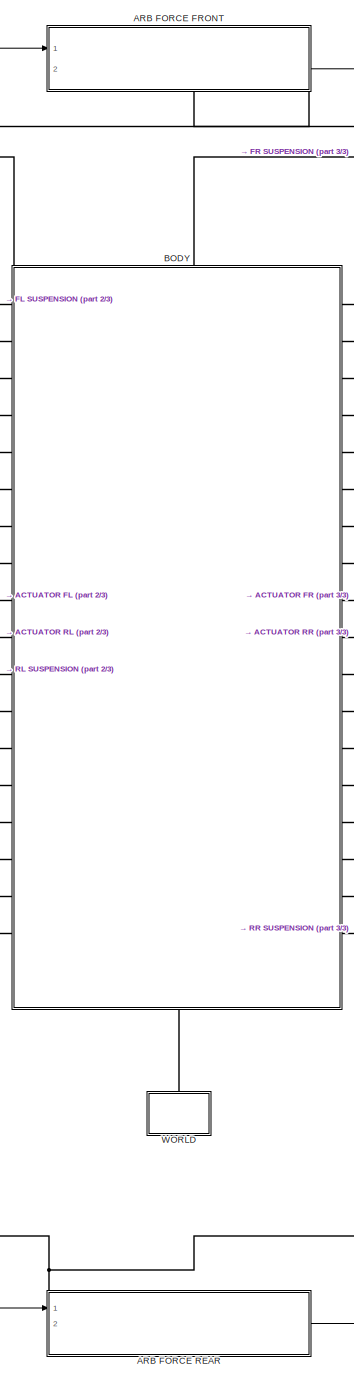
[diagram: root canvas - part 1/3, center side, full height]
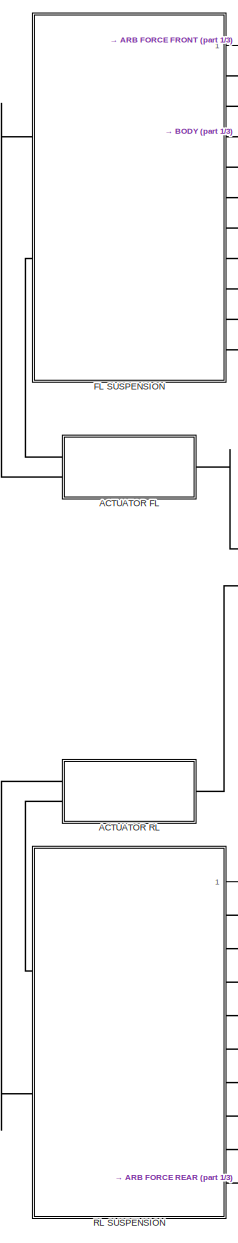
[diagram: root canvas - part 2/3, left side, full height]
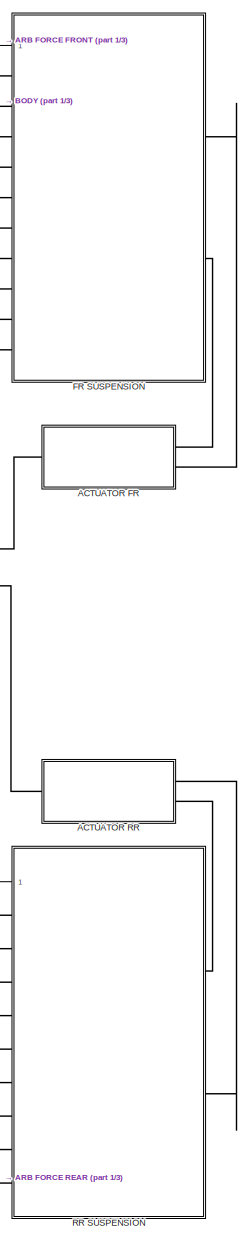
[diagram: root canvas - part 3/3, right side, full height]
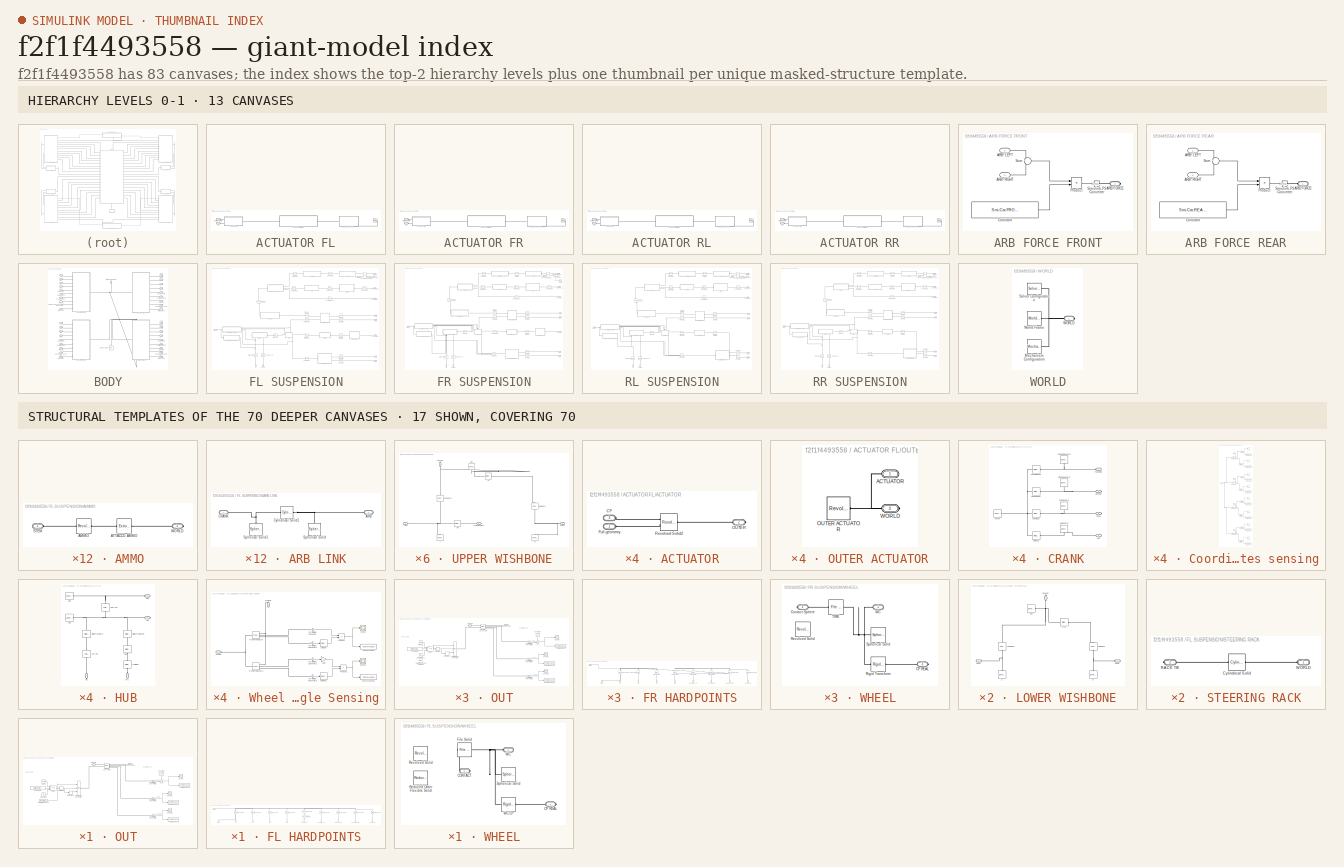
[diagram: thumbnail index - top-2 hierarchy levels (13 canvases) + 17 structural-template representatives of the remaining 70 canvases]
MODEL slx_f2f1f4493558
KIND model
CONFIG AbsTol = 1e-3
CONFIG EnableMultiTasking = on
CONFIG FixedStep = 0.001
CONFIG MaxStep = 0.001
CONFIG MinStep = auto
CONFIG RelTol = 1e-3
CONFIG SampleTimeConstraint = Unconstrained
CONFIG SolverName = VariableStepAuto
CONFIG StartTime = 0.0
CONFIG StopTime = 1
BLOCK [SubSystem] ACTUATOR FL
  NameLocation = top
  Ports = [0, 0, 0, 0, 0, 2, 1]
  RequestExecContextInheritance = off
BLOCK [SubSystem] ACTUATOR FL/ACTUATOR
  Ports = [0, 0, 0, 0, 0, 2, 1]
  RequestExecContextInheritance = off
BLOCK [SubSystem] ACTUATOR FL/ACTUATOR IN//OUT
  Ports = [0, 0, 0, 0, 0, 1, 1]
  RequestExecContextInheritance = off
BLOCK [PMIOPort] ACTUATOR FL/ACTUATOR IN//OUT/ACTUATOR
  NameLocation = top
  Side = Left
BLOCK [Constant] ACTUATOR FL/ACTUATOR IN//OUT/Constant
  NameLocation = left
  Value = 100
BLOCK [Constant] ACTUATOR FL/ACTUATOR IN//OUT/Constant1
  Commented = on
  Value = Smi.general.jounce_mode
BLOCK [Derivative] ACTUATOR FL/ACTUATOR IN//OUT/Derivative
BLOCK [Derivative] ACTUATOR FL/ACTUATOR IN//OUT/Derivative1
BLOCK [FromWorkspace] ACTUATOR FL/ACTUATOR IN//OUT/From Workspace
  SampleTime = 0.001
  VariableName = Smi.general.random_sine
BLOCK [PMIOPort] ACTUATOR FL/ACTUATOR IN//OUT/OUTER
  Port = 2
  Side = Right
BLOCK [Reference] ACTUATOR FL/ACTUATOR IN//OUT/PS-Simulink Converter1  REF=nesl_utility/PS-Simulink
Converter
  Ports = [0, 1, 0, 0, 0, 1]
  SourceBlock = nesl_utility/PS-Simulink\nConverter
  SourceProductBaseCode = SS
  SourceType = PS-Simulink\nConverter
BLOCK [Reference] ACTUATOR FL/ACTUATOR IN//OUT/PS-Simulink Converter2  REF=nesl_utility/PS-Simulink
Converter
  Ports = [0, 1, 0, 0, 0, 1]
  SourceBlock = nesl_utility/PS-Simulink\nConverter
  SourceProductBaseCode = SS
  SourceType = PS-Simulink\nConverter
BLOCK [Reference] ACTUATOR FL/ACTUATOR IN//OUT/PS-Simulink Converter3  REF=nesl_utility/PS-Simulink
Converter
  Ports = [0, 1, 0, 0, 0, 1]
  SourceBlock = nesl_utility/PS-Simulink\nConverter
  SourceProductBaseCode = SS
  SourceType = PS-Simulink\nConverter
BLOCK [Reference] ACTUATOR FL/ACTUATOR IN//OUT/Prismatic ACTUATOR  REF=sm_lib/Joints/Prismatic
Joint
  Ports = [0, 0, 0, 0, 0, 2, 4]
  SourceBlock = sm_lib/Joints/Prismatic\nJoint
  SourceProductBaseCode = MS
  SourceType = Prismatic\nJoint
BLOCK [Reference] ACTUATOR FL/ACTUATOR IN//OUT/Ramp  REF=simulink/Sources/Ramp
  Commented = on
  Ports = [0, 1]
  SourceBlock = simulink/Sources/Ramp
  SourceProductBaseCode = SL
  SourceType = Ramp
BLOCK [Scope] ACTUATOR FL/ACTUATOR IN//OUT/Scope
  Floating = off
  NumInputPorts = 1
  Ports = [1]
  ScopeSpecificationString = Simulink.scopes.TimeScopeBlockCfg('CurrentConfiguration', extmgr.ConfigurationSet(extmgr.Configuration('Core','General UI',true),extmgr.Configuration('Core','Source UI',true),extmgr.Configuration('Sources','WiredSimulink',true,'DataLoggingVariableName','ScopeData2'),extmgr.Configuration('Visuals','Time Domain',true,'SerializedDisplays',{struct('MinYLimReal','-25.00000','MaxYLimReal','25.00000','YL...<+1423ch>  <repeated x4 — deduplicated; at blocks: Scope>
BLOCK [Scope] ACTUATOR FL/ACTUATOR IN//OUT/Scope1
  Floating = off
  NumInputPorts = 1
  Ports = [1]
  ScopeSpecificationString = Simulink.scopes.TimeScopeBlockCfg('CurrentConfiguration', extmgr.ConfigurationSet(extmgr.Configuration('Core','General UI',true),extmgr.Configuration('Core','Source UI',true),extmgr.Configuration('Sources','WiredSimulink',true,'DataLoggingVariableName','ScopeData3'),extmgr.Configuration('Visuals','Time Domain',true),extmgr.Configuration('Tools','Plot Navigation',true),extmgr.Configuration('Tools',...<+40ch>  <repeated x4 — deduplicated; at blocks: Scope1>
BLOCK [Scope] ACTUATOR FL/ACTUATOR IN//OUT/Scope2
  Floating = off
  NumInputPorts = 1
  Ports = [1]
  ScopeSpecificationString = Simulink.scopes.TimeScopeBlockCfg('CurrentConfiguration', extmgr.ConfigurationSet(extmgr.Configuration('Core','General UI',true),extmgr.Configuration('Core','Source UI',true),extmgr.Configuration('Sources','WiredSimulink',true,'DataLoggingVariableName','ScopeData4'),extmgr.Configuration('Visuals','Time Domain',true),extmgr.Configuration('Tools','Plot Navigation',true),extmgr.Configuration('Tools',...<+40ch>  <repeated x4 — deduplicated; at blocks: Scope2>
BLOCK [Reference] ACTUATOR FL/ACTUATOR IN//OUT/Simulink-PS Converter  REF=nesl_utility/Simulink-PS
Converter
  Ports = [3, 0, 0, 0, 0, 0, 1]
  SourceBlock = nesl_utility/Simulink-PS\nConverter
  SourceProductBaseCode = SS
  SourceType = Simulink-PS\nConverter
BLOCK [Sin] ACTUATOR FL/ACTUATOR IN//OUT/Sine Wave
  Amplitude = 20
  Bias = -100
  Commented = on
  Frequency = 2*pi
  Phase = pi
  Ports = [0, 1]
  SampleTime = 0
BLOCK [Sum] ACTUATOR FL/ACTUATOR IN//OUT/Sum
  Inputs = ++|
  Ports = [2, 1]
BLOCK [Switch] ACTUATOR FL/ACTUATOR IN//OUT/Switch
  Commented = on
  Criteria = u2 ~= 0
  InputSameDT = off
  SaturateOnIntegerOverflow = off
BLOCK [ToWorkspace] ACTUATOR FL/ACTUATOR IN//OUT/To Workspace
  FixptAsFi = on
  MaxDataPoints = inf
  Ports = [1]
  SampleTime = -1
  SaveFormat = Timeseries
  VariableName = FL_jounce_pos
BLOCK [ToWorkspace] ACTUATOR FL/ACTUATOR IN//OUT/To Workspace1
  FixptAsFi = on
  MaxDataPoints = inf
  Ports = [1]
  SampleTime = -1
  SaveFormat = Timeseries
  VariableName = FL_jounce_vel
BLOCK [ToWorkspace] ACTUATOR FL/ACTUATOR IN//OUT/To Workspace2
  FixptAsFi = on
  MaxDataPoints = inf
  Ports = [1]
  SampleTime = -1
  SaveFormat = Timeseries
  VariableName = FL_jounce_acc
BLOCK [PMIOPort] ACTUATOR FL/ACTUATOR/CP
  NameLocation = top
  Port = 3
  Side = Left
BLOCK [PMIOPort] ACTUATOR FL/ACTUATOR/Full geometry
  Side = Left
BLOCK [PMIOPort] ACTUATOR FL/ACTUATOR/OUTER 
  Port = 2
  Side = Right
BLOCK [Reference] ACTUATOR FL/ACTUATOR/Revolved Solid2  REF=sm_lib/Body Elements/Revolved Solid
  Ports = [0, 0, 0, 0, 0, 2, 1]
  SourceBlock = sm_lib/Body Elements/Revolved Solid
  SourceProductBaseCode = MS
  SourceType = Revolved Solid
BLOCK [PMIOPort] ACTUATOR FL/CP
  Port = 3
  Side = Left
BLOCK [PMIOPort] ACTUATOR FL/Full geometry
  Side = Left
BLOCK [SubSystem] ACTUATOR FL/OUTER ACTUATOR
  PortSchema = {"entries":[{"content":{"sides":[{"content":{"connectorIds":[]},"type":"ConnectorPlacement.EquallySpacedRectSide","uuid":"d7e62bfe-6450-4a39-85d3-bed3049c321c"},{"content":{"connectorIds":[],"side":"RIGHT"},"type":"ConnectorPlacement.EquallySpacedRectSide","uuid":"3cbc563a-0112-4986-bd57-0cf817b4d4bf"},{"content":{"connectorIds":["LConn1"],"side":"TOP"},"type":"ConnectorPlacement.EquallySpacedRect...<+533ch>  <repeated x4 — deduplicated; at blocks: OUTER ACTUATOR>
  Ports = [0, 0, 0, 0, 0, 1, 1]
  RequestExecContextInheritance = off
BLOCK [PMIOPort] ACTUATOR FL/OUTER ACTUATOR/ACTUATOR
  Side = Left
BLOCK [Reference] ACTUATOR FL/OUTER ACTUATOR/OUTER ACTUATOR  REF=sm_lib/Body Elements/Revolved Solid
  Ports = [0, 0, 0, 0, 0, 0, 1]
  SourceBlock = sm_lib/Body Elements/Revolved Solid
  SourceProductBaseCode = MS
  SourceType = Revolved Solid
BLOCK [PMIOPort] ACTUATOR FL/OUTER ACTUATOR/WORLD
  Port = 2
  Side = Right
BLOCK [PMIOPort] ACTUATOR FL/WORLD
  Port = 2
  Side = Right
BLOCK [SubSystem] ACTUATOR FR
  Commented = on
  Ports = [0, 0, 0, 0, 0, 2, 1]
  RequestExecContextInheritance = off
BLOCK [SubSystem] ACTUATOR FR/ACTUATOR
  Ports = [0, 0, 0, 0, 0, 2, 1]
  RequestExecContextInheritance = off
BLOCK [SubSystem] ACTUATOR FR/ACTUATOR IN//OUT
  Ports = [0, 0, 0, 0, 0, 1, 1]
  RequestExecContextInheritance = off
BLOCK [PMIOPort] ACTUATOR FR/ACTUATOR IN//OUT/ACTUATOR
  NameLocation = top
  Side = Left
BLOCK [Constant] ACTUATOR FR/ACTUATOR IN//OUT/Constant
  NameLocation = left
  Value = 100
BLOCK [Constant] ACTUATOR FR/ACTUATOR IN//OUT/Constant1
  Value = Smi.general.jounce_mode
BLOCK [Derivative] ACTUATOR FR/ACTUATOR IN//OUT/Derivative
BLOCK [Derivative] ACTUATOR FR/ACTUATOR IN//OUT/Derivative1
BLOCK [PMIOPort] ACTUATOR FR/ACTUATOR IN//OUT/OUTER
  Port = 2
  Side = Right
BLOCK [Reference] ACTUATOR FR/ACTUATOR IN//OUT/PS-Simulink Converter1  REF=nesl_utility/PS-Simulink
Converter
  Ports = [0, 1, 0, 0, 0, 1]
  SourceBlock = nesl_utility/PS-Simulink\nConverter
  SourceProductBaseCode = SS
  SourceType = PS-Simulink\nConverter
BLOCK [Reference] ACTUATOR FR/ACTUATOR IN//OUT/PS-Simulink Converter2  REF=nesl_utility/PS-Simulink
Converter
  Ports = [0, 1, 0, 0, 0, 1]
  SourceBlock = nesl_utility/PS-Simulink\nConverter
  SourceProductBaseCode = SS
  SourceType = PS-Simulink\nConverter
BLOCK [Reference] ACTUATOR FR/ACTUATOR IN//OUT/PS-Simulink Converter3  REF=nesl_utility/PS-Simulink
Converter
  Ports = [0, 1, 0, 0, 0, 1]
  SourceBlock = nesl_utility/PS-Simulink\nConverter
  SourceProductBaseCode = SS
  SourceType = PS-Simulink\nConverter
BLOCK [Reference] ACTUATOR FR/ACTUATOR IN//OUT/Prismatic ACTUATOR  REF=sm_lib/Joints/Prismatic
Joint
  Ports = [0, 0, 0, 0, 0, 2, 4]
  SourceBlock = sm_lib/Joints/Prismatic\nJoint
  SourceProductBaseCode = MS
  SourceType = Prismatic\nJoint
BLOCK [Reference] ACTUATOR FR/ACTUATOR IN//OUT/Ramp1  REF=simulink/Sources/Ramp
  Ports = [0, 1]
  SourceBlock = simulink/Sources/Ramp
  SourceProductBaseCode = SL
  SourceType = Ramp
BLOCK [Scope] ACTUATOR FR/ACTUATOR IN//OUT/Scope
  Floating = off
  NumInputPorts = 1
  Ports = [1]
BLOCK [Scope] ACTUATOR FR/ACTUATOR IN//OUT/Scope1
  Floating = off
  NumInputPorts = 1
  Ports = [1]
BLOCK [Scope] ACTUATOR FR/ACTUATOR IN//OUT/Scope2
  Floating = off
  NumInputPorts = 1
  Ports = [1]
BLOCK [Reference] ACTUATOR FR/ACTUATOR IN//OUT/Simulink-PS Converter  REF=nesl_utility/Simulink-PS
Converter
  Ports = [3, 0, 0, 0, 0, 0, 1]
  SourceBlock = nesl_utility/Simulink-PS\nConverter
  SourceProductBaseCode = SS
  SourceType = Simulink-PS\nConverter
BLOCK [Sin] ACTUATOR FR/ACTUATOR IN//OUT/Sine Wave1
  Amplitude = 20
  Bias = -100
  Frequency = 2*pi
  Ports = [0, 1]
  SampleTime = 0
BLOCK [Sum] ACTUATOR FR/ACTUATOR IN//OUT/Sum
  Inputs = ++|
  Ports = [2, 1]
BLOCK [Switch] ACTUATOR FR/ACTUATOR IN//OUT/Switch
  Criteria = u2 ~= 0
  InputSameDT = off
  SaturateOnIntegerOverflow = off
BLOCK [ToWorkspace] ACTUATOR FR/ACTUATOR IN//OUT/To Workspace
  FixptAsFi = on
  MaxDataPoints = inf
  Ports = [1]
  SampleTime = -1
  SaveFormat = Timeseries
  VariableName = FR_jounce_pos
BLOCK [ToWorkspace] ACTUATOR FR/ACTUATOR IN//OUT/To Workspace1
  FixptAsFi = on
  MaxDataPoints = inf
  Ports = [1]
  SampleTime = -1
  SaveFormat = Timeseries
  VariableName = FR_jounce_vel
BLOCK [ToWorkspace] ACTUATOR FR/ACTUATOR IN//OUT/To Workspace2
  FixptAsFi = on
  MaxDataPoints = inf
  Ports = [1]
  SampleTime = -1
  SaveFormat = Timeseries
  VariableName = FR_jounce_acc
BLOCK [UniformRandomNumber] ACTUATOR FR/ACTUATOR IN//OUT/Uniform Random Number2
  Commented = on
  Maximum = -80
  Minimum = -120
  SampleTime = 0.1
BLOCK [PMIOPort] ACTUATOR FR/ACTUATOR/CP
  NameLocation = top
  Port = 3
  Side = Left
BLOCK [PMIOPort] ACTUATOR FR/ACTUATOR/Full geometry
  Side = Left
BLOCK [PMIOPort] ACTUATOR FR/ACTUATOR/OUTER 
  Port = 2
  Side = Right
BLOCK [Reference] ACTUATOR FR/ACTUATOR/Revolved Solid2  REF=sm_lib/Body Elements/Revolved Solid
  Ports = [0, 0, 0, 0, 0, 2, 1]
  SourceBlock = sm_lib/Body Elements/Revolved Solid
  SourceProductBaseCode = MS
  SourceType = Revolved Solid
BLOCK [PMIOPort] ACTUATOR FR/CP
  Port = 3
  Side = Left
BLOCK [PMIOPort] ACTUATOR FR/Full geometry
  Side = Left
BLOCK [SubSystem] ACTUATOR FR/OUTER ACTUATOR
  Ports = [0, 0, 0, 0, 0, 1, 1]
  RequestExecContextInheritance = off
BLOCK [PMIOPort] ACTUATOR FR/OUTER ACTUATOR/ACTUATOR
  Side = Left
BLOCK [Reference] ACTUATOR FR/OUTER ACTUATOR/OUTER ACTUATOR  REF=sm_lib/Body Elements/Revolved Solid
  Ports = [0, 0, 0, 0, 0, 0, 1]
  SourceBlock = sm_lib/Body Elements/Revolved Solid
  SourceProductBaseCode = MS
  SourceType = Revolved Solid
BLOCK [PMIOPort] ACTUATOR FR/OUTER ACTUATOR/WORLD
  Port = 2
  Side = Right
BLOCK [PMIOPort] ACTUATOR FR/WORLD
  Port = 2
  Side = Right
BLOCK [SubSystem] ACTUATOR RL
  Commented = on
  NameLocation = top
  Ports = [0, 0, 0, 0, 0, 2, 1]
  RequestExecContextInheritance = off
BLOCK [SubSystem] ACTUATOR RL/ACTUATOR
  Ports = [0, 0, 0, 0, 0, 2, 1]
  RequestExecContextInheritance = off
BLOCK [SubSystem] ACTUATOR RL/ACTUATOR IN//OUT
  Ports = [0, 0, 0, 0, 0, 1, 1]
  RequestExecContextInheritance = off
BLOCK [PMIOPort] ACTUATOR RL/ACTUATOR IN//OUT/ACTUATOR
  NameLocation = top
  Side = Left
BLOCK [Constant] ACTUATOR RL/ACTUATOR IN//OUT/Constant
  NameLocation = left
  Value = 100
BLOCK [Constant] ACTUATOR RL/ACTUATOR IN//OUT/Constant1
  Value = Smi.general.jounce_mode
BLOCK [Derivative] ACTUATOR RL/ACTUATOR IN//OUT/Derivative
BLOCK [Derivative] ACTUATOR RL/ACTUATOR IN//OUT/Derivative1
BLOCK [PMIOPort] ACTUATOR RL/ACTUATOR IN//OUT/OUTER
  Port = 2
  Side = Right
BLOCK [Reference] ACTUATOR RL/ACTUATOR IN//OUT/PS-Simulink Converter1  REF=nesl_utility/PS-Simulink
Converter
  Ports = [0, 1, 0, 0, 0, 1]
  SourceBlock = nesl_utility/PS-Simulink\nConverter
  SourceProductBaseCode = SS
  SourceType = PS-Simulink\nConverter
BLOCK [Reference] ACTUATOR RL/ACTUATOR IN//OUT/PS-Simulink Converter2  REF=nesl_utility/PS-Simulink
Converter
  Ports = [0, 1, 0, 0, 0, 1]
  SourceBlock = nesl_utility/PS-Simulink\nConverter
  SourceProductBaseCode = SS
  SourceType = PS-Simulink\nConverter
BLOCK [Reference] ACTUATOR RL/ACTUATOR IN//OUT/PS-Simulink Converter3  REF=nesl_utility/PS-Simulink
Converter
  Ports = [0, 1, 0, 0, 0, 1]
  SourceBlock = nesl_utility/PS-Simulink\nConverter
  SourceProductBaseCode = SS
  SourceType = PS-Simulink\nConverter
BLOCK [Reference] ACTUATOR RL/ACTUATOR IN//OUT/Prismatic ACTUATOR  REF=sm_lib/Joints/Prismatic
Joint
  Ports = [0, 0, 0, 0, 0, 2, 4]
  SourceBlock = sm_lib/Joints/Prismatic\nJoint
  SourceProductBaseCode = MS
  SourceType = Prismatic\nJoint
BLOCK [Reference] ACTUATOR RL/ACTUATOR IN//OUT/Ramp  REF=simulink/Sources/Ramp
  Ports = [0, 1]
  SourceBlock = simulink/Sources/Ramp
  SourceProductBaseCode = SL
  SourceType = Ramp
BLOCK [Scope] ACTUATOR RL/ACTUATOR IN//OUT/Scope
  Floating = off
  NumInputPorts = 1
  Ports = [1]
BLOCK [Scope] ACTUATOR RL/ACTUATOR IN//OUT/Scope1
  Floating = off
  NumInputPorts = 1
  Ports = [1]
BLOCK [Scope] ACTUATOR RL/ACTUATOR IN//OUT/Scope2
  Floating = off
  NumInputPorts = 1
  Ports = [1]
BLOCK [Reference] ACTUATOR RL/ACTUATOR IN//OUT/Simulink-PS Converter  REF=nesl_utility/Simulink-PS
Converter
  Ports = [3, 0, 0, 0, 0, 0, 1]
  SourceBlock = nesl_utility/Simulink-PS\nConverter
  SourceProductBaseCode = SS
  SourceType = Simulink-PS\nConverter
BLOCK [Sin] ACTUATOR RL/ACTUATOR IN//OUT/Sine Wave
  Amplitude = 20
  Bias = -100
  Frequency = 2*pi
  Phase = pi
  Ports = [0, 1]
  SampleTime = 0
BLOCK [Sum] ACTUATOR RL/ACTUATOR IN//OUT/Sum
  Inputs = ++|
  Ports = [2, 1]
BLOCK [Switch] ACTUATOR RL/ACTUATOR IN//OUT/Switch
  Criteria = u2 ~= 0
  InputSameDT = off
  SaturateOnIntegerOverflow = off
BLOCK [ToWorkspace] ACTUATOR RL/ACTUATOR IN//OUT/To Workspace
  FixptAsFi = on
  MaxDataPoints = inf
  Ports = [1]
  SampleTime = -1
  SaveFormat = Timeseries
  VariableName = RL_jounce_pos
BLOCK [ToWorkspace] ACTUATOR RL/ACTUATOR IN//OUT/To Workspace1
  FixptAsFi = on
  MaxDataPoints = inf
  Ports = [1]
  SampleTime = -1
  SaveFormat = Timeseries
  VariableName = RL_jounce_vel
BLOCK [ToWorkspace] ACTUATOR RL/ACTUATOR IN//OUT/To Workspace2
  FixptAsFi = on
  MaxDataPoints = inf
  Ports = [1]
  SampleTime = -1
  SaveFormat = Timeseries
  VariableName = RL_jounce_acc
BLOCK [UniformRandomNumber] ACTUATOR RL/ACTUATOR IN//OUT/Uniform Random Number1
  Commented = on
  Maximum = -80
  Minimum = -120
  SampleTime = 0.1
BLOCK [PMIOPort] ACTUATOR RL/ACTUATOR/CP
  NameLocation = top
  Port = 3
  Side = Left
BLOCK [PMIOPort] ACTUATOR RL/ACTUATOR/Full geometry
  Side = Left
BLOCK [PMIOPort] ACTUATOR RL/ACTUATOR/OUTER 
  Port = 2
  Side = Right
BLOCK [Reference] ACTUATOR RL/ACTUATOR/Revolved Solid2  REF=sm_lib/Body Elements/Revolved Solid
  Ports = [0, 0, 0, 0, 0, 2, 1]
  SourceBlock = sm_lib/Body Elements/Revolved Solid
  SourceProductBaseCode = MS
  SourceType = Revolved Solid
BLOCK [PMIOPort] ACTUATOR RL/CP
  Side = Left
BLOCK [PMIOPort] ACTUATOR RL/Full geometry
  Port = 2
  Side = Left
BLOCK [SubSystem] ACTUATOR RL/OUTER ACTUATOR
  Ports = [0, 0, 0, 0, 0, 1, 1]
  RequestExecContextInheritance = off
BLOCK [PMIOPort] ACTUATOR RL/OUTER ACTUATOR/ACTUATOR
  Side = Left
BLOCK [Reference] ACTUATOR RL/OUTER ACTUATOR/OUTER ACTUATOR  REF=sm_lib/Body Elements/Revolved Solid
  Ports = [0, 0, 0, 0, 0, 0, 1]
  SourceBlock = sm_lib/Body Elements/Revolved Solid
  SourceProductBaseCode = MS
  SourceType = Revolved Solid
BLOCK [PMIOPort] ACTUATOR RL/OUTER ACTUATOR/WORLD
  Port = 2
  Side = Right
BLOCK [PMIOPort] ACTUATOR RL/WORLD
  Port = 3
  Side = Right
BLOCK [SubSystem] ACTUATOR RR
  Commented = on
  NameLocation = top
  Ports = [0, 0, 0, 0, 0, 2, 1]
  RequestExecContextInheritance = off
BLOCK [SubSystem] ACTUATOR RR/ACTUATOR
  Ports = [0, 0, 0, 0, 0, 2, 1]
  RequestExecContextInheritance = off
BLOCK [SubSystem] ACTUATOR RR/ACTUATOR IN//OUT
  Ports = [0, 0, 0, 0, 0, 1, 1]
  RequestExecContextInheritance = off
BLOCK [PMIOPort] ACTUATOR RR/ACTUATOR IN//OUT/ACTUATOR
  NameLocation = top
  Side = Left
BLOCK [Constant] ACTUATOR RR/ACTUATOR IN//OUT/Constant
  NameLocation = left
  Value = 100
BLOCK [Constant] ACTUATOR RR/ACTUATOR IN//OUT/Constant1
  Value = Smi.general.jounce_mode
BLOCK [Derivative] ACTUATOR RR/ACTUATOR IN//OUT/Derivative
BLOCK [Derivative] ACTUATOR RR/ACTUATOR IN//OUT/Derivative1
BLOCK [PMIOPort] ACTUATOR RR/ACTUATOR IN//OUT/OUTER
  Port = 2
  Side = Right
BLOCK [Reference] ACTUATOR RR/ACTUATOR IN//OUT/PS-Simulink Converter1  REF=nesl_utility/PS-Simulink
Converter
  Ports = [0, 1, 0, 0, 0, 1]
  SourceBlock = nesl_utility/PS-Simulink\nConverter
  SourceProductBaseCode = SS
  SourceType = PS-Simulink\nConverter
BLOCK [Reference] ACTUATOR RR/ACTUATOR IN//OUT/PS-Simulink Converter2  REF=nesl_utility/PS-Simulink
Converter
  Ports = [0, 1, 0, 0, 0, 1]
  SourceBlock = nesl_utility/PS-Simulink\nConverter
  SourceProductBaseCode = SS
  SourceType = PS-Simulink\nConverter
BLOCK [Reference] ACTUATOR RR/ACTUATOR IN//OUT/PS-Simulink Converter3  REF=nesl_utility/PS-Simulink
Converter
  Ports = [0, 1, 0, 0, 0, 1]
  SourceBlock = nesl_utility/PS-Simulink\nConverter
  SourceProductBaseCode = SS
  SourceType = PS-Simulink\nConverter
BLOCK [Reference] ACTUATOR RR/ACTUATOR IN//OUT/Prismatic ACTUATOR  REF=sm_lib/Joints/Prismatic
Joint
  Ports = [0, 0, 0, 0, 0, 2, 4]
  SourceBlock = sm_lib/Joints/Prismatic\nJoint
  SourceProductBaseCode = MS
  SourceType = Prismatic\nJoint
BLOCK [Reference] ACTUATOR RR/ACTUATOR IN//OUT/Ramp  REF=simulink/Sources/Ramp
  Ports = [0, 1]
  SourceBlock = simulink/Sources/Ramp
  SourceProductBaseCode = SL
  SourceType = Ramp
BLOCK [Scope] ACTUATOR RR/ACTUATOR IN//OUT/Scope
  Floating = off
  NumInputPorts = 1
  Ports = [1]
BLOCK [Scope] ACTUATOR RR/ACTUATOR IN//OUT/Scope1
  Floating = off
  NumInputPorts = 1
  Ports = [1]
BLOCK [Scope] ACTUATOR RR/ACTUATOR IN//OUT/Scope2
  Floating = off
  NumInputPorts = 1
  Ports = [1]
BLOCK [Reference] ACTUATOR RR/ACTUATOR IN//OUT/Simulink-PS Converter  REF=nesl_utility/Simulink-PS
Converter
  Ports = [3, 0, 0, 0, 0, 0, 1]
  SourceBlock = nesl_utility/Simulink-PS\nConverter
  SourceProductBaseCode = SS
  SourceType = Simulink-PS\nConverter
BLOCK [Sin] ACTUATOR RR/ACTUATOR IN//OUT/Sine Wave
  Amplitude = 20
  Bias = -100
  Frequency = 2*pi
  Ports = [0, 1]
  SampleTime = 0
BLOCK [Sum] ACTUATOR RR/ACTUATOR IN//OUT/Sum
  Inputs = ++|
  Ports = [2, 1]
BLOCK [Switch] ACTUATOR RR/ACTUATOR IN//OUT/Switch
  Criteria = u2 ~= 0
  InputSameDT = off
  SaturateOnIntegerOverflow = off
BLOCK [ToWorkspace] ACTUATOR RR/ACTUATOR IN//OUT/To Workspace
  FixptAsFi = on
  MaxDataPoints = inf
  Ports = [1]
  SampleTime = -1
  SaveFormat = Timeseries
  VariableName = RR_jounce_pos
BLOCK [ToWorkspace] ACTUATOR RR/ACTUATOR IN//OUT/To Workspace1
  FixptAsFi = on
  MaxDataPoints = inf
  Ports = [1]
  SampleTime = -1
  SaveFormat = Timeseries
  VariableName = RR_jounce_vel
BLOCK [ToWorkspace] ACTUATOR RR/ACTUATOR IN//OUT/To Workspace2
  FixptAsFi = on
  MaxDataPoints = inf
  Ports = [1]
  SampleTime = -1
  SaveFormat = Timeseries
  VariableName = RR_jounce_acc
BLOCK [UniformRandomNumber] ACTUATOR RR/ACTUATOR IN//OUT/Uniform Random Number1
  Commented = on
  Maximum = -80
  Minimum = -120
  SampleTime = 0.1
BLOCK [PMIOPort] ACTUATOR RR/ACTUATOR/CP
  NameLocation = top
  Port = 3
  Side = Left
BLOCK [PMIOPort] ACTUATOR RR/ACTUATOR/Full geometry
  Side = Left
BLOCK [PMIOPort] ACTUATOR RR/ACTUATOR/OUTER 
  Port = 2
  Side = Right
BLOCK [Reference] ACTUATOR RR/ACTUATOR/Revolved Solid2  REF=sm_lib/Body Elements/Revolved Solid
  Ports = [0, 0, 0, 0, 0, 2, 1]
  SourceBlock = sm_lib/Body Elements/Revolved Solid
  SourceProductBaseCode = MS
  SourceType = Revolved Solid
BLOCK [PMIOPort] ACTUATOR RR/CP
  Side = Left
BLOCK [PMIOPort] ACTUATOR RR/Full geometry
  Port = 2
  Side = Left
BLOCK [SubSystem] ACTUATOR RR/OUTER ACTUATOR
  Ports = [0, 0, 0, 0, 0, 1, 1]
  RequestExecContextInheritance = off
BLOCK [PMIOPort] ACTUATOR RR/OUTER ACTUATOR/ACTUATOR
  Side = Left
BLOCK [Reference] ACTUATOR RR/OUTER ACTUATOR/OUTER ACTUATOR  REF=sm_lib/Body Elements/Revolved Solid
  Ports = [0, 0, 0, 0, 0, 0, 1]
  SourceBlock = sm_lib/Body Elements/Revolved Solid
  SourceProductBaseCode = MS
  SourceType = Revolved Solid
BLOCK [PMIOPort] ACTUATOR RR/OUTER ACTUATOR/WORLD
  Port = 2
  Side = Right
BLOCK [PMIOPort] ACTUATOR RR/WORLD
  Port = 3
  Side = Right
BLOCK [SubSystem] ARB FORCE FRONT
  NameLocation = top
  PortSchema = {"entries":[{"content":{"sides":[{"content":{"connectorIds":["In1"]},"type":"ConnectorPlacement.EquallySpacedRectSide","uuid":"f25b79aa-b224-4593-8684-6f41613af52b"},{"content":{"connectorIds":["In2"],"side":"RIGHT"},"type":"ConnectorPlacement.EquallySpacedRectSide","uuid":"26f4e7e1-091e-45ed-9f78-3987c8995f75"},{"content":{"connectorIds":[],"side":"TOP"},"type":"ConnectorPlacement.EquallySpacedRe...<+535ch>
  Ports = [2, 0, 0, 0, 0, 0, 1]
  RequestExecContextInheritance = off
BLOCK [PMIOPort] ARB FORCE FRONT/ARB FORCE
  Side = Right
BLOCK [Inport] ARB FORCE FRONT/ARB° LEFT
BLOCK [Inport] ARB FORCE FRONT/ARB° RIGHT
  Port = 2
BLOCK [Constant] ARB FORCE FRONT/Constant
  Value = Smi.Car.FRONT.elastic.ARB_stiffness
BLOCK [Product] ARB FORCE FRONT/Product
  Ports = [2, 1]
BLOCK [Reference] ARB FORCE FRONT/Simulink-PS Converter  REF=nesl_utility/Simulink-PS
Converter
  Ports = [1, 0, 0, 0, 0, 0, 1]
  SourceBlock = nesl_utility/Simulink-PS\nConverter
  SourceProductBaseCode = SS
  SourceType = Simulink-PS\nConverter
BLOCK [Sum] ARB FORCE FRONT/Sum
  Inputs = +-
  Ports = [2, 1]
BLOCK [SubSystem] ARB FORCE REAR
  PortSchema = {"entries":[{"content":{"sides":[{"content":{"connectorIds":["In1"]},"type":"ConnectorPlacement.EquallySpacedRectSide","uuid":"f25b79aa-b224-4593-8684-6f41613af52b"},{"content":{"connectorIds":["In2"],"side":"RIGHT"},"type":"ConnectorPlacement.EquallySpacedRectSide","uuid":"26f4e7e1-091e-45ed-9f78-3987c8995f75"},{"content":{"connectorIds":["LConn1"],"side":"TOP"},"type":"ConnectorPlacement.Equally...<+535ch>
  Ports = [2, 0, 0, 0, 0, 1]
  RequestExecContextInheritance = off
BLOCK [PMIOPort] ARB FORCE REAR/ARB FORCE
  Side = Left
BLOCK [Inport] ARB FORCE REAR/ARB° LEFT
BLOCK [Inport] ARB FORCE REAR/ARB° RIGHT
  Port = 2
BLOCK [Constant] ARB FORCE REAR/Constant
  Value = Smi.Car.REAR.elastic.ARB_stiffness
BLOCK [Product] ARB FORCE REAR/Product
  Ports = [2, 1]
BLOCK [Reference] ARB FORCE REAR/Simulink-PS Converter  REF=nesl_utility/Simulink-PS
Converter
  Ports = [1, 0, 0, 0, 0, 0, 1]
  SourceBlock = nesl_utility/Simulink-PS\nConverter
  SourceProductBaseCode = SS
  SourceType = Simulink-PS\nConverter
BLOCK [Sum] ARB FORCE REAR/Sum
  Inputs = +-
  Ports = [2, 1]
BLOCK [SubSystem] BODY
  NameLocation = top
  PortSchema = {"entries":[{"content":{"sides":[{"content":{"connectorIds":["LConn1","LConn2","LConn3","LConn4","LConn5","LConn6","LConn7","LConn8","LConn9","LConn10","LConn11","LConn12","LConn13","LConn14","LConn15","LConn16","LConn17","LConn18"]},"type":"ConnectorPlacement.EquallySpacedRectSide","uuid":"4c2bbaf1-fbd8-4943-99e0-470de1938501"},{"content":{"connectorIds":["RConn1","RConn2","RConn3","RConn4","RCon...<+875ch>
  Ports = [0, 0, 0, 0, 0, 19, 19]
  RequestExecContextInheritance = off
BLOCK [PMIOPort] BODY/A FL
  Side = Left
BLOCK [PMIOPort] BODY/A FR
  Port = 20
  Side = Right
BLOCK [PMIOPort] BODY/A RL
  Port = 11
  Side = Left
BLOCK [PMIOPort] BODY/A RR
  Port = 30
  Side = Right
BLOCK [PMIOPort] BODY/ARB C FL
  Port = 7
  Side = Left
BLOCK [PMIOPort] BODY/ARB C FR
  Port = 26
  Side = Right
BLOCK [PMIOPort] BODY/ARB C RL
  Port = 17
  Side = Left
BLOCK [PMIOPort] BODY/ARB C RR
  Port = 36
  Side = Right
BLOCK [PMIOPort] BODY/B FL
  Port = 2
  Side = Left
BLOCK [PMIOPort] BODY/B FR
  Port = 21
  Side = Right
BLOCK [PMIOPort] BODY/B RL
  Port = 12
  Side = Left
BLOCK [PMIOPort] BODY/B RR
  Port = 31
  Side = Right
BLOCK [PMIOPort] BODY/C FL
  Port = 3
  Side = Left
BLOCK [PMIOPort] BODY/C FR
  Port = 22
  Side = Right
BLOCK [PMIOPort] BODY/C RL
  Port = 13
  Side = Left
BLOCK [PMIOPort] BODY/C RR
  Port = 32
  Side = Right
BLOCK [PMIOPort] BODY/CRANK C FL
  Port = 5
  Side = Left
BLOCK [PMIOPort] BODY/CRANK C FR
  Port = 24
  Side = Right
BLOCK [PMIOPort] BODY/CRANK C RL
  Port = 15
  Side = Left
BLOCK [PMIOPort] BODY/CRANK C RR
  Port = 34
  Side = Right
BLOCK [PMIOPort] BODY/D FL
  Port = 4
  Side = Left
BLOCK [PMIOPort] BODY/D FR
  Port = 23
  Side = Right
BLOCK [PMIOPort] BODY/D RL
  Port = 14
  Side = Left
BLOCK [PMIOPort] BODY/D RR
  Port = 33
  Side = Right
BLOCK [PMIOPort] BODY/DAMPER C FL
  Port = 6
  Side = Left
BLOCK [PMIOPort] BODY/DAMPER C FR
  Port = 25
  Side = Right
BLOCK [PMIOPort] BODY/DAMPER C RL
  Port = 16
  Side = Left
BLOCK [PMIOPort] BODY/DAMPER C RR
  Port = 35
  Side = Right
BLOCK [SubSystem] BODY/FL HARDPOINTS
  Ports = [0, 0, 0, 0, 0, 10, 1]
  RequestExecContextInheritance = off
BLOCK [PMIOPort] BODY/FL HARDPOINTS/A FIX
  Side = Left
BLOCK [PMIOPort] BODY/FL HARDPOINTS/ARB CENTER
  Port = 9
  Side = Left
BLOCK [PMIOPort] BODY/FL HARDPOINTS/B FIX
  Port = 2
  Side = Left
BLOCK [PMIOPort] BODY/FL HARDPOINTS/C FIX
  Port = 3
  Side = Left
BLOCK [PMIOPort] BODY/FL HARDPOINTS/CRANK CENTER
  Port = 7
  Side = Left
BLOCK [PMIOPort] BODY/FL HARDPOINTS/D FIX
  Port = 4
  Side = Left
BLOCK [PMIOPort] BODY/FL HARDPOINTS/DAMPER CENTER
  Port = 8
  Side = Left
BLOCK [Reference] BODY/FL HARDPOINTS/IMPOSED STEERING  REF=sm_lib/Frames and
Transforms/Rigid
Transform
  NameLocation = left
  Ports = [0, 0, 0, 0, 0, 1, 1]
  SourceBlock = sm_lib/Frames and\nTransforms/Rigid\nTransform
  SourceProductBaseCode = MS
  SourceType = Rigid\nTransform
BLOCK [PMIOPort] BODY/FL HARDPOINTS/OUTER ACTUATOR
  NameLocation = right
  Port = 10
  Side = Left
BLOCK [PMIOPort] BODY/FL HARDPOINTS/RACK CENTER FIX
  Port = 6
  Side = Left
BLOCK [Reference] BODY/FL HARDPOINTS/Rigid Transform1  REF=sm_lib/Frames and
Transforms/Rigid
Transform
  NameLocation = left
  Ports = [0, 0, 0, 0, 0, 1, 1]
  SourceBlock = sm_lib/Frames and\nTransforms/Rigid\nTransform
  SourceProductBaseCode = MS
  SourceType = Rigid\nTransform
BLOCK [Reference] BODY/FL HARDPOINTS/Rigid Transform2  REF=sm_lib/Frames and
Transforms/Rigid
Transform
  NameLocation = left
  Ports = [0, 0, 0, 0, 0, 1, 1]
  SourceBlock = sm_lib/Frames and\nTransforms/Rigid\nTransform
  SourceProductName = Multibody
  SourceType = Rigid\nTransform
BLOCK [Reference] BODY/FL HARDPOINTS/Rigid Transform3  REF=sm_lib/Frames and
Transforms/Rigid
Transform
  NameLocation = left
  Ports = [0, 0, 0, 0, 0, 1, 1]
  SourceBlock = sm_lib/Frames and\nTransforms/Rigid\nTransform
  SourceProductName = Multibody
  SourceType = Rigid\nTransform
BLOCK [Reference] BODY/FL HARDPOINTS/Rigid Transform4  REF=sm_lib/Frames and
Transforms/Rigid
Transform
  NameLocation = left
  Ports = [0, 0, 0, 0, 0, 1, 1]
  SourceBlock = sm_lib/Frames and\nTransforms/Rigid\nTransform
  SourceProductName = Multibody
  SourceType = Rigid\nTransform
BLOCK [Reference] BODY/FL HARDPOINTS/Rigid Transform5  REF=sm_lib/Frames and
Transforms/Rigid
Transform
  NameLocation = left
  Ports = [0, 0, 0, 0, 0, 1, 1]
  SourceBlock = sm_lib/Frames and\nTransforms/Rigid\nTransform
  SourceProductName = Multibody
  SourceType = Rigid\nTransform
BLOCK [Reference] BODY/FL HARDPOINTS/Rigid Transform6  REF=sm_lib/Frames and
Transforms/Rigid
Transform
  NameLocation = left
  Ports = [0, 0, 0, 0, 0, 1, 1]
  SourceBlock = sm_lib/Frames and\nTransforms/Rigid\nTransform
  SourceProductName = Multibody
  SourceType = Rigid\nTransform
BLOCK [Reference] BODY/FL HARDPOINTS/Rigid Transform7  REF=sm_lib/Frames and
Transforms/Rigid
Transform
  NameLocation = left
  Ports = [0, 0, 0, 0, 0, 1, 1]
  SourceBlock = sm_lib/Frames and\nTransforms/Rigid\nTransform
  SourceProductName = Multibody
  SourceType = Rigid\nTransform
BLOCK [Reference] BODY/FL HARDPOINTS/Rigid Transform8  REF=sm_lib/Frames and
Transforms/Rigid
Transform
  NameLocation = left
  Ports = [0, 0, 0, 0, 0, 1, 1]
  SourceBlock = sm_lib/Frames and\nTransforms/Rigid\nTransform
  SourceProductName = Multibody
  SourceType = Rigid\nTransform
BLOCK [Reference] BODY/FL HARDPOINTS/Rigid Transform9  REF=sm_lib/Frames and
Transforms/Rigid
Transform
  NameLocation = left
  Ports = [0, 0, 0, 0, 0, 1, 1]
  SourceBlock = sm_lib/Frames and\nTransforms/Rigid\nTransform
  SourceProductName = Multibody
  SourceType = Rigid\nTransform
BLOCK [PMIOPort] BODY/FL HARDPOINTS/WORLD
  Port = 5
  Side = Right
BLOCK [PMIOPort] BODY/FL HARDPOINTS/WORLD 
  Port = 11
  Side = Left
BLOCK [SubSystem] BODY/FR HARDPOINTS
  Commented = on
  Ports = [0, 0, 0, 0, 0, 9, 1]
  RequestExecContextInheritance = off
BLOCK [PMIOPort] BODY/FR HARDPOINTS/A FIX
  Side = Left
BLOCK [PMIOPort] BODY/FR HARDPOINTS/ARB CENTER
  Port = 8
  Side = Left
BLOCK [PMIOPort] BODY/FR HARDPOINTS/B FIX
  Port = 2
  Side = Left
BLOCK [PMIOPort] BODY/FR HARDPOINTS/C FIX
  Port = 3
  Side = Left
BLOCK [PMIOPort] BODY/FR HARDPOINTS/CRANK CENTER
  Port = 6
  Side = Left
BLOCK [PMIOPort] BODY/FR HARDPOINTS/D FIX
  Port = 4
  Side = Left
BLOCK [PMIOPort] BODY/FR HARDPOINTS/DAMPER CENTER
  Port = 7
  Side = Left
BLOCK [PMIOPort] BODY/FR HARDPOINTS/OUTER ACTUATOR
  NameLocation = right
  Port = 9
  Side = Left
BLOCK [Reference] BODY/FR HARDPOINTS/Rigid Transform1  REF=sm_lib/Frames and
Transforms/Rigid
Transform
  NameLocation = left
  Ports = [0, 0, 0, 0, 0, 1, 1]
  SourceBlock = sm_lib/Frames and\nTransforms/Rigid\nTransform
  SourceProductBaseCode = MS
  SourceType = Rigid\nTransform
BLOCK [Reference] BODY/FR HARDPOINTS/Rigid Transform2  REF=sm_lib/Frames and
Transforms/Rigid
Transform
  NameLocation = left
  Ports = [0, 0, 0, 0, 0, 1, 1]
  SourceBlock = sm_lib/Frames and\nTransforms/Rigid\nTransform
  SourceProductName = Multibody
  SourceType = Rigid\nTransform
BLOCK [Reference] BODY/FR HARDPOINTS/Rigid Transform3  REF=sm_lib/Frames and
Transforms/Rigid
Transform
  NameLocation = left
  Ports = [0, 0, 0, 0, 0, 1, 1]
  SourceBlock = sm_lib/Frames and\nTransforms/Rigid\nTransform
  SourceProductName = Multibody
  SourceType = Rigid\nTransform
BLOCK [Reference] BODY/FR HARDPOINTS/Rigid Transform4  REF=sm_lib/Frames and
Transforms/Rigid
Transform
  NameLocation = left
  Ports = [0, 0, 0, 0, 0, 1, 1]
  SourceBlock = sm_lib/Frames and\nTransforms/Rigid\nTransform
  SourceProductName = Multibody
  SourceType = Rigid\nTransform
BLOCK [Reference] BODY/FR HARDPOINTS/Rigid Transform6  REF=sm_lib/Frames and
Transforms/Rigid
Transform
  NameLocation = left
  Ports = [0, 0, 0, 0, 0, 1, 1]
  SourceBlock = sm_lib/Frames and\nTransforms/Rigid\nTransform
  SourceProductName = Multibody
  SourceType = Rigid\nTransform
BLOCK [Reference] BODY/FR HARDPOINTS/Rigid Transform7  REF=sm_lib/Frames and
Transforms/Rigid
Transform
  NameLocation = left
  Ports = [0, 0, 0, 0, 0, 1, 1]
  SourceBlock = sm_lib/Frames and\nTransforms/Rigid\nTransform
  SourceProductName = Multibody
  SourceType = Rigid\nTransform
BLOCK [Reference] BODY/FR HARDPOINTS/Rigid Transform8  REF=sm_lib/Frames and
Transforms/Rigid
Transform
  NameLocation = left
  Ports = [0, 0, 0, 0, 0, 1, 1]
  SourceBlock = sm_lib/Frames and\nTransforms/Rigid\nTransform
  SourceProductName = Multibody
  SourceType = Rigid\nTransform
BLOCK [Reference] BODY/FR HARDPOINTS/Rigid Transform9  REF=sm_lib/Frames and
Transforms/Rigid
Transform
  NameLocation = left
  Ports = [0, 0, 0, 0, 0, 1, 1]
  SourceBlock = sm_lib/Frames and\nTransforms/Rigid\nTransform
  SourceProductName = Multibody
  SourceType = Rigid\nTransform
BLOCK [PMIOPort] BODY/FR HARDPOINTS/WORLD
  Port = 5
  Side = Right
BLOCK [PMIOPort] BODY/FR HARDPOINTS/WORLD 
  Port = 10
  Side = Left
BLOCK [Reference] BODY/Monocoque  REF=sm_lib/Body Elements/File Solid
  Commented = on
  NameLocation = right
  Ports = [0, 0, 0, 0, 0, 0, 1]
  SourceBlock = sm_lib/Body Elements/File Solid
  SourceProductBaseCode = MS
  SourceType = File Solid
BLOCK [PMIOPort] BODY/OUTER ACTUATOR FL
  Port = 9
  Side = Left
BLOCK [PMIOPort] BODY/OUTER ACTUATOR FR
  Port = 28
  Side = Right
BLOCK [PMIOPort] BODY/OUTER ACTUATOR RL
  Port = 10
  Side = Left
BLOCK [PMIOPort] BODY/OUTER ACTUATOR RR
  Port = 29
  Side = Right
BLOCK [PMIOPort] BODY/RACK C FL
  Port = 19
  Side = Left
BLOCK [SubSystem] BODY/RL HARDPOINTS
  Commented = on
  Ports = [0, 0, 0, 0, 0, 9, 1]
  RequestExecContextInheritance = off
BLOCK [PMIOPort] BODY/RL HARDPOINTS/A FIX
  Side = Left
BLOCK [PMIOPort] BODY/RL HARDPOINTS/ARB CENTER
  Port = 8
  Side = Left
BLOCK [PMIOPort] BODY/RL HARDPOINTS/B FIX
  Port = 2
  Side = Left
BLOCK [PMIOPort] BODY/RL HARDPOINTS/C FIX
  Port = 3
  Side = Left
BLOCK [PMIOPort] BODY/RL HARDPOINTS/CRANK CENTER
  Port = 6
  Side = Left
BLOCK [PMIOPort] BODY/RL HARDPOINTS/D FIX
  Port = 4
  Side = Left
BLOCK [PMIOPort] BODY/RL HARDPOINTS/DAMPER CENTER
  Port = 7
  Side = Left
BLOCK [PMIOPort] BODY/RL HARDPOINTS/OUTER ACTUATOR
  NameLocation = right
  Port = 9
  Side = Left
BLOCK [Reference] BODY/RL HARDPOINTS/Rigid Transform1  REF=sm_lib/Frames and
Transforms/Rigid
Transform
  NameLocation = left
  Ports = [0, 0, 0, 0, 0, 1, 1]
  SourceBlock = sm_lib/Frames and\nTransforms/Rigid\nTransform
  SourceProductBaseCode = MS
  SourceType = Rigid\nTransform
BLOCK [Reference] BODY/RL HARDPOINTS/Rigid Transform2  REF=sm_lib/Frames and
Transforms/Rigid
Transform
  NameLocation = left
  Ports = [0, 0, 0, 0, 0, 1, 1]
  SourceBlock = sm_lib/Frames and\nTransforms/Rigid\nTransform
  SourceProductName = Multibody
  SourceType = Rigid\nTransform
BLOCK [Reference] BODY/RL HARDPOINTS/Rigid Transform3  REF=sm_lib/Frames and
Transforms/Rigid
Transform
  NameLocation = left
  Ports = [0, 0, 0, 0, 0, 1, 1]
  SourceBlock = sm_lib/Frames and\nTransforms/Rigid\nTransform
  SourceProductName = Multibody
  SourceType = Rigid\nTransform
BLOCK [Reference] BODY/RL HARDPOINTS/Rigid Transform4  REF=sm_lib/Frames and
Transforms/Rigid
Transform
  NameLocation = left
  Ports = [0, 0, 0, 0, 0, 1, 1]
  SourceBlock = sm_lib/Frames and\nTransforms/Rigid\nTransform
  SourceProductName = Multibody
  SourceType = Rigid\nTransform
BLOCK [Reference] BODY/RL HARDPOINTS/Rigid Transform6  REF=sm_lib/Frames and
Transforms/Rigid
Transform
  NameLocation = left
  Ports = [0, 0, 0, 0, 0, 1, 1]
  SourceBlock = sm_lib/Frames and\nTransforms/Rigid\nTransform
  SourceProductName = Multibody
  SourceType = Rigid\nTransform
BLOCK [Reference] BODY/RL HARDPOINTS/Rigid Transform7  REF=sm_lib/Frames and
Transforms/Rigid
Transform
  NameLocation = left
  Ports = [0, 0, 0, 0, 0, 1, 1]
  SourceBlock = sm_lib/Frames and\nTransforms/Rigid\nTransform
  SourceProductName = Multibody
  SourceType = Rigid\nTransform
BLOCK [Reference] BODY/RL HARDPOINTS/Rigid Transform8  REF=sm_lib/Frames and
Transforms/Rigid
Transform
  NameLocation = left
  Ports = [0, 0, 0, 0, 0, 1, 1]
  SourceBlock = sm_lib/Frames and\nTransforms/Rigid\nTransform
  SourceProductName = Multibody
  SourceType = Rigid\nTransform
BLOCK [Reference] BODY/RL HARDPOINTS/Rigid Transform9  REF=sm_lib/Frames and
Transforms/Rigid
Transform
  NameLocation = left
  Ports = [0, 0, 0, 0, 0, 1, 1]
  SourceBlock = sm_lib/Frames and\nTransforms/Rigid\nTransform
  SourceProductName = Multibody
  SourceType = Rigid\nTransform
BLOCK [PMIOPort] BODY/RL HARDPOINTS/WORLD
  Port = 5
  Side = Right
BLOCK [PMIOPort] BODY/RL HARDPOINTS/WORLD 
  Port = 10
  Side = Left
BLOCK [SubSystem] BODY/RR HARDPOINTS
  Commented = on
  Ports = [0, 0, 0, 0, 0, 9, 1]
  RequestExecContextInheritance = off
BLOCK [PMIOPort] BODY/RR HARDPOINTS/A FIX
  Side = Left
BLOCK [PMIOPort] BODY/RR HARDPOINTS/ARB CENTER
  Port = 8
  Side = Left
BLOCK [PMIOPort] BODY/RR HARDPOINTS/B FIX
  Port = 2
  Side = Left
BLOCK [PMIOPort] BODY/RR HARDPOINTS/C FIX
  Port = 3
  Side = Left
BLOCK [PMIOPort] BODY/RR HARDPOINTS/CRANK CENTER
  Port = 6
  Side = Left
BLOCK [PMIOPort] BODY/RR HARDPOINTS/D FIX
  Port = 4
  Side = Left
BLOCK [PMIOPort] BODY/RR HARDPOINTS/DAMPER CENTER
  Port = 7
  Side = Left
BLOCK [PMIOPort] BODY/RR HARDPOINTS/OUTER ACTUATOR
  NameLocation = right
  Port = 9
  Side = Left
BLOCK [Reference] BODY/RR HARDPOINTS/Rigid Transform1  REF=sm_lib/Frames and
Transforms/Rigid
Transform
  NameLocation = left
  Ports = [0, 0, 0, 0, 0, 1, 1]
  SourceBlock = sm_lib/Frames and\nTransforms/Rigid\nTransform
  SourceProductBaseCode = MS
  SourceType = Rigid\nTransform
BLOCK [Reference] BODY/RR HARDPOINTS/Rigid Transform2  REF=sm_lib/Frames and
Transforms/Rigid
Transform
  NameLocation = left
  Ports = [0, 0, 0, 0, 0, 1, 1]
  SourceBlock = sm_lib/Frames and\nTransforms/Rigid\nTransform
  SourceProductName = Multibody
  SourceType = Rigid\nTransform
BLOCK [Reference] BODY/RR HARDPOINTS/Rigid Transform3  REF=sm_lib/Frames and
Transforms/Rigid
Transform
  NameLocation = left
  Ports = [0, 0, 0, 0, 0, 1, 1]
  SourceBlock = sm_lib/Frames and\nTransforms/Rigid\nTransform
  SourceProductName = Multibody
  SourceType = Rigid\nTransform
BLOCK [Reference] BODY/RR HARDPOINTS/Rigid Transform4  REF=sm_lib/Frames and
Transforms/Rigid
Transform
  NameLocation = left
  Ports = [0, 0, 0, 0, 0, 1, 1]
  SourceBlock = sm_lib/Frames and\nTransforms/Rigid\nTransform
  SourceProductName = Multibody
  SourceType = Rigid\nTransform
BLOCK [Reference] BODY/RR HARDPOINTS/Rigid Transform6  REF=sm_lib/Frames and
Transforms/Rigid
Transform
  NameLocation = left
  Ports = [0, 0, 0, 0, 0, 1, 1]
  SourceBlock = sm_lib/Frames and\nTransforms/Rigid\nTransform
  SourceProductName = Multibody
  SourceType = Rigid\nTransform
BLOCK [Reference] BODY/RR HARDPOINTS/Rigid Transform7  REF=sm_lib/Frames and
Transforms/Rigid
Transform
  NameLocation = left
  Ports = [0, 0, 0, 0, 0, 1, 1]
  SourceBlock = sm_lib/Frames and\nTransforms/Rigid\nTransform
  SourceProductName = Multibody
  SourceType = Rigid\nTransform
BLOCK [Reference] BODY/RR HARDPOINTS/Rigid Transform8  REF=sm_lib/Frames and
Transforms/Rigid
Transform
  NameLocation = left
  Ports = [0, 0, 0, 0, 0, 1, 1]
  SourceBlock = sm_lib/Frames and\nTransforms/Rigid\nTransform
  SourceProductName = Multibody
  SourceType = Rigid\nTransform
BLOCK [Reference] BODY/RR HARDPOINTS/Rigid Transform9  REF=sm_lib/Frames and
Transforms/Rigid
Transform
  NameLocation = left
  Ports = [0, 0, 0, 0, 0, 1, 1]
  SourceBlock = sm_lib/Frames and\nTransforms/Rigid\nTransform
  SourceProductName = Multibody
  SourceType = Rigid\nTransform
BLOCK [PMIOPort] BODY/RR HARDPOINTS/WORLD
  Port = 5
  Side = Right
BLOCK [PMIOPort] BODY/RR HARDPOINTS/WORLD 
  Port = 10
  Side = Left
BLOCK [PMIOPort] BODY/WORLD CENTER
  NameLocation = left
  Port = 38
  Side = Right
BLOCK [PMIOPort] BODY/WORLD FL
  Port = 8
  Side = Left
BLOCK [PMIOPort] BODY/WORLD FR
  Port = 27
  Side = Right
BLOCK [PMIOPort] BODY/WORLD RL
  Port = 18
  Side = Left
BLOCK [PMIOPort] BODY/WORLD RR
  Port = 37
  Side = Right
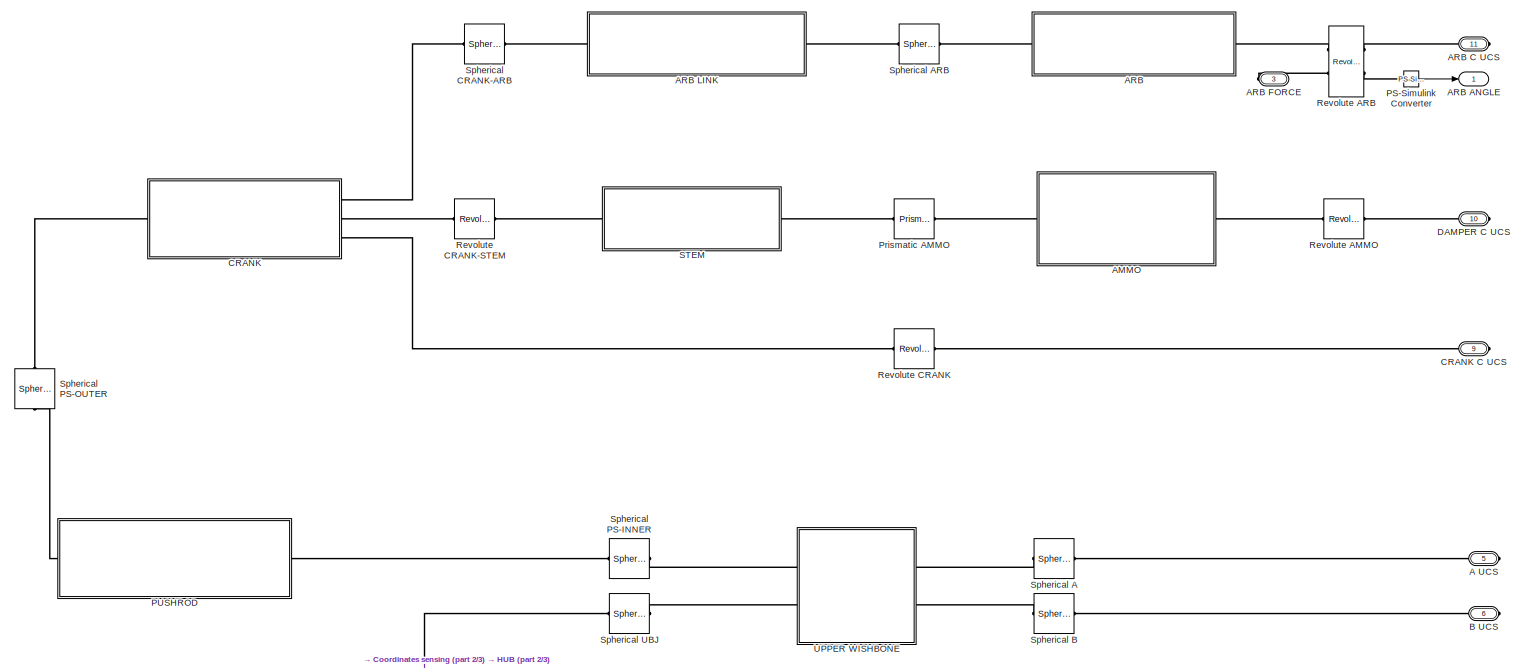
[diagram: FL SUSPENSION - part 1/3, full width, top band]
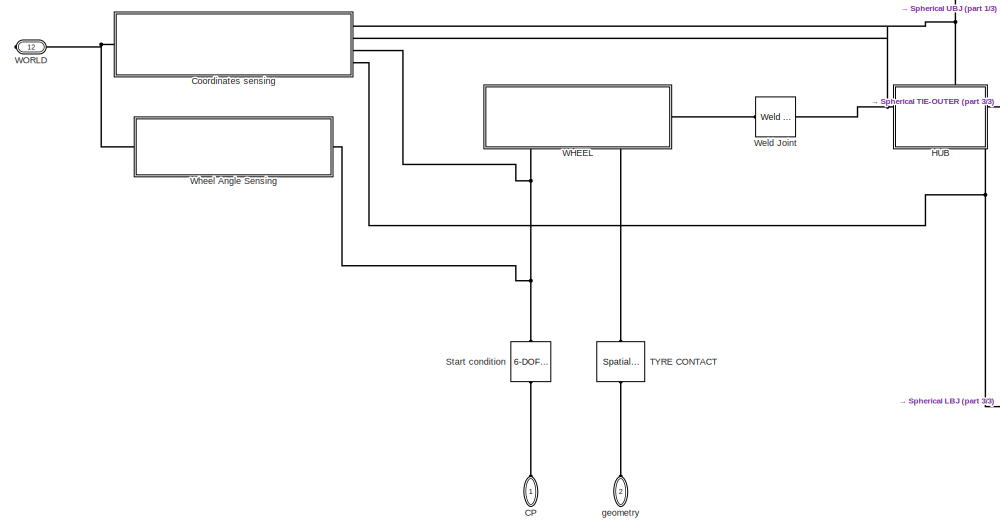
[diagram: FL SUSPENSION - part 2/3, bottom left region]
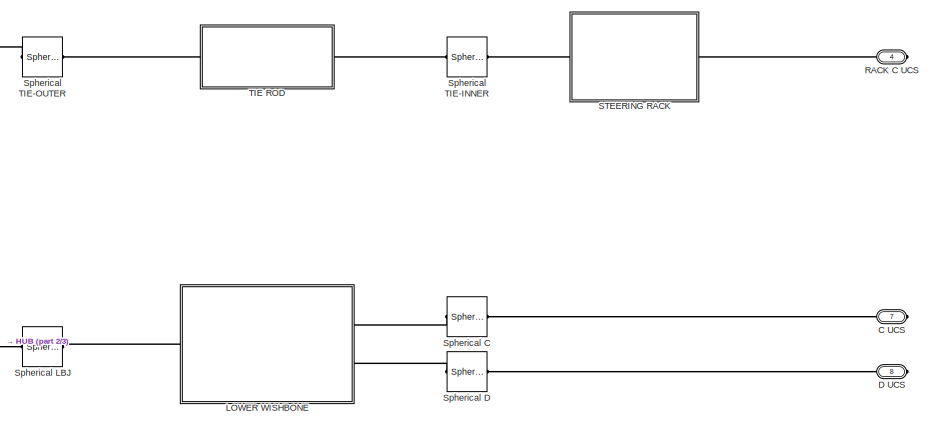
[diagram: FL SUSPENSION - part 3/3, bottom right region]
BLOCK [SubSystem] FL SUSPENSION
  Ports = [0, 1, 0, 0, 0, 2, 10]
  RequestExecContextInheritance = off
BLOCK [PMIOPort] FL SUSPENSION/A UCS
  Port = 5
  Side = Right
BLOCK [SubSystem] FL SUSPENSION/AMMO
  Ports = [0, 0, 0, 0, 0, 1, 1]
  RequestExecContextInheritance = off
BLOCK [Reference] FL SUSPENSION/AMMO/AMMO  REF=sm_lib/Body Elements/Revolved Solid
  Ports = [0, 0, 0, 0, 0, 1, 1]
  SourceBlock = sm_lib/Body Elements/Revolved Solid
  SourceProductBaseCode = MS
  SourceType = Revolved Solid
BLOCK [Reference] FL SUSPENSION/AMMO/ATTACCO AMMO  REF=sm_lib/Body Elements/Extruded Solid
  Ports = [0, 0, 0, 0, 0, 1, 1]
  SourceBlock = sm_lib/Body Elements/Extruded Solid
  SourceProductBaseCode = MS
  SourceType = Extruded Solid
BLOCK [PMIOPort] FL SUSPENSION/AMMO/STEM
  Side = Left
BLOCK [PMIOPort] FL SUSPENSION/AMMO/WORLD
  Port = 2
  Side = Right
BLOCK [SubSystem] FL SUSPENSION/ARB
  Ports = [0, 0, 0, 0, 0, 1, 1]
  RequestExecContextInheritance = off
BLOCK [Outport] FL SUSPENSION/ARB ANGLE
BLOCK [PMIOPort] FL SUSPENSION/ARB C UCS
  Port = 11
  Side = Right
BLOCK [PMIOPort] FL SUSPENSION/ARB FORCE
  Port = 3
  Side = Right
BLOCK [SubSystem] FL SUSPENSION/ARB LINK
  Ports = [0, 0, 0, 0, 0, 1, 1]
  RequestExecContextInheritance = off
BLOCK [PMIOPort] FL SUSPENSION/ARB LINK/ARB
  Port = 2
  Side = Right
BLOCK [PMIOPort] FL SUSPENSION/ARB LINK/CRANK
  Side = Left
BLOCK [Reference] FL SUSPENSION/ARB LINK/Cylindrical Solid1  REF=sm_lib/Body Elements/Cylindrical Solid
  Ports = [0, 0, 0, 0, 0, 1, 1]
  SourceBlock = sm_lib/Body Elements/Cylindrical Solid
  SourceProductBaseCode = MS
  SourceType = Cylindrical Solid
BLOCK [Reference] FL SUSPENSION/ARB LINK/Spherical Solid  REF=sm_lib/Body Elements/Spherical Solid
  NameLocation = right
  Ports = [0, 0, 0, 0, 0, 0, 1]
  SourceBlock = sm_lib/Body Elements/Spherical Solid
  SourceProductBaseCode = MS
  SourceType = Spherical Solid
BLOCK [Reference] FL SUSPENSION/ARB LINK/Spherical Solid1  REF=sm_lib/Body Elements/Spherical Solid
  NameLocation = right
  Ports = [0, 0, 0, 0, 0, 0, 1]
  SourceBlock = sm_lib/Body Elements/Spherical Solid
  SourceProductBaseCode = MS
  SourceType = Spherical Solid
BLOCK [PMIOPort] FL SUSPENSION/ARB/ARB LINK
  Side = Right
BLOCK [Reference] FL SUSPENSION/ARB/Cylindrical Solid  REF=sm_lib/Body Elements/Cylindrical Solid
  Ports = [0, 0, 0, 0, 0, 1, 1]
  SourceBlock = sm_lib/Body Elements/Cylindrical Solid
  SourceProductBaseCode = MS
  SourceType = Cylindrical Solid
BLOCK [Reference] FL SUSPENSION/ARB/Extruded Solid  REF=sm_lib/Body Elements/Extruded Solid
  Ports = [0, 0, 0, 0, 0, 1, 1]
  SourceBlock = sm_lib/Body Elements/Extruded Solid
  SourceProductBaseCode = MS
  SourceType = Extruded Solid
BLOCK [PMIOPort] FL SUSPENSION/ARB/WORLD
  Port = 2
  Side = Left
BLOCK [PMIOPort] FL SUSPENSION/B UCS
  Port = 6
  Side = Right
BLOCK [PMIOPort] FL SUSPENSION/C UCS
  Port = 7
  Side = Right
BLOCK [PMIOPort] FL SUSPENSION/CP
  NameLocation = left
  Side = Left
BLOCK [SubSystem] FL SUSPENSION/CRANK
  NameLocation = top
  Ports = [0, 0, 0, 0, 0, 1, 3]
  RequestExecContextInheritance = off
BLOCK [PMIOPort] FL SUSPENSION/CRANK C UCS
  Port = 9
  Side = Right
BLOCK [PMIOPort] FL SUSPENSION/CRANK/ARB
  Port = 2
  Side = Right
BLOCK [Reference] FL SUSPENSION/CRANK/ARB UCS  REF=sm_lib/Frames and
Transforms/Rigid
Transform
  Ports = [0, 0, 0, 0, 0, 1, 1]
  SourceBlock = sm_lib/Frames and\nTransforms/Rigid\nTransform
  SourceProductBaseCode = MS
  SourceType = Rigid\nTransform
BLOCK [Reference] FL SUSPENSION/CRANK/ARB sphere  REF=sm_lib/Body Elements/Spherical Solid
  NameLocation = left
  Ports = [0, 0, 0, 0, 0, 0, 1]
  SourceBlock = sm_lib/Body Elements/Spherical Solid
  SourceProductBaseCode = MS
  SourceType = Spherical Solid
BLOCK [PMIOPort] FL SUSPENSION/CRANK/CENTER
  Port = 4
  Side = Right
BLOCK [Reference] FL SUSPENSION/CRANK/CENTER UCS  REF=sm_lib/Frames and
Transforms/Rigid
Transform
  Ports = [0, 0, 0, 0, 0, 1, 1]
  SourceBlock = sm_lib/Frames and\nTransforms/Rigid\nTransform
  SourceProductBaseCode = MS
  SourceType = Rigid\nTransform
BLOCK [Reference] FL SUSPENSION/CRANK/CENTER sphere  REF=sm_lib/Body Elements/Spherical Solid
  NameLocation = left
  Ports = [0, 0, 0, 0, 0, 0, 1]
  SourceBlock = sm_lib/Body Elements/Spherical Solid
  SourceProductBaseCode = MS
  SourceType = Spherical Solid
BLOCK [Reference] FL SUSPENSION/CRANK/CRANK  REF=sm_lib/Body Elements/Extruded Solid
  Ports = [0, 0, 0, 0, 0, 0, 1]
  SourceBlock = sm_lib/Body Elements/Extruded Solid
  SourceProductBaseCode = MS
  SourceType = Extruded Solid
BLOCK [PMIOPort] FL SUSPENSION/CRANK/PUSHROD
  Side = Left
BLOCK [Reference] FL SUSPENSION/CRANK/PUSHROD UCS  REF=sm_lib/Frames and
Transforms/Rigid
Transform
  Ports = [0, 0, 0, 0, 0, 1, 1]
  SourceBlock = sm_lib/Frames and\nTransforms/Rigid\nTransform
  SourceProductBaseCode = MS
  SourceType = Rigid\nTransform
BLOCK [Reference] FL SUSPENSION/CRANK/PUSHROD sphere  REF=sm_lib/Body Elements/Spherical Solid
  NameLocation = left
  Ports = [0, 0, 0, 0, 0, 0, 1]
  SourceBlock = sm_lib/Body Elements/Spherical Solid
  SourceProductBaseCode = MS
  SourceType = Spherical Solid
BLOCK [PMIOPort] FL SUSPENSION/CRANK/STEM
  Port = 3
  Side = Right
BLOCK [Reference] FL SUSPENSION/CRANK/STEM UCS  REF=sm_lib/Frames and
Transforms/Rigid
Transform
  Ports = [0, 0, 0, 0, 0, 1, 1]
  SourceBlock = sm_lib/Frames and\nTransforms/Rigid\nTransform
  SourceProductBaseCode = MS
  SourceType = Rigid\nTransform
BLOCK [Reference] FL SUSPENSION/CRANK/STEM sphere  REF=sm_lib/Body Elements/Spherical Solid
  NameLocation = left
  Ports = [0, 0, 0, 0, 0, 0, 1]
  SourceBlock = sm_lib/Body Elements/Spherical Solid
  SourceProductBaseCode = MS
  SourceType = Spherical Solid
BLOCK [SubSystem] FL SUSPENSION/Coordinates sensing
  Ports = [0, 0, 0, 0, 0, 1, 4]
  RequestExecContextInheritance = off
BLOCK [PMIOPort] FL SUSPENSION/Coordinates sensing/CP
  Port = 4
  Side = Right
BLOCK [PMIOPort] FL SUSPENSION/Coordinates sensing/LBJ
  Port = 5
  Side = Right
BLOCK [Reference] FL SUSPENSION/Coordinates sensing/PS-Simulink Converter  REF=nesl_utility/PS-Simulink
Converter
  Ports = [0, 1, 0, 0, 0, 1]
  SourceBlock = nesl_utility/PS-Simulink\nConverter
  SourceProductBaseCode = SS
  SourceType = PS-Simulink\nConverter
BLOCK [Reference] FL SUSPENSION/Coordinates sensing/PS-Simulink Converter1  REF=nesl_utility/PS-Simulink
Converter
  Ports = [0, 1, 0, 0, 0, 1]
  SourceBlock = nesl_utility/PS-Simulink\nConverter
  SourceProductBaseCode = SS
  SourceType = PS-Simulink\nConverter
BLOCK [Reference] FL SUSPENSION/Coordinates sensing/PS-Simulink Converter2  REF=nesl_utility/PS-Simulink
Converter
  Ports = [0, 1, 0, 0, 0, 1]
  SourceBlock = nesl_utility/PS-Simulink\nConverter
  SourceProductBaseCode = SS
  SourceType = PS-Simulink\nConverter
BLOCK [Reference] FL SUSPENSION/Coordinates sensing/PS-Simulink Converter3  REF=nesl_utility/PS-Simulink
Converter
  Ports = [0, 1, 0, 0, 0, 1]
  SourceBlock = nesl_utility/PS-Simulink\nConverter
  SourceProductBaseCode = SS
  SourceType = PS-Simulink\nConverter
BLOCK [Reference] FL SUSPENSION/Coordinates sensing/PS-Simulink Converter4  REF=nesl_utility/PS-Simulink
Converter
  Ports = [0, 1, 0, 0, 0, 1]
  SourceBlock = nesl_utility/PS-Simulink\nConverter
  SourceProductBaseCode = SS
  SourceType = PS-Simulink\nConverter
BLOCK [Reference] FL SUSPENSION/Coordinates sensing/PS-Simulink Converter5  REF=nesl_utility/PS-Simulink
Converter
  Ports = [0, 1, 0, 0, 0, 1]
  SourceBlock = nesl_utility/PS-Simulink\nConverter
  SourceProductBaseCode = SS
  SourceType = PS-Simulink\nConverter
BLOCK [Reference] FL SUSPENSION/Coordinates sensing/PS-Simulink Converter6  REF=nesl_utility/PS-Simulink
Converter
  Ports = [0, 1, 0, 0, 0, 1]
  SourceBlock = nesl_utility/PS-Simulink\nConverter
  SourceProductBaseCode = SS
  SourceType = PS-Simulink\nConverter
BLOCK [Reference] FL SUSPENSION/Coordinates sensing/PS-Simulink Converter7  REF=nesl_utility/PS-Simulink
Converter
  Ports = [0, 1, 0, 0, 0, 1]
  SourceBlock = nesl_utility/PS-Simulink\nConverter
  SourceProductBaseCode = SS
  SourceType = PS-Simulink\nConverter
BLOCK [Scope] FL SUSPENSION/Coordinates sensing/Scope
  Floating = off
  NumInputPorts = 1
  Ports = [1]
  ScopeSpecificationString = Simulink.scopes.TimeScopeBlockCfg('CurrentConfiguration', extmgr.ConfigurationSet(extmgr.Configuration('Core','General UI',true),extmgr.Configuration('Core','Source UI',true),extmgr.Configuration('Sources','WiredSimulink',true,'DataLoggingVariableName','ScopeData7'),extmgr.Configuration('Visuals','Time Domain',true,'SerializedDisplays',{struct('MinYLimReal','516.99546','MaxYLimReal','528.13983','Y...<+1582ch>  <repeated x4 — deduplicated; at blocks: Scope>
BLOCK [Scope] FL SUSPENSION/Coordinates sensing/Scope1
  Floating = off
  NumInputPorts = 1
  Ports = [1]
  ScopeSpecificationString = Simulink.scopes.TimeScopeBlockCfg('CurrentConfiguration', extmgr.ConfigurationSet(extmgr.Configuration('Core','General UI',true),extmgr.Configuration('Core','Source UI',true),extmgr.Configuration('Sources','WiredSimulink',true,'DataLoggingVariableName','ScopeData1'),extmgr.Configuration('Visuals','Time Domain',true,'SerializedDisplays',{struct('MinYLimReal','559.52314','MaxYLimReal','563.72202','Y...<+1583ch>  <repeated x4 — deduplicated; at blocks: Scope1>
BLOCK [Scope] FL SUSPENSION/Coordinates sensing/Scope2
  Floating = off
  NumInputPorts = 1
  Ports = [1]
  ScopeSpecificationString = Simulink.scopes.TimeScopeBlockCfg('CurrentConfiguration', extmgr.ConfigurationSet(extmgr.Configuration('Core','General UI',true),extmgr.Configuration('Core','Source UI',true),extmgr.Configuration('Sources','WiredSimulink',true,'DataLoggingVariableName','ScopeData1'),extmgr.Configuration('Visuals','Time Domain',true,'SerializedDisplays',{struct('MinYLimReal','516.99546','MaxYLimReal','528.13983','Y...<+1582ch>  <repeated x4 — deduplicated; at blocks: Scope2>
BLOCK [Scope] FL SUSPENSION/Coordinates sensing/Scope3
  Floating = off
  NumInputPorts = 1
  Ports = [1]
  ScopeSpecificationString = Simulink.scopes.TimeScopeBlockCfg('CurrentConfiguration', extmgr.ConfigurationSet(extmgr.Configuration('Core','General UI',true),extmgr.Configuration('Core','Source UI',true),extmgr.Configuration('Sources','WiredSimulink',true,'DataLoggingVariableName','ScopeData2'),extmgr.Configuration('Visuals','Time Domain',true,'SerializedDisplays',{struct('MinYLimReal','344.28504','MaxYLimReal','390.42552','Y...<+1583ch>  <repeated x4 — deduplicated; at blocks: Scope3>
BLOCK [Scope] FL SUSPENSION/Coordinates sensing/Scope4
  Floating = off
  NumInputPorts = 1
  Ports = [1]
  ScopeSpecificationString = Simulink.scopes.TimeScopeBlockCfg('CurrentConfiguration', extmgr.ConfigurationSet(extmgr.Configuration('Core','General UI',true),extmgr.Configuration('Core','Source UI',true),extmgr.Configuration('Sources','WiredSimulink',true,'DataLoggingVariableName','ScopeData1'),extmgr.Configuration('Visuals','Time Domain',true,'SerializedDisplays',{struct('MinYLimReal','344.28504','MaxYLimReal','390.42552','Y...<+1583ch>  <repeated x4 — deduplicated; at blocks: Scope4>
BLOCK [Scope] FL SUSPENSION/Coordinates sensing/Scope5
  Floating = off
  NumInputPorts = 1
  Ports = [1]
  ScopeSpecificationString = Simulink.scopes.TimeScopeBlockCfg('CurrentConfiguration', extmgr.ConfigurationSet(extmgr.Configuration('Core','General UI',true),extmgr.Configuration('Core','Source UI',true),extmgr.Configuration('Sources','WiredSimulink',true,'DataLoggingVariableName','ScopeData3'),extmgr.Configuration('Visuals','Time Domain',true,'SerializedDisplays',{struct('MinYLimReal','143.41667','MaxYLimReal','191.44552','Y...<+1583ch>  <repeated x4 — deduplicated; at blocks: Scope5>
BLOCK [Scope] FL SUSPENSION/Coordinates sensing/Scope6
  Floating = off
  NumInputPorts = 1
  Ports = [1]
  ScopeSpecificationString = Simulink.scopes.TimeScopeBlockCfg('CurrentConfiguration', extmgr.ConfigurationSet(extmgr.Configuration('Core','General UI',true),extmgr.Configuration('Core','Source UI',true),extmgr.Configuration('Sources','WiredSimulink',true,'DataLoggingVariableName','ScopeData1'),extmgr.Configuration('Visuals','Time Domain',true,'SerializedDisplays',{struct('MinYLimReal','124.23557','MaxYLimReal','172.66396','Y...<+1558ch>  <repeated x4 — deduplicated; at blocks: Scope6>
BLOCK [Scope] FL SUSPENSION/Coordinates sensing/Scope7
  Floating = off
  NumInputPorts = 1
  Ports = [1]
  ScopeSpecificationString = Simulink.scopes.TimeScopeBlockCfg('CurrentConfiguration', extmgr.ConfigurationSet(extmgr.Configuration('Core','General UI',true),extmgr.Configuration('Core','Source UI',true),extmgr.Configuration('Sources','WiredSimulink',true,'DataLoggingVariableName','ScopeData2'),extmgr.Configuration('Visuals','Time Domain',true,'SerializedDisplays',{struct('MinYLimReal','229.9596','MaxYLimReal','279.82809','YL...<+1579ch>  <repeated x4 — deduplicated; at blocks: Scope7>
BLOCK [ToWorkspace] FL SUSPENSION/Coordinates sensing/To Workspace1
  FixptAsFi = on
  MaxDataPoints = inf
  Ports = [1]
  SampleTime = -1
  SaveFormat = Timeseries
  VariableName = FL_UBJ_y
BLOCK [ToWorkspace] FL SUSPENSION/Coordinates sensing/To Workspace2
  FixptAsFi = on
  MaxDataPoints = inf
  Ports = [1]
  SampleTime = -1
  SaveFormat = Timeseries
  VariableName = FL_LBJ_y
BLOCK [ToWorkspace] FL SUSPENSION/Coordinates sensing/To Workspace3
  FixptAsFi = on
  MaxDataPoints = inf
  Ports = [1]
  SampleTime = -1
  SaveFormat = Timeseries
  VariableName = FL_CP_y
BLOCK [ToWorkspace] FL SUSPENSION/Coordinates sensing/To Workspace4
  FixptAsFi = on
  MaxDataPoints = inf
  Ports = [1]
  SampleTime = -1
  SaveFormat = Timeseries
  VariableName = FL_UBJ_z
BLOCK [ToWorkspace] FL SUSPENSION/Coordinates sensing/To Workspace5
  FixptAsFi = on
  MaxDataPoints = inf
  Ports = [1]
  SampleTime = -1
  SaveFormat = Timeseries
  VariableName = FL_LBJ_z
BLOCK [ToWorkspace] FL SUSPENSION/Coordinates sensing/To Workspace6
  FixptAsFi = on
  MaxDataPoints = inf
  Ports = [1]
  SampleTime = -1
  SaveFormat = Timeseries
  VariableName = FL_WC_y
BLOCK [ToWorkspace] FL SUSPENSION/Coordinates sensing/To Workspace7
  FixptAsFi = on
  MaxDataPoints = inf
  Ports = [1]
  SampleTime = -1
  SaveFormat = Timeseries
  VariableName = FL_WC_z
BLOCK [ToWorkspace] FL SUSPENSION/Coordinates sensing/To Workspace8
  FixptAsFi = on
  MaxDataPoints = inf
  Ports = [1]
  SampleTime = -1
  SaveFormat = Timeseries
  VariableName = FL_CP_z
BLOCK [Reference] FL SUSPENSION/Coordinates sensing/Transform Sensor  REF=sm_lib/Frames and
Transforms/Transform
Sensor
  Ports = [0, 0, 0, 0, 0, 1, 3]
  SourceBlock = sm_lib/Frames and\nTransforms/Transform\nSensor
  SourceProductBaseCode = MS
  SourceType = Transform\nSensor
BLOCK [Reference] FL SUSPENSION/Coordinates sensing/Transform Sensor1  REF=sm_lib/Frames and
Transforms/Transform
Sensor
  Ports = [0, 0, 0, 0, 0, 1, 3]
  SourceBlock = sm_lib/Frames and\nTransforms/Transform\nSensor
  SourceProductBaseCode = MS
  SourceType = Transform\nSensor
BLOCK [Reference] FL SUSPENSION/Coordinates sensing/Transform Sensor2  REF=sm_lib/Frames and
Transforms/Transform
Sensor
  Ports = [0, 0, 0, 0, 0, 1, 3]
  SourceBlock = sm_lib/Frames and\nTransforms/Transform\nSensor
  SourceProductBaseCode = MS
  SourceType = Transform\nSensor
BLOCK [Reference] FL SUSPENSION/Coordinates sensing/Transform Sensor3  REF=sm_lib/Frames and
Transforms/Transform
Sensor
  Ports = [0, 0, 0, 0, 0, 1, 3]
  SourceBlock = sm_lib/Frames and\nTransforms/Transform\nSensor
  SourceProductBaseCode = MS
  SourceType = Transform\nSensor
BLOCK [PMIOPort] FL SUSPENSION/Coordinates sensing/UBJ
  Port = 2
  Side = Right
BLOCK [PMIOPort] FL SUSPENSION/Coordinates sensing/WC
  Port = 3
  Side = Right
BLOCK [PMIOPort] FL SUSPENSION/Coordinates sensing/WORLD
  Side = Left
BLOCK [PMIOPort] FL SUSPENSION/D UCS
  Port = 8
  Side = Right
BLOCK [PMIOPort] FL SUSPENSION/DAMPER C UCS
  Port = 10
  Side = Right
BLOCK [SubSystem] FL SUSPENSION/HUB
  NameLocation = top
  PortSchema = {"entries":[{"content":{"sides":[{"content":{"connectorIds":["LConn1"]},"type":"ConnectorPlacement.EquallySpacedRectSide","uuid":"9288c4a0-54c3-4908-8001-02af7126e1bd"},{"content":{"connectorIds":["RConn1"],"side":"RIGHT"},"type":"ConnectorPlacement.EquallySpacedRectSide","uuid":"0b9445fb-287d-43af-a603-ac8e03764a58"},{"content":{"connectorIds":["LConn2"],"side":"TOP"},"type":"ConnectorPlacement.E...<+549ch>  <repeated x4 — deduplicated; at blocks: HUB>
  Ports = [0, 0, 0, 0, 0, 2, 2]
  RequestExecContextInheritance = off
BLOCK [Reference] FL SUSPENSION/HUB/ LBJ-TIE  REF=sm_lib/Body Elements/Cylindrical Solid
  NameLocation = right
  Ports = [0, 0, 0, 0, 0, 1, 1]
  SourceBlock = sm_lib/Body Elements/Cylindrical Solid
  SourceProductBaseCode = MS
  SourceType = Cylindrical Solid
BLOCK [Reference] FL SUSPENSION/HUB/ UBJ  REF=sm_lib/Body Elements/Spherical Solid
  Ports = [0, 0, 0, 0, 0, 0, 1]
  SourceBlock = sm_lib/Body Elements/Spherical Solid
  SourceProductBaseCode = MS
  SourceType = Spherical Solid
BLOCK [Reference] FL SUSPENSION/HUB/CAMBER  REF=sm_lib/Frames and
Transforms/Rigid
Transform
  NameLocation = right
  Ports = [0, 0, 0, 0, 0, 1, 1]
  SourceBlock = sm_lib/Frames and\nTransforms/Rigid\nTransform
  SourceProductBaseCode = MS
  SourceType = Rigid\nTransform
BLOCK [Reference] FL SUSPENSION/HUB/LBJ  REF=sm_lib/Body Elements/Spherical Solid
  Ports = [0, 0, 0, 0, 0, 0, 1]
  SourceBlock = sm_lib/Body Elements/Spherical Solid
  SourceProductBaseCode = MS
  SourceType = Spherical Solid
BLOCK [PMIOPort] FL SUSPENSION/HUB/LBJ 
  Port = 4
  Side = Right
BLOCK [Reference] FL SUSPENSION/HUB/Rigid Transform  REF=sm_lib/Frames and
Transforms/Rigid
Transform
  NameLocation = left
  Ports = [0, 0, 0, 0, 0, 1, 1]
  SourceBlock = sm_lib/Frames and\nTransforms/Rigid\nTransform
  SourceProductBaseCode = MS
  SourceType = Rigid\nTransform
BLOCK [Reference] FL SUSPENSION/HUB/Rigid Transform1  REF=sm_lib/Frames and
Transforms/Rigid
Transform
  NameLocation = left
  Ports = [0, 0, 0, 0, 0, 1, 1]
  SourceBlock = sm_lib/Frames and\nTransforms/Rigid\nTransform
  SourceProductBaseCode = MS
  SourceType = Rigid\nTransform
BLOCK [PMIOPort] FL SUSPENSION/HUB/TIE
  NameLocation = left
  Port = 3
  Side = Right
BLOCK [Reference] FL SUSPENSION/HUB/TOE  REF=sm_lib/Frames and
Transforms/Rigid
Transform
  NameLocation = right
  Ports = [0, 0, 0, 0, 0, 1, 1]
  SourceBlock = sm_lib/Frames and\nTransforms/Rigid\nTransform
  SourceProductBaseCode = MS
  SourceType = Rigid\nTransform
BLOCK [PMIOPort] FL SUSPENSION/HUB/UBJ
  Port = 2
  Side = Left
BLOCK [Reference] FL SUSPENSION/HUB/UBJ-LBJ  REF=sm_lib/Body Elements/Cylindrical Solid
  NameLocation = right
  Ports = [0, 0, 0, 0, 0, 1, 1]
  SourceBlock = sm_lib/Body Elements/Cylindrical Solid
  SourceProductBaseCode = MS
  SourceType = Cylindrical Solid
BLOCK [PMIOPort] FL SUSPENSION/HUB/WC 
  NameLocation = left
  Side = Left
BLOCK [SubSystem] FL SUSPENSION/LOWER WISHBONE
  NameLocation = top
  Ports = [0, 0, 0, 0, 0, 2, 1]
  RequestExecContextInheritance = off
BLOCK [Reference] FL SUSPENSION/LOWER WISHBONE/C  REF=sm_lib/Body Elements/Spherical Solid
  NameLocation = right
  Ports = [0, 0, 0, 0, 0, 0, 1]
  SourceBlock = sm_lib/Body Elements/Spherical Solid
  SourceProductBaseCode = MS
  SourceType = Spherical Solid
BLOCK [PMIOPort] FL SUSPENSION/LOWER WISHBONE/C UCS
  Side = Left
BLOCK [Reference] FL SUSPENSION/LOWER WISHBONE/C-D  REF=sm_lib/Frames and
Transforms/Rigid
Transform
  Ports = [0, 0, 0, 0, 0, 1, 1]
  SourceBlock = sm_lib/Frames and\nTransforms/Rigid\nTransform
  SourceProductBaseCode = MS
  SourceType = Rigid\nTransform
BLOCK [Reference] FL SUSPENSION/LOWER WISHBONE/D  REF=sm_lib/Body Elements/Spherical Solid
  NameLocation = right
  Ports = [0, 0, 0, 0, 0, 0, 1]
  SourceBlock = sm_lib/Body Elements/Spherical Solid
  SourceProductBaseCode = MS
  SourceType = Spherical Solid
BLOCK [PMIOPort] FL SUSPENSION/LOWER WISHBONE/D UCS
  Port = 2
  Side = Left
BLOCK [Reference] FL SUSPENSION/LOWER WISHBONE/INNER CYL  REF=sm_lib/Body Elements/Cylindrical Solid
  NameLocation = right
  Ports = [0, 0, 0, 0, 0, 1, 1]
  SourceBlock = sm_lib/Body Elements/Cylindrical Solid
  SourceProductBaseCode = MS
  SourceType = Cylindrical Solid
BLOCK [Reference] FL SUSPENSION/LOWER WISHBONE/LBJ  REF=sm_lib/Body Elements/Spherical Solid
  Ports = [0, 0, 0, 0, 0, 0, 1]
  SourceBlock = sm_lib/Body Elements/Spherical Solid
  SourceProductBaseCode = MS
  SourceType = Spherical Solid
BLOCK [PMIOPort] FL SUSPENSION/LOWER WISHBONE/LBJ UCS
  NameLocation = right
  Port = 3
  Side = Right
BLOCK [Reference] FL SUSPENSION/LOWER WISHBONE/OUTER CYL  REF=sm_lib/Body Elements/Cylindrical Solid
  NameLocation = right
  Ports = [0, 0, 0, 0, 0, 1, 1]
  SourceBlock = sm_lib/Body Elements/Cylindrical Solid
  SourceProductBaseCode = MS
  SourceType = Cylindrical Solid
BLOCK [Reference] FL SUSPENSION/PS-Simulink Converter  REF=nesl_utility/PS-Simulink
Converter
  Ports = [0, 1, 0, 0, 0, 1]
  SourceBlock = nesl_utility/PS-Simulink\nConverter
  SourceProductBaseCode = SS
  SourceType = PS-Simulink\nConverter
BLOCK [SubSystem] FL SUSPENSION/PUSHROD
  Ports = [0, 0, 0, 0, 0, 1, 1]
  RequestExecContextInheritance = off
BLOCK [PMIOPort] FL SUSPENSION/PUSHROD/CRANK
  Side = Left
BLOCK [Reference] FL SUSPENSION/PUSHROD/Cylindrical Solid  REF=sm_lib/Body Elements/Cylindrical Solid
  Ports = [0, 0, 0, 0, 0, 1, 1]
  SourceBlock = sm_lib/Body Elements/Cylindrical Solid
  SourceProductBaseCode = MS
  SourceType = Cylindrical Solid
BLOCK [Reference] FL SUSPENSION/PUSHROD/Spherical Solid  REF=sm_lib/Body Elements/Spherical Solid
  NameLocation = top
  Ports = [0, 0, 0, 0, 0, 0, 1]
  SourceBlock = sm_lib/Body Elements/Spherical Solid
  SourceProductBaseCode = MS
  SourceType = Spherical Solid
BLOCK [Reference] FL SUSPENSION/PUSHROD/Spherical Solid1  REF=sm_lib/Body Elements/Spherical Solid
  NameLocation = top
  Ports = [0, 0, 0, 0, 0, 0, 1]
  SourceBlock = sm_lib/Body Elements/Spherical Solid
  SourceProductBaseCode = MS
  SourceType = Spherical Solid
BLOCK [PMIOPort] FL SUSPENSION/PUSHROD/UPPER WISHBONE
  Port = 2
  Side = Right
BLOCK [Reference] FL SUSPENSION/Prismatic AMMO  REF=sm_lib/Joints/Prismatic
Joint
  Ports = [0, 0, 0, 0, 0, 1, 1]
  SourceBlock = sm_lib/Joints/Prismatic\nJoint
  SourceProductBaseCode = MS
  SourceType = Prismatic\nJoint
BLOCK [PMIOPort] FL SUSPENSION/RACK C UCS
  Port = 4
  Side = Right
BLOCK [Reference] FL SUSPENSION/Revolute AMMO  REF=sm_lib/Joints/Revolute Joint
  Ports = [0, 0, 0, 0, 0, 1, 1]
  SourceBlock = sm_lib/Joints/Revolute Joint
  SourceProductBaseCode = MS
  SourceType = Revolute Joint
BLOCK [Reference] FL SUSPENSION/Revolute ARB  REF=sm_lib/Joints/Revolute Joint
  Ports = [0, 0, 0, 0, 0, 2, 2]
  SourceBlock = sm_lib/Joints/Revolute Joint
  SourceProductBaseCode = MS
  SourceType = Revolute Joint
BLOCK [Reference] FL SUSPENSION/Revolute CRANK  REF=sm_lib/Joints/Revolute Joint
  Ports = [0, 0, 0, 0, 0, 1, 1]
  SourceBlock = sm_lib/Joints/Revolute Joint
  SourceProductBaseCode = MS
  SourceType = Revolute Joint
BLOCK [Reference] FL SUSPENSION/Revolute CRANK-STEM  REF=sm_lib/Joints/Revolute Joint
  Ports = [0, 0, 0, 0, 0, 1, 1]
  SourceBlock = sm_lib/Joints/Revolute Joint
  SourceProductBaseCode = MS
  SourceType = Revolute Joint
BLOCK [SubSystem] FL SUSPENSION/STEERING RACK
  NameLocation = top
  Ports = [0, 0, 0, 0, 0, 1, 1]
  RequestExecContextInheritance = off
BLOCK [Reference] FL SUSPENSION/STEERING RACK/Cylindrical Solid  REF=sm_lib/Body Elements/Cylindrical Solid
  Ports = [0, 0, 0, 0, 0, 1, 1]
  SourceBlock = sm_lib/Body Elements/Cylindrical Solid
  SourceProductBaseCode = MS
  SourceType = Cylindrical Solid
BLOCK [PMIOPort] FL SUSPENSION/STEERING RACK/RACK TIE
  Port = 2
  Side = Right
BLOCK [PMIOPort] FL SUSPENSION/STEERING RACK/WORLD
  Side = Left
BLOCK [SubSystem] FL SUSPENSION/STEM
  Ports = [0, 0, 0, 0, 0, 1, 1]
  RequestExecContextInheritance = off
BLOCK [Reference] FL SUSPENSION/STEM/ATTACCO STEM  REF=sm_lib/Body Elements/Extruded Solid
  Ports = [0, 0, 0, 0, 0, 1, 1]
  SourceBlock = sm_lib/Body Elements/Extruded Solid
  SourceProductBaseCode = MS
  SourceType = Extruded Solid
BLOCK [Reference] FL SUSPENSION/STEM/STEM  REF=sm_lib/Body Elements/Revolved Solid
  Ports = [0, 0, 0, 0, 0, 1, 1]
  SourceBlock = sm_lib/Body Elements/Revolved Solid
  SourceProductBaseCode = MS
  SourceType = Revolved Solid
BLOCK [PMIOPort] FL SUSPENSION/STEM/STEM TO AMMO
  Port = 2
  Side = Right
BLOCK [PMIOPort] FL SUSPENSION/STEM/STEM TO CRANK
  Side = Left
BLOCK [Reference] FL SUSPENSION/Spherical A  REF=sm_lib/Joints/Spherical
Joint
  NameLocation = top
  Ports = [0, 0, 0, 0, 0, 1, 1]
  SourceBlock = sm_lib/Joints/Spherical\nJoint
  SourceProductBaseCode = MS
  SourceType = Spherical\nJoint
BLOCK [Reference] FL SUSPENSION/Spherical ARB  REF=sm_lib/Joints/Spherical
Joint
  Ports = [0, 0, 0, 0, 0, 1, 1]
  SourceBlock = sm_lib/Joints/Spherical\nJoint
  SourceProductBaseCode = MS
  SourceType = Spherical\nJoint
BLOCK [Reference] FL SUSPENSION/Spherical B  REF=sm_lib/Joints/Spherical
Joint
  Ports = [0, 0, 0, 0, 0, 1, 1]
  SourceBlock = sm_lib/Joints/Spherical\nJoint
  SourceProductBaseCode = MS
  SourceType = Spherical\nJoint
BLOCK [Reference] FL SUSPENSION/Spherical C  REF=sm_lib/Joints/Spherical
Joint
  NameLocation = top
  Ports = [0, 0, 0, 0, 0, 1, 1]
  SourceBlock = sm_lib/Joints/Spherical\nJoint
  SourceProductBaseCode = MS
  SourceType = Spherical\nJoint
BLOCK [Reference] FL SUSPENSION/Spherical CRANK-ARB  REF=sm_lib/Joints/Spherical
Joint
  Ports = [0, 0, 0, 0, 0, 1, 1]
  SourceBlock = sm_lib/Joints/Spherical\nJoint
  SourceProductBaseCode = MS
  SourceType = Spherical\nJoint
BLOCK [Reference] FL SUSPENSION/Spherical D  REF=sm_lib/Joints/Spherical
Joint
  Ports = [0, 0, 0, 0, 0, 1, 1]
  SourceBlock = sm_lib/Joints/Spherical\nJoint
  SourceProductBaseCode = MS
  SourceType = Spherical\nJoint
BLOCK [Reference] FL SUSPENSION/Spherical LBJ  REF=sm_lib/Joints/Spherical
Joint
  Ports = [0, 0, 0, 0, 0, 1, 1]
  SourceBlock = sm_lib/Joints/Spherical\nJoint
  SourceProductBaseCode = MS
  SourceType = Spherical\nJoint
BLOCK [Reference] FL SUSPENSION/Spherical PS-INNER  REF=sm_lib/Joints/Spherical
Joint
  NameLocation = top
  Ports = [0, 0, 0, 0, 0, 1, 1]
  SourceBlock = sm_lib/Joints/Spherical\nJoint
  SourceProductBaseCode = MS
  SourceType = Spherical\nJoint
BLOCK [Reference] FL SUSPENSION/Spherical PS-OUTER  REF=sm_lib/Joints/Spherical
Joint
  NameLocation = left
  Ports = [0, 0, 0, 0, 0, 1, 1]
  SourceBlock = sm_lib/Joints/Spherical\nJoint
  SourceProductBaseCode = MS
  SourceType = Spherical\nJoint
BLOCK [Reference] FL SUSPENSION/Spherical TIE-INNER  REF=sm_lib/Joints/Spherical
Joint
  Ports = [0, 0, 0, 0, 0, 1, 1]
  SourceBlock = sm_lib/Joints/Spherical\nJoint
  SourceProductBaseCode = MS
  SourceType = Spherical\nJoint
BLOCK [Reference] FL SUSPENSION/Spherical TIE-OUTER  REF=sm_lib/Joints/Spherical
Joint
  Ports = [0, 0, 0, 0, 0, 1, 1]
  SourceBlock = sm_lib/Joints/Spherical\nJoint
  SourceProductBaseCode = MS
  SourceType = Spherical\nJoint
BLOCK [Reference] FL SUSPENSION/Spherical UBJ  REF=sm_lib/Joints/Spherical
Joint
  Ports = [0, 0, 0, 0, 0, 1, 1]
  SourceBlock = sm_lib/Joints/Spherical\nJoint
  SourceProductBaseCode = MS
  SourceType = Spherical\nJoint
BLOCK [Reference] FL SUSPENSION/Start condition  REF=sm_lib/Joints/6-DOF Joint
  NameLocation = left
  Ports = [0, 0, 0, 0, 0, 1, 1]
  SourceBlock = sm_lib/Joints/6-DOF Joint
  SourceProductBaseCode = MS
  SourceType = 6-DOF Joint
BLOCK [SubSystem] FL SUSPENSION/TIE ROD
  Ports = [0, 0, 0, 0, 0, 1, 1]
  RequestExecContextInheritance = off
BLOCK [Reference] FL SUSPENSION/TIE ROD/Cylindrical Solid  REF=sm_lib/Body Elements/Cylindrical Solid
  Ports = [0, 0, 0, 0, 0, 1, 1]
  SourceBlock = sm_lib/Body Elements/Cylindrical Solid
  SourceProductBaseCode = MS
  SourceType = Cylindrical Solid
BLOCK [Reference] FL SUSPENSION/TIE ROD/Spherical Solid  REF=sm_lib/Body Elements/Spherical Solid
  NameLocation = top
  Ports = [0, 0, 0, 0, 0, 0, 1]
  SourceBlock = sm_lib/Body Elements/Spherical Solid
  SourceProductBaseCode = MS
  SourceType = Spherical Solid
BLOCK [Reference] FL SUSPENSION/TIE ROD/Spherical Solid1  REF=sm_lib/Body Elements/Spherical Solid
  NameLocation = top
  Ports = [0, 0, 0, 0, 0, 0, 1]
  SourceBlock = sm_lib/Body Elements/Spherical Solid
  SourceProductBaseCode = MS
  SourceType = Spherical Solid
BLOCK [PMIOPort] FL SUSPENSION/TIE ROD/TIE HUB
  Side = Left
BLOCK [PMIOPort] FL SUSPENSION/TIE ROD/TIE RACK
  Port = 2
  Side = Right
BLOCK [Reference] FL SUSPENSION/TYRE CONTACT  REF=sm_lib/Forces and
Torques/Spatial
Contact Force
  NameLocation = right
  Ports = [0, 0, 0, 0, 0, 1, 1]
  SourceBlock = sm_lib/Forces and\nTorques/Spatial\nContact Force
  SourceProductBaseCode = MS
  SourceType = Spatial\nContact Force
BLOCK [SubSystem] FL SUSPENSION/UPPER WISHBONE
  NameLocation = top
  Ports = [0, 0, 0, 0, 0, 2, 2]
  RequestExecContextInheritance = off
BLOCK [Reference] FL SUSPENSION/UPPER WISHBONE/A  REF=sm_lib/Body Elements/Spherical Solid
  NameLocation = right
  Ports = [0, 0, 0, 0, 0, 0, 1]
  SourceBlock = sm_lib/Body Elements/Spherical Solid
  SourceProductBaseCode = MS
  SourceType = Spherical Solid
BLOCK [PMIOPort] FL SUSPENSION/UPPER WISHBONE/A UCS
  Side = Left
BLOCK [Reference] FL SUSPENSION/UPPER WISHBONE/A-B  REF=sm_lib/Frames and
Transforms/Rigid
Transform
  Ports = [0, 0, 0, 0, 0, 1, 1]
  SourceBlock = sm_lib/Frames and\nTransforms/Rigid\nTransform
  SourceProductName = Multibody
  SourceType = Rigid\nTransform
BLOCK [Reference] FL SUSPENSION/UPPER WISHBONE/A-PS  REF=sm_lib/Frames and
Transforms/Rigid
Transform
  Ports = [0, 0, 0, 0, 0, 1, 1]
  SourceBlock = sm_lib/Frames and\nTransforms/Rigid\nTransform
  SourceProductName = Multibody
  SourceType = Rigid\nTransform
BLOCK [Reference] FL SUSPENSION/UPPER WISHBONE/B  REF=sm_lib/Body Elements/Spherical Solid
  NameLocation = right
  Ports = [0, 0, 0, 0, 0, 0, 1]
  SourceBlock = sm_lib/Body Elements/Spherical Solid
  SourceProductBaseCode = MS
  SourceType = Spherical Solid
BLOCK [PMIOPort] FL SUSPENSION/UPPER WISHBONE/B UCS
  Port = 2
  Side = Left
BLOCK [Reference] FL SUSPENSION/UPPER WISHBONE/INNER CYL  REF=sm_lib/Body Elements/Cylindrical Solid
  NameLocation = right
  Ports = [0, 0, 0, 0, 0, 1, 1]
  SourceBlock = sm_lib/Body Elements/Cylindrical Solid
  SourceProductBaseCode = MS
  SourceType = Cylindrical Solid
BLOCK [Reference] FL SUSPENSION/UPPER WISHBONE/OUTER CYL  REF=sm_lib/Body Elements/Cylindrical Solid
  NameLocation = right
  Ports = [0, 0, 0, 0, 0, 1, 1]
  SourceBlock = sm_lib/Body Elements/Cylindrical Solid
  SourceProductBaseCode = MS
  SourceType = Cylindrical Solid
BLOCK [PMIOPort] FL SUSPENSION/UPPER WISHBONE/PUSHROD UCS
  NameLocation = top
  Port = 3
  Side = Right
BLOCK [Reference] FL SUSPENSION/UPPER WISHBONE/UBJ  REF=sm_lib/Body Elements/Spherical Solid
  NameLocation = left
  Ports = [0, 0, 0, 0, 0, 0, 1]
  SourceBlock = sm_lib/Body Elements/Spherical Solid
  SourceProductBaseCode = MS
  SourceType = Spherical Solid
BLOCK [PMIOPort] FL SUSPENSION/UPPER WISHBONE/UBJ UCS
  NameLocation = right
  Port = 4
  Side = Right
BLOCK [SubSystem] FL SUSPENSION/WHEEL
  NameLocation = top
  PortSchema = {"entries":[{"content":{"sides":[{"content":{"connectorIds":["LConn1"]},"type":"ConnectorPlacement.EquallySpacedRectSide","uuid":"9e5108b9-93b2-4bb6-86bb-2d1a66155a91"},{"content":{"connectorIds":[],"side":"RIGHT"},"type":"ConnectorPlacement.EquallySpacedRectSide","uuid":"d315e642-a34c-409c-bf23-e70fd4e15226"},{"content":{"connectorIds":[],"side":"TOP"},"type":"ConnectorPlacement.EquallySpacedRect...<+542ch>  <repeated x4 — deduplicated; at blocks: WHEEL>
  Ports = [0, 0, 0, 0, 0, 1, 2]
  RequestExecContextInheritance = off
BLOCK [PMIOPort] FL SUSPENSION/WHEEL/CONTACT
  Port = 2
  Side = Right
BLOCK [PMIOPort] FL SUSPENSION/WHEEL/CP REAL
  Port = 3
  Side = Right
BLOCK [Reference] FL SUSPENSION/WHEEL/File Solid  REF=sm_lib/Body Elements/File Solid
  Ports = [0, 0, 0, 0, 0, 1, 1]
  SourceBlock = sm_lib/Body Elements/File Solid
  SourceProductBaseCode = MS
  SourceType = File Solid
BLOCK [Reference] FL SUSPENSION/WHEEL/Reduced Order Flexible Solid  REF=sm_lib/Body Elements/Flexible Bodies/Reduced Order
Flexible Solid
  Commented = on
  Ports = [0, 0, 0, 0, 0, 1]
  SourceBlock = sm_lib/Body Elements/Flexible Bodies/Reduced Order\nFlexible Solid
  SourceProductBaseCode = MS
  SourceType = Reduced Order\nFlexible Solid
BLOCK [Reference] FL SUSPENSION/WHEEL/Revolved Solid  REF=sm_lib/Body Elements/Revolved Solid
  Commented = on
  NameLocation = right
  Ports = [0, 0, 0, 0, 0, 1]
  SourceBlock = sm_lib/Body Elements/Revolved Solid
  SourceProductBaseCode = MS
  SourceType = Revolved Solid
BLOCK [Reference] FL SUSPENSION/WHEEL/Spherical Solid  REF=sm_lib/Body Elements/Spherical Solid
  Commented = on
  NameLocation = top
  Ports = [0, 0, 0, 0, 0, 1, 1]
  SourceBlock = sm_lib/Body Elements/Spherical Solid
  SourceProductBaseCode = MS
  SourceType = Spherical Solid
BLOCK [PMIOPort] FL SUSPENSION/WHEEL/WC
  Side = Left
BLOCK [Reference] FL SUSPENSION/WHEEL/WC-CP  REF=sm_lib/Frames and
Transforms/Rigid
Transform
  Ports = [0, 0, 0, 0, 0, 1, 1]
  SourceBlock = sm_lib/Frames and\nTransforms/Rigid\nTransform
  SourceProductBaseCode = MS
  SourceType = Rigid\nTransform
BLOCK [PMIOPort] FL SUSPENSION/WORLD
  Port = 12
  Side = Right
BLOCK [Reference] FL SUSPENSION/Weld Joint  REF=sm_lib/Joints/Weld Joint
  Ports = [0, 0, 0, 0, 0, 1, 1]
  SourceBlock = sm_lib/Joints/Weld Joint
  SourceProductBaseCode = MS
  SourceType = Weld Joint
BLOCK [SubSystem] FL SUSPENSION/Wheel Angle Sensing
  Ports = [0, 0, 0, 0, 0, 1, 1]
  RequestExecContextInheritance = off
BLOCK [Gain] FL SUSPENSION/Wheel Angle Sensing/Gain
  Gain = -1
BLOCK [Reference] FL SUSPENSION/Wheel Angle Sensing/PS-Simulink Converter  REF=nesl_utility/PS-Simulink
Converter
  Ports = [0, 1, 0, 0, 0, 1]
  SourceBlock = nesl_utility/PS-Simulink\nConverter
  SourceProductBaseCode = SS
  SourceType = PS-Simulink\nConverter
BLOCK [Reference] FL SUSPENSION/Wheel Angle Sensing/PS-Simulink Converter1  REF=nesl_utility/PS-Simulink
Converter
  Ports = [0, 1, 0, 0, 0, 1]
  SourceBlock = nesl_utility/PS-Simulink\nConverter
  SourceProductBaseCode = SS
  SourceType = PS-Simulink\nConverter
BLOCK [Reference] FL SUSPENSION/Wheel Angle Sensing/PS-Simulink Converter2  REF=nesl_utility/PS-Simulink
Converter
  Ports = [0, 1, 0, 0, 0, 1]
  SourceBlock = nesl_utility/PS-Simulink\nConverter
  SourceProductBaseCode = SS
  SourceType = PS-Simulink\nConverter
BLOCK [Reference] FL SUSPENSION/Wheel Angle Sensing/PS-Simulink Converter3  REF=nesl_utility/PS-Simulink
Converter
  Ports = [0, 1, 0, 0, 0, 1]
  SourceBlock = nesl_utility/PS-Simulink\nConverter
  SourceProductBaseCode = SS
  SourceType = PS-Simulink\nConverter
BLOCK [Product] FL SUSPENSION/Wheel Angle Sensing/Product
  Ports = [2, 1]
BLOCK [Product] FL SUSPENSION/Wheel Angle Sensing/Product1
  Ports = [2, 1]
BLOCK [Scope] FL SUSPENSION/Wheel Angle Sensing/Scope
  Floating = off
  NumInputPorts = 1
  Ports = [1]
  ScopeSpecificationString = Simulink.scopes.TimeScopeBlockCfg('CurrentConfiguration', extmgr.ConfigurationSet(extmgr.Configuration('Core','General UI',true),extmgr.Configuration('Core','Source UI',true),extmgr.Configuration('Sources','WiredSimulink',true,'DataLoggingVariableName','ScopeData1'),extmgr.Configuration('Visuals','Time Domain',true,'SerializedDisplays',{struct('MinYLimReal','-0.99777','MaxYLimReal','0.96553','YLab...<+1421ch>
BLOCK [Scope] FL SUSPENSION/Wheel Angle Sensing/Scope1
  Floating = off
  NumInputPorts = 1
  Ports = [1]
  ScopeSpecificationString = Simulink.scopes.TimeScopeBlockCfg('CurrentConfiguration', extmgr.ConfigurationSet(extmgr.Configuration('Core','General UI',true),extmgr.Configuration('Core','Source UI',true),extmgr.Configuration('Sources','WiredSimulink',true,'DataLoggingVariableName','ScopeData2'),extmgr.Configuration('Visuals','Time Domain',true,'SerializedDisplays',{struct('MinYLimReal','0.08376','MaxYLimReal','0.08444','YLabe...<+1753ch>  <repeated x4 — deduplicated; at blocks: Scope1>
BLOCK [Selector] FL SUSPENSION/Wheel Angle Sensing/Selector
  IndexOptions = Index vector (dialog)
  Indices = [1]
  InputPortWidth = 3
  OutputSizes = 1
  Ports = [1, 1]
BLOCK [Selector] FL SUSPENSION/Wheel Angle Sensing/Selector1
  IndexOptions = Index vector (dialog)
  Indices = [3]
  InputPortWidth = 3
  OutputSizes = 1
  Ports = [1, 1]
BLOCK [ToWorkspace] FL SUSPENSION/Wheel Angle Sensing/To Workspace
  FixptAsFi = on
  MaxDataPoints = inf
  Ports = [1]
  SampleTime = -1
  SaveFormat = Timeseries
  VariableName = FL_camber
BLOCK [ToWorkspace] FL SUSPENSION/Wheel Angle Sensing/To Workspace1
  FixptAsFi = on
  MaxDataPoints = inf
  Ports = [1]
  SampleTime = -1
  SaveFormat = Timeseries
  VariableName = FL_toe
BLOCK [Reference] FL SUSPENSION/Wheel Angle Sensing/Transform Sensor  REF=sm_lib/Frames and
Transforms/Transform
Sensor
  Ports = [0, 0, 0, 0, 0, 1, 3]
  SourceBlock = sm_lib/Frames and\nTransforms/Transform\nSensor
  SourceProductBaseCode = MS
  SourceType = Transform\nSensor
BLOCK [Reference] FL SUSPENSION/Wheel Angle Sensing/Transform Sensor1  REF=sm_lib/Frames and
Transforms/Transform
Sensor
  Ports = [0, 0, 0, 0, 0, 1, 3]
  SourceBlock = sm_lib/Frames and\nTransforms/Transform\nSensor
  SourceProductBaseCode = MS
  SourceType = Transform\nSensor
BLOCK [PMIOPort] FL SUSPENSION/Wheel Angle Sensing/WHEEL
  Side = Left
BLOCK [PMIOPort] FL SUSPENSION/Wheel Angle Sensing/WORLD
  NameLocation = left
  Port = 2
  Side = Right
BLOCK [PMIOPort] FL SUSPENSION/geometry
  NameLocation = left
  Port = 2
  Side = Left
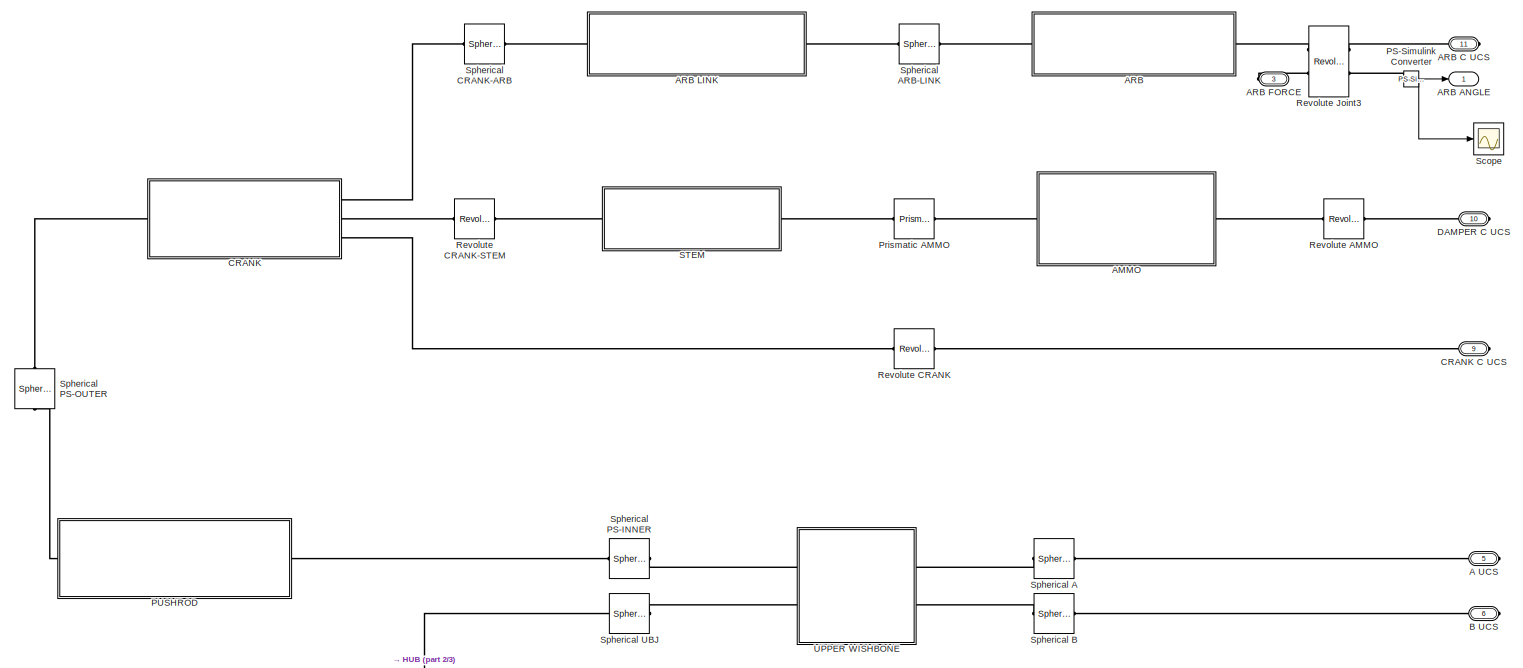
[diagram: FR SUSPENSION - part 1/3, full width, top band]
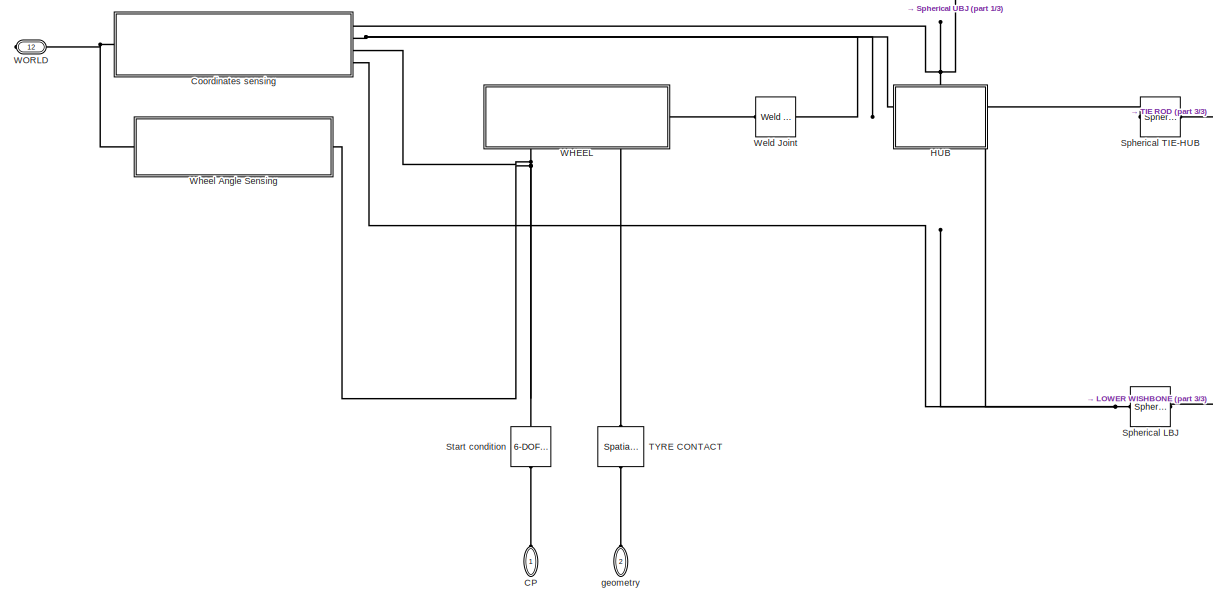
[diagram: FR SUSPENSION - part 2/3, bottom left region]
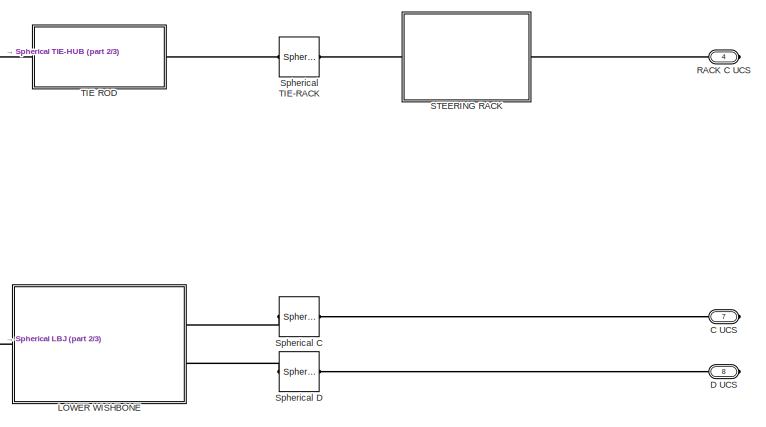
[diagram: FR SUSPENSION - part 3/3, bottom right region]
BLOCK [SubSystem] FR SUSPENSION
  Commented = on
  Ports = [0, 1, 0, 0, 0, 2, 10]
  RequestExecContextInheritance = off
BLOCK [PMIOPort] FR SUSPENSION/A UCS
  Port = 5
  Side = Right
BLOCK [SubSystem] FR SUSPENSION/AMMO
  Ports = [0, 0, 0, 0, 0, 1, 1]
  RequestExecContextInheritance = off
BLOCK [Reference] FR SUSPENSION/AMMO/AMMO  REF=sm_lib/Body Elements/Revolved Solid
  Ports = [0, 0, 0, 0, 0, 1, 1]
  SourceBlock = sm_lib/Body Elements/Revolved Solid
  SourceProductBaseCode = MS
  SourceType = Revolved Solid
BLOCK [PMIOPort] FR SUSPENSION/AMMO/AMMO TO STEM
  Side = Left
BLOCK [Reference] FR SUSPENSION/AMMO/ATTACCO AMMO  REF=sm_lib/Body Elements/Extruded Solid
  Ports = [0, 0, 0, 0, 0, 1, 1]
  SourceBlock = sm_lib/Body Elements/Extruded Solid
  SourceProductBaseCode = MS
  SourceType = Extruded Solid
BLOCK [PMIOPort] FR SUSPENSION/AMMO/WORLD
  Port = 2
  Side = Right
BLOCK [SubSystem] FR SUSPENSION/ARB
  Ports = [0, 0, 0, 0, 0, 1, 1]
  RequestExecContextInheritance = off
BLOCK [Outport] FR SUSPENSION/ARB ANGLE
BLOCK [PMIOPort] FR SUSPENSION/ARB C UCS
  Port = 11
  Side = Right
BLOCK [PMIOPort] FR SUSPENSION/ARB FORCE
  Port = 3
  Side = Right
BLOCK [SubSystem] FR SUSPENSION/ARB LINK
  Ports = [0, 0, 0, 0, 0, 1, 1]
  RequestExecContextInheritance = off
BLOCK [PMIOPort] FR SUSPENSION/ARB LINK/ARB
  Port = 2
  Side = Right
BLOCK [PMIOPort] FR SUSPENSION/ARB LINK/CRANK
  Side = Left
BLOCK [Reference] FR SUSPENSION/ARB LINK/Cylindrical Solid1  REF=sm_lib/Body Elements/Cylindrical Solid
  Ports = [0, 0, 0, 0, 0, 1, 1]
  SourceBlock = sm_lib/Body Elements/Cylindrical Solid
  SourceProductBaseCode = MS
  SourceType = Cylindrical Solid
BLOCK [Reference] FR SUSPENSION/ARB LINK/Spherical Solid  REF=sm_lib/Body Elements/Spherical Solid
  NameLocation = right
  Ports = [0, 0, 0, 0, 0, 0, 1]
  SourceBlock = sm_lib/Body Elements/Spherical Solid
  SourceProductBaseCode = MS
  SourceType = Spherical Solid
BLOCK [Reference] FR SUSPENSION/ARB LINK/Spherical Solid1  REF=sm_lib/Body Elements/Spherical Solid
  NameLocation = right
  Ports = [0, 0, 0, 0, 0, 0, 1]
  SourceBlock = sm_lib/Body Elements/Spherical Solid
  SourceProductBaseCode = MS
  SourceType = Spherical Solid
BLOCK [PMIOPort] FR SUSPENSION/ARB/ARB LINK
  Side = Right
BLOCK [Reference] FR SUSPENSION/ARB/Cylindrical Solid  REF=sm_lib/Body Elements/Cylindrical Solid
  Ports = [0, 0, 0, 0, 0, 1, 1]
  SourceBlock = sm_lib/Body Elements/Cylindrical Solid
  SourceProductBaseCode = MS
  SourceType = Cylindrical Solid
BLOCK [Reference] FR SUSPENSION/ARB/Extruded Solid  REF=sm_lib/Body Elements/Extruded Solid
  Ports = [0, 0, 0, 0, 0, 1, 1]
  SourceBlock = sm_lib/Body Elements/Extruded Solid
  SourceProductBaseCode = MS
  SourceType = Extruded Solid
BLOCK [PMIOPort] FR SUSPENSION/ARB/WORLD
  Port = 2
  Side = Left
BLOCK [PMIOPort] FR SUSPENSION/B UCS
  Port = 6
  Side = Right
BLOCK [PMIOPort] FR SUSPENSION/C UCS
  Port = 7
  Side = Right
BLOCK [PMIOPort] FR SUSPENSION/CP
  Side = Left
BLOCK [SubSystem] FR SUSPENSION/CRANK
  NameLocation = top
  Ports = [0, 0, 0, 0, 0, 1, 3]
  RequestExecContextInheritance = off
BLOCK [PMIOPort] FR SUSPENSION/CRANK C UCS
  Port = 9
  Side = Right
BLOCK [PMIOPort] FR SUSPENSION/CRANK/ARB
  Port = 2
  Side = Right
BLOCK [Reference] FR SUSPENSION/CRANK/ARB UCS  REF=sm_lib/Frames and
Transforms/Rigid
Transform
  Ports = [0, 0, 0, 0, 0, 1, 1]
  SourceBlock = sm_lib/Frames and\nTransforms/Rigid\nTransform
  SourceProductBaseCode = MS
  SourceType = Rigid\nTransform
BLOCK [Reference] FR SUSPENSION/CRANK/ARB sphere  REF=sm_lib/Body Elements/Spherical Solid
  NameLocation = left
  Ports = [0, 0, 0, 0, 0, 0, 1]
  SourceBlock = sm_lib/Body Elements/Spherical Solid
  SourceProductBaseCode = MS
  SourceType = Spherical Solid
BLOCK [PMIOPort] FR SUSPENSION/CRANK/CENTER
  Port = 4
  Side = Right
BLOCK [Reference] FR SUSPENSION/CRANK/CENTER UCS  REF=sm_lib/Frames and
Transforms/Rigid
Transform
  Ports = [0, 0, 0, 0, 0, 1, 1]
  SourceBlock = sm_lib/Frames and\nTransforms/Rigid\nTransform
  SourceProductBaseCode = MS
  SourceType = Rigid\nTransform
BLOCK [Reference] FR SUSPENSION/CRANK/CENTER sphere  REF=sm_lib/Body Elements/Spherical Solid
  NameLocation = left
  Ports = [0, 0, 0, 0, 0, 0, 1]
  SourceBlock = sm_lib/Body Elements/Spherical Solid
  SourceProductBaseCode = MS
  SourceType = Spherical Solid
BLOCK [Reference] FR SUSPENSION/CRANK/CRANK  REF=sm_lib/Body Elements/Extruded Solid
  Ports = [0, 0, 0, 0, 0, 0, 1]
  SourceBlock = sm_lib/Body Elements/Extruded Solid
  SourceProductBaseCode = MS
  SourceType = Extruded Solid
BLOCK [PMIOPort] FR SUSPENSION/CRANK/PUSHROD
  Side = Left
BLOCK [Reference] FR SUSPENSION/CRANK/PUSHROD UCS  REF=sm_lib/Frames and
Transforms/Rigid
Transform
  Ports = [0, 0, 0, 0, 0, 1, 1]
  SourceBlock = sm_lib/Frames and\nTransforms/Rigid\nTransform
  SourceProductBaseCode = MS
  SourceType = Rigid\nTransform
BLOCK [Reference] FR SUSPENSION/CRANK/PUSHROD sphere  REF=sm_lib/Body Elements/Spherical Solid
  NameLocation = left
  Ports = [0, 0, 0, 0, 0, 0, 1]
  SourceBlock = sm_lib/Body Elements/Spherical Solid
  SourceProductBaseCode = MS
  SourceType = Spherical Solid
BLOCK [PMIOPort] FR SUSPENSION/CRANK/STEM
  Port = 3
  Side = Right
BLOCK [Reference] FR SUSPENSION/CRANK/STEM UCS  REF=sm_lib/Frames and
Transforms/Rigid
Transform
  Ports = [0, 0, 0, 0, 0, 1, 1]
  SourceBlock = sm_lib/Frames and\nTransforms/Rigid\nTransform
  SourceProductBaseCode = MS
  SourceType = Rigid\nTransform
BLOCK [Reference] FR SUSPENSION/CRANK/STEM sphere  REF=sm_lib/Body Elements/Spherical Solid
  NameLocation = left
  Ports = [0, 0, 0, 0, 0, 0, 1]
  SourceBlock = sm_lib/Body Elements/Spherical Solid
  SourceProductBaseCode = MS
  SourceType = Spherical Solid
BLOCK [SubSystem] FR SUSPENSION/Coordinates sensing
  Ports = [0, 0, 0, 0, 0, 1, 4]
  RequestExecContextInheritance = off
BLOCK [PMIOPort] FR SUSPENSION/Coordinates sensing/CP
  Port = 4
  Side = Right
BLOCK [PMIOPort] FR SUSPENSION/Coordinates sensing/LBJ
  Port = 5
  Side = Right
BLOCK [Reference] FR SUSPENSION/Coordinates sensing/PS-Simulink Converter  REF=nesl_utility/PS-Simulink
Converter
  Ports = [0, 1, 0, 0, 0, 1]
  SourceBlock = nesl_utility/PS-Simulink\nConverter
  SourceProductBaseCode = SS
  SourceType = PS-Simulink\nConverter
BLOCK [Reference] FR SUSPENSION/Coordinates sensing/PS-Simulink Converter1  REF=nesl_utility/PS-Simulink
Converter
  Ports = [0, 1, 0, 0, 0, 1]
  SourceBlock = nesl_utility/PS-Simulink\nConverter
  SourceProductBaseCode = SS
  SourceType = PS-Simulink\nConverter
BLOCK [Reference] FR SUSPENSION/Coordinates sensing/PS-Simulink Converter2  REF=nesl_utility/PS-Simulink
Converter
  Ports = [0, 1, 0, 0, 0, 1]
  SourceBlock = nesl_utility/PS-Simulink\nConverter
  SourceProductBaseCode = SS
  SourceType = PS-Simulink\nConverter
BLOCK [Reference] FR SUSPENSION/Coordinates sensing/PS-Simulink Converter3  REF=nesl_utility/PS-Simulink
Converter
  Ports = [0, 1, 0, 0, 0, 1]
  SourceBlock = nesl_utility/PS-Simulink\nConverter
  SourceProductBaseCode = SS
  SourceType = PS-Simulink\nConverter
BLOCK [Reference] FR SUSPENSION/Coordinates sensing/PS-Simulink Converter4  REF=nesl_utility/PS-Simulink
Converter
  Ports = [0, 1, 0, 0, 0, 1]
  SourceBlock = nesl_utility/PS-Simulink\nConverter
  SourceProductBaseCode = SS
  SourceType = PS-Simulink\nConverter
BLOCK [Reference] FR SUSPENSION/Coordinates sensing/PS-Simulink Converter5  REF=nesl_utility/PS-Simulink
Converter
  Ports = [0, 1, 0, 0, 0, 1]
  SourceBlock = nesl_utility/PS-Simulink\nConverter
  SourceProductBaseCode = SS
  SourceType = PS-Simulink\nConverter
BLOCK [Reference] FR SUSPENSION/Coordinates sensing/PS-Simulink Converter6  REF=nesl_utility/PS-Simulink
Converter
  Ports = [0, 1, 0, 0, 0, 1]
  SourceBlock = nesl_utility/PS-Simulink\nConverter
  SourceProductBaseCode = SS
  SourceType = PS-Simulink\nConverter
BLOCK [Reference] FR SUSPENSION/Coordinates sensing/PS-Simulink Converter7  REF=nesl_utility/PS-Simulink
Converter
  Ports = [0, 1, 0, 0, 0, 1]
  SourceBlock = nesl_utility/PS-Simulink\nConverter
  SourceProductBaseCode = SS
  SourceType = PS-Simulink\nConverter
BLOCK [Scope] FR SUSPENSION/Coordinates sensing/Scope
  Floating = off
  NumInputPorts = 1
  Ports = [1]
BLOCK [Scope] FR SUSPENSION/Coordinates sensing/Scope1
  Floating = off
  NumInputPorts = 1
  Ports = [1]
BLOCK [Scope] FR SUSPENSION/Coordinates sensing/Scope2
  Floating = off
  NumInputPorts = 1
  Ports = [1]
BLOCK [Scope] FR SUSPENSION/Coordinates sensing/Scope3
  Floating = off
  NumInputPorts = 1
  Ports = [1]
BLOCK [Scope] FR SUSPENSION/Coordinates sensing/Scope4
  Floating = off
  NumInputPorts = 1
  Ports = [1]
BLOCK [Scope] FR SUSPENSION/Coordinates sensing/Scope5
  Floating = off
  NumInputPorts = 1
  Ports = [1]
BLOCK [Scope] FR SUSPENSION/Coordinates sensing/Scope6
  Floating = off
  NumInputPorts = 1
  Ports = [1]
BLOCK [Scope] FR SUSPENSION/Coordinates sensing/Scope7
  Floating = off
  NumInputPorts = 1
  Ports = [1]
BLOCK [ToWorkspace] FR SUSPENSION/Coordinates sensing/To Workspace1
  FixptAsFi = on
  MaxDataPoints = inf
  Ports = [1]
  SampleTime = -1
  SaveFormat = Timeseries
  VariableName = FR_UBJ_y
BLOCK [ToWorkspace] FR SUSPENSION/Coordinates sensing/To Workspace2
  FixptAsFi = on
  MaxDataPoints = inf
  Ports = [1]
  SampleTime = -1
  SaveFormat = Timeseries
  VariableName = FR_LBJ_y
BLOCK [ToWorkspace] FR SUSPENSION/Coordinates sensing/To Workspace3
  FixptAsFi = on
  MaxDataPoints = inf
  Ports = [1]
  SampleTime = -1
  SaveFormat = Timeseries
  VariableName = FR_CP_y
BLOCK [ToWorkspace] FR SUSPENSION/Coordinates sensing/To Workspace4
  FixptAsFi = on
  MaxDataPoints = inf
  Ports = [1]
  SampleTime = -1
  SaveFormat = Timeseries
  VariableName = FR_UBJ_z
BLOCK [ToWorkspace] FR SUSPENSION/Coordinates sensing/To Workspace5
  FixptAsFi = on
  MaxDataPoints = inf
  Ports = [1]
  SampleTime = -1
  SaveFormat = Timeseries
  VariableName = FR_LBJ_z
BLOCK [ToWorkspace] FR SUSPENSION/Coordinates sensing/To Workspace6
  FixptAsFi = on
  MaxDataPoints = inf
  Ports = [1]
  SampleTime = -1
  SaveFormat = Timeseries
  VariableName = FR_WC_y
BLOCK [ToWorkspace] FR SUSPENSION/Coordinates sensing/To Workspace7
  FixptAsFi = on
  MaxDataPoints = inf
  Ports = [1]
  SampleTime = -1
  SaveFormat = Timeseries
  VariableName = FR_WC_z
BLOCK [ToWorkspace] FR SUSPENSION/Coordinates sensing/To Workspace8
  FixptAsFi = on
  MaxDataPoints = inf
  Ports = [1]
  SampleTime = -1
  SaveFormat = Timeseries
  VariableName = FR_CP_z
BLOCK [Reference] FR SUSPENSION/Coordinates sensing/Transform Sensor  REF=sm_lib/Frames and
Transforms/Transform
Sensor
  Ports = [0, 0, 0, 0, 0, 1, 3]
  SourceBlock = sm_lib/Frames and\nTransforms/Transform\nSensor
  SourceProductBaseCode = MS
  SourceType = Transform\nSensor
BLOCK [Reference] FR SUSPENSION/Coordinates sensing/Transform Sensor1  REF=sm_lib/Frames and
Transforms/Transform
Sensor
  Ports = [0, 0, 0, 0, 0, 1, 3]
  SourceBlock = sm_lib/Frames and\nTransforms/Transform\nSensor
  SourceProductBaseCode = MS
  SourceType = Transform\nSensor
BLOCK [Reference] FR SUSPENSION/Coordinates sensing/Transform Sensor2  REF=sm_lib/Frames and
Transforms/Transform
Sensor
  Ports = [0, 0, 0, 0, 0, 1, 3]
  SourceBlock = sm_lib/Frames and\nTransforms/Transform\nSensor
  SourceProductBaseCode = MS
  SourceType = Transform\nSensor
BLOCK [Reference] FR SUSPENSION/Coordinates sensing/Transform Sensor3  REF=sm_lib/Frames and
Transforms/Transform
Sensor
  Ports = [0, 0, 0, 0, 0, 1, 3]
  SourceBlock = sm_lib/Frames and\nTransforms/Transform\nSensor
  SourceProductBaseCode = MS
  SourceType = Transform\nSensor
BLOCK [PMIOPort] FR SUSPENSION/Coordinates sensing/UBJ
  Port = 2
  Side = Right
BLOCK [PMIOPort] FR SUSPENSION/Coordinates sensing/WC
  Port = 3
  Side = Right
BLOCK [PMIOPort] FR SUSPENSION/Coordinates sensing/WORLD
  Side = Left
BLOCK [PMIOPort] FR SUSPENSION/D UCS
  Port = 8
  Side = Right
BLOCK [PMIOPort] FR SUSPENSION/DAMPER C UCS
  Port = 10
  Side = Right
BLOCK [SubSystem] FR SUSPENSION/HUB
  NameLocation = top
  Ports = [0, 0, 0, 0, 0, 2, 2]
  RequestExecContextInheritance = off
BLOCK [Reference] FR SUSPENSION/HUB/ LBJ-TIE  REF=sm_lib/Body Elements/Cylindrical Solid
  NameLocation = right
  Ports = [0, 0, 0, 0, 0, 1, 1]
  SourceBlock = sm_lib/Body Elements/Cylindrical Solid
  SourceProductBaseCode = MS
  SourceType = Cylindrical Solid
BLOCK [Reference] FR SUSPENSION/HUB/ UBJ  REF=sm_lib/Body Elements/Spherical Solid
  Ports = [0, 0, 0, 0, 0, 0, 1]
  SourceBlock = sm_lib/Body Elements/Spherical Solid
  SourceProductBaseCode = MS
  SourceType = Spherical Solid
BLOCK [Reference] FR SUSPENSION/HUB/CAMBER  REF=sm_lib/Frames and
Transforms/Rigid
Transform
  NameLocation = right
  Ports = [0, 0, 0, 0, 0, 1, 1]
  SourceBlock = sm_lib/Frames and\nTransforms/Rigid\nTransform
  SourceProductBaseCode = MS
  SourceType = Rigid\nTransform
BLOCK [Reference] FR SUSPENSION/HUB/LBJ  REF=sm_lib/Body Elements/Spherical Solid
  Ports = [0, 0, 0, 0, 0, 0, 1]
  SourceBlock = sm_lib/Body Elements/Spherical Solid
  SourceProductBaseCode = MS
  SourceType = Spherical Solid
BLOCK [PMIOPort] FR SUSPENSION/HUB/LBJ 
  Port = 4
  Side = Right
BLOCK [Reference] FR SUSPENSION/HUB/Rigid Transform  REF=sm_lib/Frames and
Transforms/Rigid
Transform
  NameLocation = left
  Ports = [0, 0, 0, 0, 0, 1, 1]
  SourceBlock = sm_lib/Frames and\nTransforms/Rigid\nTransform
  SourceProductBaseCode = MS
  SourceType = Rigid\nTransform
BLOCK [Reference] FR SUSPENSION/HUB/Rigid Transform1  REF=sm_lib/Frames and
Transforms/Rigid
Transform
  NameLocation = left
  Ports = [0, 0, 0, 0, 0, 1, 1]
  SourceBlock = sm_lib/Frames and\nTransforms/Rigid\nTransform
  SourceProductBaseCode = MS
  SourceType = Rigid\nTransform
BLOCK [PMIOPort] FR SUSPENSION/HUB/TIE
  NameLocation = left
  Port = 3
  Side = Right
BLOCK [Reference] FR SUSPENSION/HUB/TOE  REF=sm_lib/Frames and
Transforms/Rigid
Transform
  NameLocation = right
  Ports = [0, 0, 0, 0, 0, 1, 1]
  SourceBlock = sm_lib/Frames and\nTransforms/Rigid\nTransform
  SourceProductBaseCode = MS
  SourceType = Rigid\nTransform
BLOCK [PMIOPort] FR SUSPENSION/HUB/UBJ
  Port = 2
  Side = Left
BLOCK [Reference] FR SUSPENSION/HUB/UBJ_LBJ  REF=sm_lib/Body Elements/Cylindrical Solid
  NameLocation = right
  Ports = [0, 0, 0, 0, 0, 1, 1]
  SourceBlock = sm_lib/Body Elements/Cylindrical Solid
  SourceProductBaseCode = MS
  SourceType = Cylindrical Solid
BLOCK [PMIOPort] FR SUSPENSION/HUB/WC 
  NameLocation = left
  Side = Left
BLOCK [SubSystem] FR SUSPENSION/LOWER WISHBONE
  NameLocation = top
  Ports = [0, 0, 0, 0, 0, 2, 1]
  RequestExecContextInheritance = off
BLOCK [Reference] FR SUSPENSION/LOWER WISHBONE/C  REF=sm_lib/Body Elements/Spherical Solid
  NameLocation = right
  Ports = [0, 0, 0, 0, 0, 0, 1]
  SourceBlock = sm_lib/Body Elements/Spherical Solid
  SourceProductBaseCode = MS
  SourceType = Spherical Solid
BLOCK [PMIOPort] FR SUSPENSION/LOWER WISHBONE/C UCS
  Side = Left
BLOCK [Reference] FR SUSPENSION/LOWER WISHBONE/C-D  REF=sm_lib/Frames and
Transforms/Rigid
Transform
  Ports = [0, 0, 0, 0, 0, 1, 1]
  SourceBlock = sm_lib/Frames and\nTransforms/Rigid\nTransform
  SourceProductBaseCode = MS
  SourceType = Rigid\nTransform
BLOCK [Reference] FR SUSPENSION/LOWER WISHBONE/D  REF=sm_lib/Body Elements/Spherical Solid
  NameLocation = right
  Ports = [0, 0, 0, 0, 0, 0, 1]
  SourceBlock = sm_lib/Body Elements/Spherical Solid
  SourceProductBaseCode = MS
  SourceType = Spherical Solid
BLOCK [PMIOPort] FR SUSPENSION/LOWER WISHBONE/D UCS
  Port = 2
  Side = Left
BLOCK [Reference] FR SUSPENSION/LOWER WISHBONE/INNER CYL  REF=sm_lib/Body Elements/Cylindrical Solid
  NameLocation = right
  Ports = [0, 0, 0, 0, 0, 1, 1]
  SourceBlock = sm_lib/Body Elements/Cylindrical Solid
  SourceProductBaseCode = MS
  SourceType = Cylindrical Solid
BLOCK [Reference] FR SUSPENSION/LOWER WISHBONE/LBJ  REF=sm_lib/Body Elements/Spherical Solid
  Ports = [0, 0, 0, 0, 0, 0, 1]
  SourceBlock = sm_lib/Body Elements/Spherical Solid
  SourceProductBaseCode = MS
  SourceType = Spherical Solid
BLOCK [PMIOPort] FR SUSPENSION/LOWER WISHBONE/LBJ UCS
  NameLocation = right
  Port = 3
  Side = Right
BLOCK [Reference] FR SUSPENSION/LOWER WISHBONE/OUTER CYL  REF=sm_lib/Body Elements/Cylindrical Solid
  NameLocation = right
  Ports = [0, 0, 0, 0, 0, 1, 1]
  SourceBlock = sm_lib/Body Elements/Cylindrical Solid
  SourceProductBaseCode = MS
  SourceType = Cylindrical Solid
BLOCK [Reference] FR SUSPENSION/PS-Simulink Converter  REF=nesl_utility/PS-Simulink
Converter
  Ports = [0, 1, 0, 0, 0, 1]
  SourceBlock = nesl_utility/PS-Simulink\nConverter
  SourceProductBaseCode = SS
  SourceType = PS-Simulink\nConverter
BLOCK [SubSystem] FR SUSPENSION/PUSHROD
  Ports = [0, 0, 0, 0, 0, 1, 1]
  RequestExecContextInheritance = off
BLOCK [PMIOPort] FR SUSPENSION/PUSHROD/CRANK
  Side = Left
BLOCK [Reference] FR SUSPENSION/PUSHROD/Cylindrical Solid  REF=sm_lib/Body Elements/Cylindrical Solid
  Ports = [0, 0, 0, 0, 0, 1, 1]
  SourceBlock = sm_lib/Body Elements/Cylindrical Solid
  SourceProductBaseCode = MS
  SourceType = Cylindrical Solid
BLOCK [Reference] FR SUSPENSION/PUSHROD/Spherical Solid  REF=sm_lib/Body Elements/Spherical Solid
  NameLocation = top
  Ports = [0, 0, 0, 0, 0, 0, 1]
  SourceBlock = sm_lib/Body Elements/Spherical Solid
  SourceProductBaseCode = MS
  SourceType = Spherical Solid
BLOCK [Reference] FR SUSPENSION/PUSHROD/Spherical Solid1  REF=sm_lib/Body Elements/Spherical Solid
  NameLocation = top
  Ports = [0, 0, 0, 0, 0, 0, 1]
  SourceBlock = sm_lib/Body Elements/Spherical Solid
  SourceProductBaseCode = MS
  SourceType = Spherical Solid
BLOCK [PMIOPort] FR SUSPENSION/PUSHROD/UPPER WISHBONE
  Port = 2
  Side = Right
BLOCK [Reference] FR SUSPENSION/Prismatic AMMO  REF=sm_lib/Joints/Prismatic
Joint
  Ports = [0, 0, 0, 0, 0, 1, 1]
  SourceBlock = sm_lib/Joints/Prismatic\nJoint
  SourceProductBaseCode = MS
  SourceType = Prismatic\nJoint
BLOCK [PMIOPort] FR SUSPENSION/RACK C UCS
  Port = 4
  Side = Right
BLOCK [Reference] FR SUSPENSION/Revolute AMMO  REF=sm_lib/Joints/Revolute Joint
  Ports = [0, 0, 0, 0, 0, 1, 1]
  SourceBlock = sm_lib/Joints/Revolute Joint
  SourceProductBaseCode = MS
  SourceType = Revolute Joint
BLOCK [Reference] FR SUSPENSION/Revolute CRANK  REF=sm_lib/Joints/Revolute Joint
  Ports = [0, 0, 0, 0, 0, 1, 1]
  SourceBlock = sm_lib/Joints/Revolute Joint
  SourceProductBaseCode = MS
  SourceType = Revolute Joint
BLOCK [Reference] FR SUSPENSION/Revolute CRANK-STEM  REF=sm_lib/Joints/Revolute Joint
  Ports = [0, 0, 0, 0, 0, 1, 1]
  SourceBlock = sm_lib/Joints/Revolute Joint
  SourceProductBaseCode = MS
  SourceType = Revolute Joint
BLOCK [Reference] FR SUSPENSION/Revolute Joint3  REF=sm_lib/Joints/Revolute Joint
  Ports = [0, 0, 0, 0, 0, 2, 2]
  SourceBlock = sm_lib/Joints/Revolute Joint
  SourceProductBaseCode = MS
  SourceType = Revolute Joint
BLOCK [SubSystem] FR SUSPENSION/STEERING RACK
  NameLocation = top
  Ports = [0, 0, 0, 0, 0, 1, 1]
  RequestExecContextInheritance = off
BLOCK [Reference] FR SUSPENSION/STEERING RACK/Cylindrical Solid  REF=sm_lib/Body Elements/Cylindrical Solid
  Ports = [0, 0, 0, 0, 0, 1, 1]
  SourceBlock = sm_lib/Body Elements/Cylindrical Solid
  SourceProductBaseCode = MS
  SourceType = Cylindrical Solid
BLOCK [PMIOPort] FR SUSPENSION/STEERING RACK/RACK C UCS
  Side = Left
BLOCK [PMIOPort] FR SUSPENSION/STEERING RACK/RACK TIE
  Port = 2
  Side = Right
BLOCK [SubSystem] FR SUSPENSION/STEM
  Ports = [0, 0, 0, 0, 0, 1, 1]
  RequestExecContextInheritance = off
BLOCK [Reference] FR SUSPENSION/STEM/ATTACCO STEM  REF=sm_lib/Body Elements/Extruded Solid
  Ports = [0, 0, 0, 0, 0, 1, 1]
  SourceBlock = sm_lib/Body Elements/Extruded Solid
  SourceProductBaseCode = MS
  SourceType = Extruded Solid
BLOCK [Reference] FR SUSPENSION/STEM/STEM  REF=sm_lib/Body Elements/Revolved Solid
  Ports = [0, 0, 0, 0, 0, 1, 1]
  SourceBlock = sm_lib/Body Elements/Revolved Solid
  SourceProductBaseCode = MS
  SourceType = Revolved Solid
BLOCK [PMIOPort] FR SUSPENSION/STEM/STEM TO AMMO
  Port = 2
  Side = Right
BLOCK [PMIOPort] FR SUSPENSION/STEM/STEM TO CRANK
  Side = Left
BLOCK [Scope] FR SUSPENSION/Scope
  Floating = off
  NumInputPorts = 1
  Ports = [1]
  ScopeSpecificationString = Simulink.scopes.TimeScopeBlockCfg('CurrentConfiguration', extmgr.ConfigurationSet(extmgr.Configuration('Core','General UI',true),extmgr.Configuration('Core','Source UI',true),extmgr.Configuration('Sources','WiredSimulink',true,'DataLoggingVariableName','ScopeData1'),extmgr.Configuration('Visuals','Time Domain',true,'SerializedDisplays',{struct('MinYLimReal','-0.31668','MaxYLimReal','0.31411','YLab...<+1380ch>
BLOCK [Reference] FR SUSPENSION/Spherical A  REF=sm_lib/Joints/Spherical
Joint
  NameLocation = top
  Ports = [0, 0, 0, 0, 0, 1, 1]
  SourceBlock = sm_lib/Joints/Spherical\nJoint
  SourceProductBaseCode = MS
  SourceType = Spherical\nJoint
BLOCK [Reference] FR SUSPENSION/Spherical ARB-LINK  REF=sm_lib/Joints/Spherical
Joint
  Ports = [0, 0, 0, 0, 0, 1, 1]
  SourceBlock = sm_lib/Joints/Spherical\nJoint
  SourceProductBaseCode = MS
  SourceType = Spherical\nJoint
BLOCK [Reference] FR SUSPENSION/Spherical B  REF=sm_lib/Joints/Spherical
Joint
  Ports = [0, 0, 0, 0, 0, 1, 1]
  SourceBlock = sm_lib/Joints/Spherical\nJoint
  SourceProductBaseCode = MS
  SourceType = Spherical\nJoint
BLOCK [Reference] FR SUSPENSION/Spherical C  REF=sm_lib/Joints/Spherical
Joint
  NameLocation = top
  Ports = [0, 0, 0, 0, 0, 1, 1]
  SourceBlock = sm_lib/Joints/Spherical\nJoint
  SourceProductBaseCode = MS
  SourceType = Spherical\nJoint
BLOCK [Reference] FR SUSPENSION/Spherical CRANK-ARB  REF=sm_lib/Joints/Spherical
Joint
  Ports = [0, 0, 0, 0, 0, 1, 1]
  SourceBlock = sm_lib/Joints/Spherical\nJoint
  SourceProductBaseCode = MS
  SourceType = Spherical\nJoint
BLOCK [Reference] FR SUSPENSION/Spherical D  REF=sm_lib/Joints/Spherical
Joint
  Ports = [0, 0, 0, 0, 0, 1, 1]
  SourceBlock = sm_lib/Joints/Spherical\nJoint
  SourceProductBaseCode = MS
  SourceType = Spherical\nJoint
BLOCK [Reference] FR SUSPENSION/Spherical LBJ  REF=sm_lib/Joints/Spherical
Joint
  Ports = [0, 0, 0, 0, 0, 1, 1]
  SourceBlock = sm_lib/Joints/Spherical\nJoint
  SourceProductBaseCode = MS
  SourceType = Spherical\nJoint
BLOCK [Reference] FR SUSPENSION/Spherical PS-INNER  REF=sm_lib/Joints/Spherical
Joint
  NameLocation = top
  Ports = [0, 0, 0, 0, 0, 1, 1]
  SourceBlock = sm_lib/Joints/Spherical\nJoint
  SourceProductBaseCode = MS
  SourceType = Spherical\nJoint
BLOCK [Reference] FR SUSPENSION/Spherical PS-OUTER  REF=sm_lib/Joints/Spherical
Joint
  NameLocation = left
  Ports = [0, 0, 0, 0, 0, 1, 1]
  SourceBlock = sm_lib/Joints/Spherical\nJoint
  SourceProductBaseCode = MS
  SourceType = Spherical\nJoint
BLOCK [Reference] FR SUSPENSION/Spherical TIE-HUB  REF=sm_lib/Joints/Spherical
Joint
  Ports = [0, 0, 0, 0, 0, 1, 1]
  SourceBlock = sm_lib/Joints/Spherical\nJoint
  SourceProductBaseCode = MS
  SourceType = Spherical\nJoint
BLOCK [Reference] FR SUSPENSION/Spherical TIE-RACK  REF=sm_lib/Joints/Spherical
Joint
  Ports = [0, 0, 0, 0, 0, 1, 1]
  SourceBlock = sm_lib/Joints/Spherical\nJoint
  SourceProductBaseCode = MS
  SourceType = Spherical\nJoint
BLOCK [Reference] FR SUSPENSION/Spherical UBJ  REF=sm_lib/Joints/Spherical
Joint
  Ports = [0, 0, 0, 0, 0, 1, 1]
  SourceBlock = sm_lib/Joints/Spherical\nJoint
  SourceProductBaseCode = MS
  SourceType = Spherical\nJoint
BLOCK [Reference] FR SUSPENSION/Start condition  REF=sm_lib/Joints/6-DOF Joint
  NameLocation = left
  Ports = [0, 0, 0, 0, 0, 1, 1]
  SourceBlock = sm_lib/Joints/6-DOF Joint
  SourceProductBaseCode = MS
  SourceType = 6-DOF Joint
BLOCK [SubSystem] FR SUSPENSION/TIE ROD
  Ports = [0, 0, 0, 0, 0, 1, 1]
  RequestExecContextInheritance = off
BLOCK [Reference] FR SUSPENSION/TIE ROD/Cylindrical Solid  REF=sm_lib/Body Elements/Cylindrical Solid
  Ports = [0, 0, 0, 0, 0, 1, 1]
  SourceBlock = sm_lib/Body Elements/Cylindrical Solid
  SourceProductBaseCode = MS
  SourceType = Cylindrical Solid
BLOCK [Reference] FR SUSPENSION/TIE ROD/Spherical Solid  REF=sm_lib/Body Elements/Spherical Solid
  NameLocation = top
  Ports = [0, 0, 0, 0, 0, 0, 1]
  SourceBlock = sm_lib/Body Elements/Spherical Solid
  SourceProductBaseCode = MS
  SourceType = Spherical Solid
BLOCK [Reference] FR SUSPENSION/TIE ROD/Spherical Solid1  REF=sm_lib/Body Elements/Spherical Solid
  NameLocation = top
  Ports = [0, 0, 0, 0, 0, 0, 1]
  SourceBlock = sm_lib/Body Elements/Spherical Solid
  SourceProductBaseCode = MS
  SourceType = Spherical Solid
BLOCK [PMIOPort] FR SUSPENSION/TIE ROD/TIE HUB
  Side = Left
BLOCK [PMIOPort] FR SUSPENSION/TIE ROD/TIE RACK
  Port = 2
  Side = Right
BLOCK [Reference] FR SUSPENSION/TYRE CONTACT  REF=sm_lib/Forces and
Torques/Spatial
Contact Force
  NameLocation = right
  Ports = [0, 0, 0, 0, 0, 1, 1]
  SourceBlock = sm_lib/Forces and\nTorques/Spatial\nContact Force
  SourceProductBaseCode = MS
  SourceType = Spatial\nContact Force
BLOCK [SubSystem] FR SUSPENSION/UPPER WISHBONE
  NameLocation = top
  Ports = [0, 0, 0, 0, 0, 2, 2]
  RequestExecContextInheritance = off
BLOCK [Reference] FR SUSPENSION/UPPER WISHBONE/A  REF=sm_lib/Body Elements/Spherical Solid
  NameLocation = right
  Ports = [0, 0, 0, 0, 0, 0, 1]
  SourceBlock = sm_lib/Body Elements/Spherical Solid
  SourceProductBaseCode = MS
  SourceType = Spherical Solid
BLOCK [PMIOPort] FR SUSPENSION/UPPER WISHBONE/A UCS
  Side = Left
BLOCK [Reference] FR SUSPENSION/UPPER WISHBONE/AAAAAA  REF=sm_lib/Frames and
Transforms/Rigid
Transform
  Ports = [0, 0, 0, 0, 0, 1, 1]
  SourceBlock = sm_lib/Frames and\nTransforms/Rigid\nTransform
  SourceProductName = Multibody
  SourceType = Rigid\nTransform
BLOCK [Reference] FR SUSPENSION/UPPER WISHBONE/A_B  REF=sm_lib/Frames and
Transforms/Rigid
Transform
  Ports = [0, 0, 0, 0, 0, 1, 1]
  SourceBlock = sm_lib/Frames and\nTransforms/Rigid\nTransform
  SourceProductName = Multibody
  SourceType = Rigid\nTransform
BLOCK [Reference] FR SUSPENSION/UPPER WISHBONE/B  REF=sm_lib/Body Elements/Spherical Solid
  NameLocation = right
  Ports = [0, 0, 0, 0, 0, 0, 1]
  SourceBlock = sm_lib/Body Elements/Spherical Solid
  SourceProductBaseCode = MS
  SourceType = Spherical Solid
BLOCK [PMIOPort] FR SUSPENSION/UPPER WISHBONE/B UCS
  Port = 2
  Side = Left
BLOCK [Reference] FR SUSPENSION/UPPER WISHBONE/B1  REF=sm_lib/Body Elements/Spherical Solid
  NameLocation = left
  Ports = [0, 0, 0, 0, 0, 0, 1]
  SourceBlock = sm_lib/Body Elements/Spherical Solid
  SourceProductBaseCode = MS
  SourceType = Spherical Solid
BLOCK [Reference] FR SUSPENSION/UPPER WISHBONE/INNER CYL  REF=sm_lib/Body Elements/Cylindrical Solid
  NameLocation = right
  Ports = [0, 0, 0, 0, 0, 1, 1]
  SourceBlock = sm_lib/Body Elements/Cylindrical Solid
  SourceProductBaseCode = MS
  SourceType = Cylindrical Solid
BLOCK [Reference] FR SUSPENSION/UPPER WISHBONE/OUTER CYL  REF=sm_lib/Body Elements/Cylindrical Solid
  NameLocation = right
  Ports = [0, 0, 0, 0, 0, 1, 1]
  SourceBlock = sm_lib/Body Elements/Cylindrical Solid
  SourceProductBaseCode = MS
  SourceType = Cylindrical Solid
BLOCK [PMIOPort] FR SUSPENSION/UPPER WISHBONE/PUSHROD UCS
  NameLocation = top
  Port = 3
  Side = Right
BLOCK [PMIOPort] FR SUSPENSION/UPPER WISHBONE/UBJ UCS
  NameLocation = right
  Port = 4
  Side = Right
BLOCK [SubSystem] FR SUSPENSION/WHEEL
  NameLocation = top
  Ports = [0, 0, 0, 0, 0, 1, 2]
  RequestExecContextInheritance = off
BLOCK [PMIOPort] FR SUSPENSION/WHEEL/CP REAL
  Port = 3
  Side = Right
BLOCK [PMIOPort] FR SUSPENSION/WHEEL/Contact Sphere
  NameLocation = top
  Port = 2
  Side = Right
BLOCK [Reference] FR SUSPENSION/WHEEL/Revolved Solid  REF=sm_lib/Body Elements/Revolved Solid
  Commented = on
  Ports = [0, 0, 0, 0, 0, 1]
  SourceBlock = sm_lib/Body Elements/Revolved Solid
  SourceProductBaseCode = MS
  SourceType = Revolved Solid
BLOCK [Reference] FR SUSPENSION/WHEEL/Rigid Transform  REF=sm_lib/Frames and
Transforms/Rigid
Transform
  Ports = [0, 0, 0, 0, 0, 1, 1]
  SourceBlock = sm_lib/Frames and\nTransforms/Rigid\nTransform
  SourceProductBaseCode = MS
  SourceType = Rigid\nTransform
BLOCK [Reference] FR SUSPENSION/WHEEL/Spherical Solid  REF=sm_lib/Body Elements/Spherical Solid
  Commented = on
  NameLocation = top
  Ports = [0, 0, 0, 0, 0, 1, 1]
  SourceBlock = sm_lib/Body Elements/Spherical Solid
  SourceProductBaseCode = MS
  SourceType = Spherical Solid
BLOCK [Reference] FR SUSPENSION/WHEEL/TIRE  REF=sm_lib/Body Elements/File Solid
  Ports = [0, 0, 0, 0, 0, 1, 1]
  SourceBlock = sm_lib/Body Elements/File Solid
  SourceProductBaseCode = MS
  SourceType = File Solid
BLOCK [PMIOPort] FR SUSPENSION/WHEEL/WC
  Side = Left
BLOCK [PMIOPort] FR SUSPENSION/WORLD
  Port = 12
  Side = Right
BLOCK [Reference] FR SUSPENSION/Weld Joint  REF=sm_lib/Joints/Weld Joint
  Ports = [0, 0, 0, 0, 0, 1, 1]
  SourceBlock = sm_lib/Joints/Weld Joint
  SourceProductBaseCode = MS
  SourceType = Weld Joint
BLOCK [SubSystem] FR SUSPENSION/Wheel Angle Sensing
  Ports = [0, 0, 0, 0, 0, 1, 1]
  RequestExecContextInheritance = off
BLOCK [Gain] FR SUSPENSION/Wheel Angle Sensing/Gain1
  Gain = -1
BLOCK [Reference] FR SUSPENSION/Wheel Angle Sensing/PS-Simulink Converter  REF=nesl_utility/PS-Simulink
Converter
  Ports = [0, 1, 0, 0, 0, 1]
  SourceBlock = nesl_utility/PS-Simulink\nConverter
  SourceProductBaseCode = SS
  SourceType = PS-Simulink\nConverter
BLOCK [Reference] FR SUSPENSION/Wheel Angle Sensing/PS-Simulink Converter1  REF=nesl_utility/PS-Simulink
Converter
  Ports = [0, 1, 0, 0, 0, 1]
  SourceBlock = nesl_utility/PS-Simulink\nConverter
  SourceProductBaseCode = SS
  SourceType = PS-Simulink\nConverter
BLOCK [Reference] FR SUSPENSION/Wheel Angle Sensing/PS-Simulink Converter2  REF=nesl_utility/PS-Simulink
Converter
  Ports = [0, 1, 0, 0, 0, 1]
  SourceBlock = nesl_utility/PS-Simulink\nConverter
  SourceProductBaseCode = SS
  SourceType = PS-Simulink\nConverter
BLOCK [Reference] FR SUSPENSION/Wheel Angle Sensing/PS-Simulink Converter3  REF=nesl_utility/PS-Simulink
Converter
  Ports = [0, 1, 0, 0, 0, 1]
  SourceBlock = nesl_utility/PS-Simulink\nConverter
  SourceProductBaseCode = SS
  SourceType = PS-Simulink\nConverter
BLOCK [Product] FR SUSPENSION/Wheel Angle Sensing/Product
  Ports = [2, 1]
BLOCK [Product] FR SUSPENSION/Wheel Angle Sensing/Product1
  Ports = [2, 1]
BLOCK [Scope] FR SUSPENSION/Wheel Angle Sensing/Scope
  Floating = off
  NumInputPorts = 1
  Ports = [1]
  ScopeSpecificationString = Simulink.scopes.TimeScopeBlockCfg('CurrentConfiguration', extmgr.ConfigurationSet(extmgr.Configuration('Core','General UI',true),extmgr.Configuration('Core','Source UI',true),extmgr.Configuration('Sources','WiredSimulink',true,'DataLoggingVariableName','ScopeData1'),extmgr.Configuration('Visuals','Time Domain',true,'SerializedDisplays',{struct('MinYLimReal','-0.99777','MaxYLimReal','0.96553','YLab...<+1421ch>
BLOCK [Scope] FR SUSPENSION/Wheel Angle Sensing/Scope1
  Floating = off
  NumInputPorts = 1
  Ports = [1]
BLOCK [Selector] FR SUSPENSION/Wheel Angle Sensing/Selector
  IndexOptions = Index vector (dialog)
  Indices = [1]
  InputPortWidth = 3
  OutputSizes = 1
  Ports = [1, 1]
BLOCK [Selector] FR SUSPENSION/Wheel Angle Sensing/Selector1
  IndexOptions = Index vector (dialog)
  Indices = [3]
  InputPortWidth = 3
  OutputSizes = 1
  Ports = [1, 1]
BLOCK [ToWorkspace] FR SUSPENSION/Wheel Angle Sensing/To Workspace
  FixptAsFi = on
  MaxDataPoints = inf
  Ports = [1]
  SampleTime = -1
  SaveFormat = Timeseries
  VariableName = FR_camber
BLOCK [ToWorkspace] FR SUSPENSION/Wheel Angle Sensing/To Workspace1
  FixptAsFi = on
  MaxDataPoints = inf
  Ports = [1]
  SampleTime = -1
  SaveFormat = Timeseries
  VariableName = FR_toe
BLOCK [Reference] FR SUSPENSION/Wheel Angle Sensing/Transform Sensor  REF=sm_lib/Frames and
Transforms/Transform
Sensor
  Ports = [0, 0, 0, 0, 0, 1, 3]
  SourceBlock = sm_lib/Frames and\nTransforms/Transform\nSensor
  SourceProductBaseCode = MS
  SourceType = Transform\nSensor
BLOCK [Reference] FR SUSPENSION/Wheel Angle Sensing/Transform Sensor1  REF=sm_lib/Frames and
Transforms/Transform
Sensor
  Ports = [0, 0, 0, 0, 0, 1, 3]
  SourceBlock = sm_lib/Frames and\nTransforms/Transform\nSensor
  SourceProductBaseCode = MS
  SourceType = Transform\nSensor
BLOCK [PMIOPort] FR SUSPENSION/Wheel Angle Sensing/WHEEL
  Side = Left
BLOCK [PMIOPort] FR SUSPENSION/Wheel Angle Sensing/WORLD
  NameLocation = left
  Port = 2
  Side = Right
BLOCK [PMIOPort] FR SUSPENSION/geometry
  NameLocation = left
  Port = 2
  Side = Left
BLOCK [SubSystem] RL SUSPENSION
  Commented = on
  PortSchema = {"entries":[{"content":{"sides":[{"content":{"connectorIds":["LConn1","LConn2"]},"type":"ConnectorPlacement.EquallySpacedRectSide","uuid":"871081ea-2c24-4d21-832e-5640a25161e2"},{"content":{"connectorIds":["RConn1","RConn2","RConn3","RConn4","RConn5","RConn6","RConn7","RConn8","RConn9","Out1"],"side":"RIGHT"},"type":"ConnectorPlacement.EquallySpacedRectSide","uuid":"a664e2f3-4231-4f74-b53f-ae4988c...<+477ch>
  Ports = [0, 1, 0, 0, 0, 2, 9]
  RequestExecContextInheritance = off
BLOCK [PMIOPort] RL SUSPENSION/A UCS
  Port = 3
  Side = Right
BLOCK [SubSystem] RL SUSPENSION/AMMO
  Ports = [0, 0, 0, 0, 0, 1, 1]
  RequestExecContextInheritance = off
BLOCK [Reference] RL SUSPENSION/AMMO/AMMO  REF=sm_lib/Body Elements/Revolved Solid
  Ports = [0, 0, 0, 0, 0, 1, 1]
  SourceBlock = sm_lib/Body Elements/Revolved Solid
  SourceProductBaseCode = MS
  SourceType = Revolved Solid
BLOCK [Reference] RL SUSPENSION/AMMO/ATTACCO AMMO  REF=sm_lib/Body Elements/Extruded Solid
  Ports = [0, 0, 0, 0, 0, 1, 1]
  SourceBlock = sm_lib/Body Elements/Extruded Solid
  SourceProductBaseCode = MS
  SourceType = Extruded Solid
BLOCK [PMIOPort] RL SUSPENSION/AMMO/STEM
  Side = Left
BLOCK [PMIOPort] RL SUSPENSION/AMMO/WORLD
  Port = 2
  Side = Right
BLOCK [SubSystem] RL SUSPENSION/ARB
  Ports = [0, 0, 0, 0, 0, 1, 1]
  RequestExecContextInheritance = off
BLOCK [Outport] RL SUSPENSION/ARB ANGLE
BLOCK [PMIOPort] RL SUSPENSION/ARB C UCS
  Port = 9
  Side = Right
BLOCK [PMIOPort] RL SUSPENSION/ARB FORCE
  Port = 11
  Side = Right
BLOCK [SubSystem] RL SUSPENSION/ARB LINK
  Ports = [0, 0, 0, 0, 0, 1, 1]
  RequestExecContextInheritance = off
BLOCK [Reference] RL SUSPENSION/ARB LINK/Cylindrical Solid1  REF=sm_lib/Body Elements/Cylindrical Solid
  Ports = [0, 0, 0, 0, 0, 1, 1]
  SourceBlock = sm_lib/Body Elements/Cylindrical Solid
  SourceProductBaseCode = MS
  SourceType = Cylindrical Solid
BLOCK [PMIOPort] RL SUSPENSION/ARB LINK/Cylindrical Solid2
  Side = Left
BLOCK [Reference] RL SUSPENSION/ARB LINK/Spherical Solid  REF=sm_lib/Body Elements/Spherical Solid
  NameLocation = right
  Ports = [0, 0, 0, 0, 0, 0, 1]
  SourceBlock = sm_lib/Body Elements/Spherical Solid
  SourceProductBaseCode = MS
  SourceType = Spherical Solid
BLOCK [Reference] RL SUSPENSION/ARB LINK/Spherical Solid1  REF=sm_lib/Body Elements/Spherical Solid
  NameLocation = right
  Ports = [0, 0, 0, 0, 0, 0, 1]
  SourceBlock = sm_lib/Body Elements/Spherical Solid
  SourceProductBaseCode = MS
  SourceType = Spherical Solid
BLOCK [PMIOPort] RL SUSPENSION/ARB LINK/Spherical Solid2
  Port = 2
  Side = Right
BLOCK [PMIOPort] RL SUSPENSION/ARB/ARB LINK
  Side = Right
BLOCK [Reference] RL SUSPENSION/ARB/Cylindrical Solid  REF=sm_lib/Body Elements/Cylindrical Solid
  Ports = [0, 0, 0, 0, 0, 1, 1]
  SourceBlock = sm_lib/Body Elements/Cylindrical Solid
  SourceProductBaseCode = MS
  SourceType = Cylindrical Solid
BLOCK [Reference] RL SUSPENSION/ARB/Extruded Solid  REF=sm_lib/Body Elements/Extruded Solid
  Ports = [0, 0, 0, 0, 0, 1, 1]
  SourceBlock = sm_lib/Body Elements/Extruded Solid
  SourceProductBaseCode = MS
  SourceType = Extruded Solid
BLOCK [PMIOPort] RL SUSPENSION/ARB/WORLD
  Port = 2
  Side = Left
BLOCK [PMIOPort] RL SUSPENSION/B UCS
  Port = 4
  Side = Right
BLOCK [PMIOPort] RL SUSPENSION/C UCS
  Port = 5
  Side = Right
BLOCK [PMIOPort] RL SUSPENSION/CP
  NameLocation = left
  Port = 2
  Side = Left
BLOCK [SubSystem] RL SUSPENSION/CRANK
  NameLocation = top
  Ports = [0, 0, 0, 0, 0, 1, 3]
  RequestExecContextInheritance = off
BLOCK [PMIOPort] RL SUSPENSION/CRANK C UCS
  Port = 7
  Side = Right
BLOCK [PMIOPort] RL SUSPENSION/CRANK/ARB
  Port = 2
  Side = Right
BLOCK [Reference] RL SUSPENSION/CRANK/ARB UCS  REF=sm_lib/Frames and
Transforms/Rigid
Transform
  Ports = [0, 0, 0, 0, 0, 1, 1]
  SourceBlock = sm_lib/Frames and\nTransforms/Rigid\nTransform
  SourceProductBaseCode = MS
  SourceType = Rigid\nTransform
BLOCK [Reference] RL SUSPENSION/CRANK/ARB sphere  REF=sm_lib/Body Elements/Spherical Solid
  NameLocation = left
  Ports = [0, 0, 0, 0, 0, 0, 1]
  SourceBlock = sm_lib/Body Elements/Spherical Solid
  SourceProductBaseCode = MS
  SourceType = Spherical Solid
BLOCK [PMIOPort] RL SUSPENSION/CRANK/CENTER
  Port = 4
  Side = Right
BLOCK [Reference] RL SUSPENSION/CRANK/CENTER UCS  REF=sm_lib/Frames and
Transforms/Rigid
Transform
  Ports = [0, 0, 0, 0, 0, 1, 1]
  SourceBlock = sm_lib/Frames and\nTransforms/Rigid\nTransform
  SourceProductBaseCode = MS
  SourceType = Rigid\nTransform
BLOCK [Reference] RL SUSPENSION/CRANK/CENTER sphere  REF=sm_lib/Body Elements/Spherical Solid
  NameLocation = left
  Ports = [0, 0, 0, 0, 0, 0, 1]
  SourceBlock = sm_lib/Body Elements/Spherical Solid
  SourceProductBaseCode = MS
  SourceType = Spherical Solid
BLOCK [Reference] RL SUSPENSION/CRANK/CRANK  REF=sm_lib/Body Elements/Extruded Solid
  Ports = [0, 0, 0, 0, 0, 0, 1]
  SourceBlock = sm_lib/Body Elements/Extruded Solid
  SourceProductBaseCode = MS
  SourceType = Extruded Solid
BLOCK [PMIOPort] RL SUSPENSION/CRANK/PUSHROD
  Side = Left
BLOCK [Reference] RL SUSPENSION/CRANK/PUSHROD UCS  REF=sm_lib/Frames and
Transforms/Rigid
Transform
  Ports = [0, 0, 0, 0, 0, 1, 1]
  SourceBlock = sm_lib/Frames and\nTransforms/Rigid\nTransform
  SourceProductBaseCode = MS
  SourceType = Rigid\nTransform
BLOCK [Reference] RL SUSPENSION/CRANK/PUSHROD sphere  REF=sm_lib/Body Elements/Spherical Solid
  NameLocation = left
  Ports = [0, 0, 0, 0, 0, 0, 1]
  SourceBlock = sm_lib/Body Elements/Spherical Solid
  SourceProductBaseCode = MS
  SourceType = Spherical Solid
BLOCK [PMIOPort] RL SUSPENSION/CRANK/STEM
  Port = 3
  Side = Right
BLOCK [Reference] RL SUSPENSION/CRANK/STEM UCS  REF=sm_lib/Frames and
Transforms/Rigid
Transform
  Ports = [0, 0, 0, 0, 0, 1, 1]
  SourceBlock = sm_lib/Frames and\nTransforms/Rigid\nTransform
  SourceProductBaseCode = MS
  SourceType = Rigid\nTransform
BLOCK [Reference] RL SUSPENSION/CRANK/STEM sphere  REF=sm_lib/Body Elements/Spherical Solid
  NameLocation = left
  Ports = [0, 0, 0, 0, 0, 0, 1]
  SourceBlock = sm_lib/Body Elements/Spherical Solid
  SourceProductBaseCode = MS
  SourceType = Spherical Solid
BLOCK [SubSystem] RL SUSPENSION/Coordinates sensing
  Ports = [0, 0, 0, 0, 0, 1, 4]
  RequestExecContextInheritance = off
BLOCK [PMIOPort] RL SUSPENSION/Coordinates sensing/CP
  Port = 4
  Side = Right
BLOCK [PMIOPort] RL SUSPENSION/Coordinates sensing/LBJ
  Port = 5
  Side = Right
BLOCK [Reference] RL SUSPENSION/Coordinates sensing/PS-Simulink Converter  REF=nesl_utility/PS-Simulink
Converter
  Ports = [0, 1, 0, 0, 0, 1]
  SourceBlock = nesl_utility/PS-Simulink\nConverter
  SourceProductBaseCode = SS
  SourceType = PS-Simulink\nConverter
BLOCK [Reference] RL SUSPENSION/Coordinates sensing/PS-Simulink Converter1  REF=nesl_utility/PS-Simulink
Converter
  Ports = [0, 1, 0, 0, 0, 1]
  SourceBlock = nesl_utility/PS-Simulink\nConverter
  SourceProductBaseCode = SS
  SourceType = PS-Simulink\nConverter
BLOCK [Reference] RL SUSPENSION/Coordinates sensing/PS-Simulink Converter2  REF=nesl_utility/PS-Simulink
Converter
  Ports = [0, 1, 0, 0, 0, 1]
  SourceBlock = nesl_utility/PS-Simulink\nConverter
  SourceProductBaseCode = SS
  SourceType = PS-Simulink\nConverter
BLOCK [Reference] RL SUSPENSION/Coordinates sensing/PS-Simulink Converter3  REF=nesl_utility/PS-Simulink
Converter
  Ports = [0, 1, 0, 0, 0, 1]
  SourceBlock = nesl_utility/PS-Simulink\nConverter
  SourceProductBaseCode = SS
  SourceType = PS-Simulink\nConverter
BLOCK [Reference] RL SUSPENSION/Coordinates sensing/PS-Simulink Converter4  REF=nesl_utility/PS-Simulink
Converter
  Ports = [0, 1, 0, 0, 0, 1]
  SourceBlock = nesl_utility/PS-Simulink\nConverter
  SourceProductBaseCode = SS
  SourceType = PS-Simulink\nConverter
BLOCK [Reference] RL SUSPENSION/Coordinates sensing/PS-Simulink Converter5  REF=nesl_utility/PS-Simulink
Converter
  Ports = [0, 1, 0, 0, 0, 1]
  SourceBlock = nesl_utility/PS-Simulink\nConverter
  SourceProductBaseCode = SS
  SourceType = PS-Simulink\nConverter
BLOCK [Reference] RL SUSPENSION/Coordinates sensing/PS-Simulink Converter6  REF=nesl_utility/PS-Simulink
Converter
  Ports = [0, 1, 0, 0, 0, 1]
  SourceBlock = nesl_utility/PS-Simulink\nConverter
  SourceProductBaseCode = SS
  SourceType = PS-Simulink\nConverter
BLOCK [Reference] RL SUSPENSION/Coordinates sensing/PS-Simulink Converter7  REF=nesl_utility/PS-Simulink
Converter
  Ports = [0, 1, 0, 0, 0, 1]
  SourceBlock = nesl_utility/PS-Simulink\nConverter
  SourceProductBaseCode = SS
  SourceType = PS-Simulink\nConverter
BLOCK [Scope] RL SUSPENSION/Coordinates sensing/Scope
  Floating = off
  NumInputPorts = 1
  Ports = [1]
BLOCK [Scope] RL SUSPENSION/Coordinates sensing/Scope1
  Floating = off
  NumInputPorts = 1
  Ports = [1]
BLOCK [Scope] RL SUSPENSION/Coordinates sensing/Scope2
  Floating = off
  NumInputPorts = 1
  Ports = [1]
BLOCK [Scope] RL SUSPENSION/Coordinates sensing/Scope3
  Floating = off
  NumInputPorts = 1
  Ports = [1]
BLOCK [Scope] RL SUSPENSION/Coordinates sensing/Scope4
  Floating = off
  NumInputPorts = 1
  Ports = [1]
BLOCK [Scope] RL SUSPENSION/Coordinates sensing/Scope5
  Floating = off
  NumInputPorts = 1
  Ports = [1]
BLOCK [Scope] RL SUSPENSION/Coordinates sensing/Scope6
  Floating = off
  NumInputPorts = 1
  Ports = [1]
BLOCK [Scope] RL SUSPENSION/Coordinates sensing/Scope7
  Floating = off
  NumInputPorts = 1
  Ports = [1]
BLOCK [ToWorkspace] RL SUSPENSION/Coordinates sensing/To Workspace1
  FixptAsFi = on
  MaxDataPoints = inf
  Ports = [1]
  SampleTime = -1
  SaveFormat = Timeseries
  VariableName = RL_UBJ_y
BLOCK [ToWorkspace] RL SUSPENSION/Coordinates sensing/To Workspace2
  FixptAsFi = on
  MaxDataPoints = inf
  Ports = [1]
  SampleTime = -1
  SaveFormat = Timeseries
  VariableName = RL_LBJ_y
BLOCK [ToWorkspace] RL SUSPENSION/Coordinates sensing/To Workspace3
  FixptAsFi = on
  MaxDataPoints = inf
  Ports = [1]
  SampleTime = -1
  SaveFormat = Timeseries
  VariableName = RL_CP_y
BLOCK [ToWorkspace] RL SUSPENSION/Coordinates sensing/To Workspace4
  FixptAsFi = on
  MaxDataPoints = inf
  Ports = [1]
  SampleTime = -1
  SaveFormat = Timeseries
  VariableName = RL_UBJ_z
BLOCK [ToWorkspace] RL SUSPENSION/Coordinates sensing/To Workspace5
  FixptAsFi = on
  MaxDataPoints = inf
  Ports = [1]
  SampleTime = -1
  SaveFormat = Timeseries
  VariableName = RL_LBJ_z
BLOCK [ToWorkspace] RL SUSPENSION/Coordinates sensing/To Workspace6
  FixptAsFi = on
  MaxDataPoints = inf
  Ports = [1]
  SampleTime = -1
  SaveFormat = Timeseries
  VariableName = RL_WC_y
BLOCK [ToWorkspace] RL SUSPENSION/Coordinates sensing/To Workspace7
  FixptAsFi = on
  MaxDataPoints = inf
  Ports = [1]
  SampleTime = -1
  SaveFormat = Timeseries
  VariableName = RL_WC_z
BLOCK [ToWorkspace] RL SUSPENSION/Coordinates sensing/To Workspace8
  FixptAsFi = on
  MaxDataPoints = inf
  Ports = [1]
  SampleTime = -1
  SaveFormat = Timeseries
  VariableName = RL_CP_z
BLOCK [Reference] RL SUSPENSION/Coordinates sensing/Transform Sensor  REF=sm_lib/Frames and
Transforms/Transform
Sensor
  Ports = [0, 0, 0, 0, 0, 1, 3]
  SourceBlock = sm_lib/Frames and\nTransforms/Transform\nSensor
  SourceProductBaseCode = MS
  SourceType = Transform\nSensor
BLOCK [Reference] RL SUSPENSION/Coordinates sensing/Transform Sensor1  REF=sm_lib/Frames and
Transforms/Transform
Sensor
  Ports = [0, 0, 0, 0, 0, 1, 3]
  SourceBlock = sm_lib/Frames and\nTransforms/Transform\nSensor
  SourceProductBaseCode = MS
  SourceType = Transform\nSensor
BLOCK [Reference] RL SUSPENSION/Coordinates sensing/Transform Sensor2  REF=sm_lib/Frames and
Transforms/Transform
Sensor
  Ports = [0, 0, 0, 0, 0, 1, 3]
  SourceBlock = sm_lib/Frames and\nTransforms/Transform\nSensor
  SourceProductBaseCode = MS
  SourceType = Transform\nSensor
BLOCK [Reference] RL SUSPENSION/Coordinates sensing/Transform Sensor3  REF=sm_lib/Frames and
Transforms/Transform
Sensor
  Ports = [0, 0, 0, 0, 0, 1, 3]
  SourceBlock = sm_lib/Frames and\nTransforms/Transform\nSensor
  SourceProductBaseCode = MS
  SourceType = Transform\nSensor
BLOCK [PMIOPort] RL SUSPENSION/Coordinates sensing/UBJ
  Port = 2
  Side = Right
BLOCK [PMIOPort] RL SUSPENSION/Coordinates sensing/WC
  Port = 3
  Side = Right
BLOCK [PMIOPort] RL SUSPENSION/Coordinates sensing/WORLD
  Side = Left
BLOCK [PMIOPort] RL SUSPENSION/D UCS
  Port = 6
  Side = Right
BLOCK [PMIOPort] RL SUSPENSION/DAMPER C UCS
  Port = 8
  Side = Right
BLOCK [SubSystem] RL SUSPENSION/HUB
  NameLocation = top
  Ports = [0, 0, 0, 0, 0, 2, 2]
  RequestExecContextInheritance = off
BLOCK [Reference] RL SUSPENSION/HUB/ LBJ-TIE  REF=sm_lib/Body Elements/Cylindrical Solid
  NameLocation = right
  Ports = [0, 0, 0, 0, 0, 1, 1]
  SourceBlock = sm_lib/Body Elements/Cylindrical Solid
  SourceProductBaseCode = MS
  SourceType = Cylindrical Solid
BLOCK [Reference] RL SUSPENSION/HUB/ UBJ  REF=sm_lib/Body Elements/Spherical Solid
  Ports = [0, 0, 0, 0, 0, 0, 1]
  SourceBlock = sm_lib/Body Elements/Spherical Solid
  SourceProductBaseCode = MS
  SourceType = Spherical Solid
BLOCK [Reference] RL SUSPENSION/HUB/CAMBER  REF=sm_lib/Frames and
Transforms/Rigid
Transform
  NameLocation = right
  Ports = [0, 0, 0, 0, 0, 1, 1]
  SourceBlock = sm_lib/Frames and\nTransforms/Rigid\nTransform
  SourceProductBaseCode = MS
  SourceType = Rigid\nTransform
BLOCK [Reference] RL SUSPENSION/HUB/LBJ  REF=sm_lib/Body Elements/Spherical Solid
  Ports = [0, 0, 0, 0, 0, 0, 1]
  SourceBlock = sm_lib/Body Elements/Spherical Solid
  SourceProductBaseCode = MS
  SourceType = Spherical Solid
BLOCK [PMIOPort] RL SUSPENSION/HUB/LBJ 
  Port = 4
  Side = Right
BLOCK [Reference] RL SUSPENSION/HUB/Rigid Transform  REF=sm_lib/Frames and
Transforms/Rigid
Transform
  NameLocation = left
  Ports = [0, 0, 0, 0, 0, 1, 1]
  SourceBlock = sm_lib/Frames and\nTransforms/Rigid\nTransform
  SourceProductBaseCode = MS
  SourceType = Rigid\nTransform
BLOCK [Reference] RL SUSPENSION/HUB/Rigid Transform1  REF=sm_lib/Frames and
Transforms/Rigid
Transform
  NameLocation = left
  Ports = [0, 0, 0, 0, 0, 1, 1]
  SourceBlock = sm_lib/Frames and\nTransforms/Rigid\nTransform
  SourceProductBaseCode = MS
  SourceType = Rigid\nTransform
BLOCK [PMIOPort] RL SUSPENSION/HUB/TIE
  NameLocation = left
  Port = 3
  Side = Right
BLOCK [Reference] RL SUSPENSION/HUB/TOE  REF=sm_lib/Frames and
Transforms/Rigid
Transform
  NameLocation = right
  Ports = [0, 0, 0, 0, 0, 1, 1]
  SourceBlock = sm_lib/Frames and\nTransforms/Rigid\nTransform
  SourceProductBaseCode = MS
  SourceType = Rigid\nTransform
BLOCK [PMIOPort] RL SUSPENSION/HUB/UBJ
  Port = 2
  Side = Left
BLOCK [Reference] RL SUSPENSION/HUB/UBJ-LBJ  REF=sm_lib/Body Elements/Cylindrical Solid
  NameLocation = right
  Ports = [0, 0, 0, 0, 0, 1, 1]
  SourceBlock = sm_lib/Body Elements/Cylindrical Solid
  SourceProductBaseCode = MS
  SourceType = Cylindrical Solid
BLOCK [PMIOPort] RL SUSPENSION/HUB/WC 
  NameLocation = left
  Side = Left
BLOCK [SubSystem] RL SUSPENSION/LOWER WISHBONE
  PortSchema = {"entries":[{"content":{"sides":[{"content":{"connectorIds":["LConn1","LConn2"]},"type":"ConnectorPlacement.EquallySpacedRectSide","uuid":"b77072e6-4f53-4efa-913a-264540dc49fc"},{"content":{"connectorIds":["RConn1"],"side":"RIGHT"},"type":"ConnectorPlacement.EquallySpacedRectSide","uuid":"f99e7e73-c5c8-4897-8fef-23f8244e4540"},{"content":{"connectorIds":["LConn3"],"side":"TOP"},"type":"ConnectorPl...<+406ch>
  Ports = [0, 0, 0, 0, 0, 3, 1]
  RequestExecContextInheritance = off
BLOCK [Reference] RL SUSPENSION/LOWER WISHBONE/AAAAAA1  REF=sm_lib/Frames and
Transforms/Rigid
Transform
  Ports = [0, 0, 0, 0, 0, 1, 1]
  SourceBlock = sm_lib/Frames and\nTransforms/Rigid\nTransform
  SourceProductName = Multibody
  SourceType = Rigid\nTransform
BLOCK [Reference] RL SUSPENSION/LOWER WISHBONE/C  REF=sm_lib/Body Elements/Spherical Solid
  NameLocation = right
  Ports = [0, 0, 0, 0, 0, 0, 1]
  SourceBlock = sm_lib/Body Elements/Spherical Solid
  SourceProductBaseCode = MS
  SourceType = Spherical Solid
BLOCK [PMIOPort] RL SUSPENSION/LOWER WISHBONE/C UCS
  Side = Left
BLOCK [Reference] RL SUSPENSION/LOWER WISHBONE/D  REF=sm_lib/Body Elements/Spherical Solid
  NameLocation = right
  Ports = [0, 0, 0, 0, 0, 0, 1]
  SourceBlock = sm_lib/Body Elements/Spherical Solid
  SourceProductBaseCode = MS
  SourceType = Spherical Solid
BLOCK [PMIOPort] RL SUSPENSION/LOWER WISHBONE/D UCS
  Port = 2
  Side = Left
BLOCK [Reference] RL SUSPENSION/LOWER WISHBONE/INNER CYL  REF=sm_lib/Body Elements/Cylindrical Solid
  NameLocation = right
  Ports = [0, 0, 0, 0, 0, 1, 1]
  SourceBlock = sm_lib/Body Elements/Cylindrical Solid
  SourceProductBaseCode = MS
  SourceType = Cylindrical Solid
BLOCK [Reference] RL SUSPENSION/LOWER WISHBONE/LBJ  REF=sm_lib/Body Elements/Spherical Solid
  Ports = [0, 0, 0, 0, 0, 0, 1]
  SourceBlock = sm_lib/Body Elements/Spherical Solid
  SourceProductBaseCode = MS
  SourceType = Spherical Solid
BLOCK [PMIOPort] RL SUSPENSION/LOWER WISHBONE/LBJ UCS
  NameLocation = right
  Port = 4
  Side = Right
BLOCK [Reference] RL SUSPENSION/LOWER WISHBONE/OUTER CYL  REF=sm_lib/Body Elements/Cylindrical Solid
  NameLocation = right
  Ports = [0, 0, 0, 0, 0, 1, 1]
  SourceBlock = sm_lib/Body Elements/Cylindrical Solid
  SourceProductBaseCode = MS
  SourceType = Cylindrical Solid
BLOCK [Reference] RL SUSPENSION/LOWER WISHBONE/Rigid Transform  REF=sm_lib/Frames and
Transforms/Rigid
Transform
  Ports = [0, 0, 0, 0, 0, 1, 1]
  SourceBlock = sm_lib/Frames and\nTransforms/Rigid\nTransform
  SourceProductBaseCode = MS
  SourceType = Rigid\nTransform
BLOCK [PMIOPort] RL SUSPENSION/LOWER WISHBONE/TIE IN
  NameLocation = right
  Port = 3
  Side = Left
BLOCK [Reference] RL SUSPENSION/PS-Simulink Converter  REF=nesl_utility/PS-Simulink
Converter
  Ports = [0, 1, 0, 0, 0, 1]
  SourceBlock = nesl_utility/PS-Simulink\nConverter
  SourceProductBaseCode = SS
  SourceType = PS-Simulink\nConverter
BLOCK [SubSystem] RL SUSPENSION/PUSHROD
  Ports = [0, 0, 0, 0, 0, 1, 1]
  RequestExecContextInheritance = off
BLOCK [PMIOPort] RL SUSPENSION/PUSHROD/CRANK
  Side = Left
BLOCK [Reference] RL SUSPENSION/PUSHROD/Cylindrical Solid  REF=sm_lib/Body Elements/Cylindrical Solid
  Ports = [0, 0, 0, 0, 0, 1, 1]
  SourceBlock = sm_lib/Body Elements/Cylindrical Solid
  SourceProductBaseCode = MS
  SourceType = Cylindrical Solid
BLOCK [Reference] RL SUSPENSION/PUSHROD/Spherical Solid  REF=sm_lib/Body Elements/Spherical Solid
  NameLocation = top
  Ports = [0, 0, 0, 0, 0, 0, 1]
  SourceBlock = sm_lib/Body Elements/Spherical Solid
  SourceProductBaseCode = MS
  SourceType = Spherical Solid
BLOCK [Reference] RL SUSPENSION/PUSHROD/Spherical Solid1  REF=sm_lib/Body Elements/Spherical Solid
  NameLocation = top
  Ports = [0, 0, 0, 0, 0, 0, 1]
  SourceBlock = sm_lib/Body Elements/Spherical Solid
  SourceProductBaseCode = MS
  SourceType = Spherical Solid
BLOCK [PMIOPort] RL SUSPENSION/PUSHROD/UPPER WISHBONE
  Port = 2
  Side = Right
BLOCK [Reference] RL SUSPENSION/Prismatic AMMO  REF=sm_lib/Joints/Prismatic
Joint
  Ports = [0, 0, 0, 0, 0, 1, 1]
  SourceBlock = sm_lib/Joints/Prismatic\nJoint
  SourceProductBaseCode = MS
  SourceType = Prismatic\nJoint
BLOCK [Reference] RL SUSPENSION/Revolute AMMO  REF=sm_lib/Joints/Revolute Joint
  Ports = [0, 0, 0, 0, 0, 1, 1]
  SourceBlock = sm_lib/Joints/Revolute Joint
  SourceProductBaseCode = MS
  SourceType = Revolute Joint
BLOCK [Reference] RL SUSPENSION/Revolute CRANK  REF=sm_lib/Joints/Revolute Joint
  Ports = [0, 0, 0, 0, 0, 1, 1]
  SourceBlock = sm_lib/Joints/Revolute Joint
  SourceProductBaseCode = MS
  SourceType = Revolute Joint
BLOCK [Reference] RL SUSPENSION/Revolute CRANK-AMMO  REF=sm_lib/Joints/Revolute Joint
  Ports = [0, 0, 0, 0, 0, 1, 1]
  SourceBlock = sm_lib/Joints/Revolute Joint
  SourceProductBaseCode = MS
  SourceType = Revolute Joint
BLOCK [Reference] RL SUSPENSION/Revolute Joint3  REF=sm_lib/Joints/Revolute Joint
  Ports = [0, 0, 0, 0, 0, 2, 2]
  SourceBlock = sm_lib/Joints/Revolute Joint
  SourceProductBaseCode = MS
  SourceType = Revolute Joint
BLOCK [SubSystem] RL SUSPENSION/STEM
  Ports = [0, 0, 0, 0, 0, 1, 1]
  RequestExecContextInheritance = off
BLOCK [Reference] RL SUSPENSION/STEM/ATTACCO STEM  REF=sm_lib/Body Elements/Extruded Solid
  Ports = [0, 0, 0, 0, 0, 1, 1]
  SourceBlock = sm_lib/Body Elements/Extruded Solid
  SourceProductBaseCode = MS
  SourceType = Extruded Solid
BLOCK [Reference] RL SUSPENSION/STEM/STEM  REF=sm_lib/Body Elements/Revolved Solid
  Ports = [0, 0, 0, 0, 0, 1, 1]
  SourceBlock = sm_lib/Body Elements/Revolved Solid
  SourceProductBaseCode = MS
  SourceType = Revolved Solid
BLOCK [PMIOPort] RL SUSPENSION/STEM/STEM TO AMMO
  Port = 2
  Side = Right
BLOCK [PMIOPort] RL SUSPENSION/STEM/STEM TO CRANK
  Side = Left
BLOCK [Reference] RL SUSPENSION/Spherical A  REF=sm_lib/Joints/Spherical
Joint
  NameLocation = top
  Ports = [0, 0, 0, 0, 0, 1, 1]
  SourceBlock = sm_lib/Joints/Spherical\nJoint
  SourceProductBaseCode = MS
  SourceType = Spherical\nJoint
BLOCK [Reference] RL SUSPENSION/Spherical ARB-LINK  REF=sm_lib/Joints/Spherical
Joint
  Ports = [0, 0, 0, 0, 0, 1, 1]
  SourceBlock = sm_lib/Joints/Spherical\nJoint
  SourceProductBaseCode = MS
  SourceType = Spherical\nJoint
BLOCK [Reference] RL SUSPENSION/Spherical B  REF=sm_lib/Joints/Spherical
Joint
  Ports = [0, 0, 0, 0, 0, 1, 1]
  SourceBlock = sm_lib/Joints/Spherical\nJoint
  SourceProductBaseCode = MS
  SourceType = Spherical\nJoint
BLOCK [Reference] RL SUSPENSION/Spherical C  REF=sm_lib/Joints/Spherical
Joint
  NameLocation = top
  Ports = [0, 0, 0, 0, 0, 1, 1]
  SourceBlock = sm_lib/Joints/Spherical\nJoint
  SourceProductBaseCode = MS
  SourceType = Spherical\nJoint
BLOCK [Reference] RL SUSPENSION/Spherical CRANK-ARB  REF=sm_lib/Joints/Spherical
Joint
  Ports = [0, 0, 0, 0, 0, 1, 1]
  SourceBlock = sm_lib/Joints/Spherical\nJoint
  SourceProductBaseCode = MS
  SourceType = Spherical\nJoint
BLOCK [Reference] RL SUSPENSION/Spherical D  REF=sm_lib/Joints/Spherical
Joint
  Ports = [0, 0, 0, 0, 0, 1, 1]
  SourceBlock = sm_lib/Joints/Spherical\nJoint
  SourceProductBaseCode = MS
  SourceType = Spherical\nJoint
BLOCK [Reference] RL SUSPENSION/Spherical LBJ  REF=sm_lib/Joints/Spherical
Joint
  Ports = [0, 0, 0, 0, 0, 1, 1]
  SourceBlock = sm_lib/Joints/Spherical\nJoint
  SourceProductBaseCode = MS
  SourceType = Spherical\nJoint
BLOCK [Reference] RL SUSPENSION/Spherical PS-INNER  REF=sm_lib/Joints/Spherical
Joint
  NameLocation = top
  Ports = [0, 0, 0, 0, 0, 1, 1]
  SourceBlock = sm_lib/Joints/Spherical\nJoint
  SourceProductBaseCode = MS
  SourceType = Spherical\nJoint
BLOCK [Reference] RL SUSPENSION/Spherical PS-OUTER  REF=sm_lib/Joints/Spherical
Joint
  NameLocation = left
  Ports = [0, 0, 0, 0, 0, 1, 1]
  SourceBlock = sm_lib/Joints/Spherical\nJoint
  SourceProductBaseCode = MS
  SourceType = Spherical\nJoint
BLOCK [Reference] RL SUSPENSION/Spherical TIE-INNER  REF=sm_lib/Joints/Spherical
Joint
  Ports = [0, 0, 0, 0, 0, 1, 1]
  SourceBlock = sm_lib/Joints/Spherical\nJoint
  SourceProductBaseCode = MS
  SourceType = Spherical\nJoint
BLOCK [Reference] RL SUSPENSION/Spherical TIE-OUTER  REF=sm_lib/Joints/Spherical
Joint
  Ports = [0, 0, 0, 0, 0, 1, 1]
  SourceBlock = sm_lib/Joints/Spherical\nJoint
  SourceProductBaseCode = MS
  SourceType = Spherical\nJoint
BLOCK [Reference] RL SUSPENSION/Spherical UBJ  REF=sm_lib/Joints/Spherical
Joint
  Ports = [0, 0, 0, 0, 0, 1, 1]
  SourceBlock = sm_lib/Joints/Spherical\nJoint
  SourceProductBaseCode = MS
  SourceType = Spherical\nJoint
BLOCK [Reference] RL SUSPENSION/Start condition  REF=sm_lib/Joints/6-DOF Joint
  NameLocation = left
  Ports = [0, 0, 0, 0, 0, 1, 1]
  SourceBlock = sm_lib/Joints/6-DOF Joint
  SourceProductBaseCode = MS
  SourceType = 6-DOF Joint
BLOCK [SubSystem] RL SUSPENSION/TIE ROD
  Ports = [0, 0, 0, 0, 0, 1, 1]
  RequestExecContextInheritance = off
BLOCK [Reference] RL SUSPENSION/TIE ROD/Cylindrical Solid  REF=sm_lib/Body Elements/Cylindrical Solid
  Ports = [0, 0, 0, 0, 0, 1, 1]
  SourceBlock = sm_lib/Body Elements/Cylindrical Solid
  SourceProductBaseCode = MS
  SourceType = Cylindrical Solid
BLOCK [Reference] RL SUSPENSION/TIE ROD/Spherical Solid  REF=sm_lib/Body Elements/Spherical Solid
  NameLocation = top
  Ports = [0, 0, 0, 0, 0, 0, 1]
  SourceBlock = sm_lib/Body Elements/Spherical Solid
  SourceProductBaseCode = MS
  SourceType = Spherical Solid
BLOCK [Reference] RL SUSPENSION/TIE ROD/Spherical Solid1  REF=sm_lib/Body Elements/Spherical Solid
  NameLocation = top
  Ports = [0, 0, 0, 0, 0, 0, 1]
  SourceBlock = sm_lib/Body Elements/Spherical Solid
  SourceProductBaseCode = MS
  SourceType = Spherical Solid
BLOCK [PMIOPort] RL SUSPENSION/TIE ROD/TIE HUB
  Side = Left
BLOCK [PMIOPort] RL SUSPENSION/TIE ROD/TIE RACK
  Port = 2
  Side = Right
BLOCK [Reference] RL SUSPENSION/TYRE CONTACT  REF=sm_lib/Forces and
Torques/Spatial
Contact Force
  NameLocation = right
  Ports = [0, 0, 0, 0, 0, 1, 1]
  SourceBlock = sm_lib/Forces and\nTorques/Spatial\nContact Force
  SourceProductBaseCode = MS
  SourceType = Spatial\nContact Force
BLOCK [SubSystem] RL SUSPENSION/UPPER WISHBONE
  NameLocation = top
  Ports = [0, 0, 0, 0, 0, 2, 2]
  RequestExecContextInheritance = off
BLOCK [Reference] RL SUSPENSION/UPPER WISHBONE/A  REF=sm_lib/Body Elements/Spherical Solid
  NameLocation = right
  Ports = [0, 0, 0, 0, 0, 0, 1]
  SourceBlock = sm_lib/Body Elements/Spherical Solid
  SourceProductBaseCode = MS
  SourceType = Spherical Solid
BLOCK [PMIOPort] RL SUSPENSION/UPPER WISHBONE/A UCS
  Side = Left
BLOCK [Reference] RL SUSPENSION/UPPER WISHBONE/AAAAAA  REF=sm_lib/Frames and
Transforms/Rigid
Transform
  Ports = [0, 0, 0, 0, 0, 1, 1]
  SourceBlock = sm_lib/Frames and\nTransforms/Rigid\nTransform
  SourceProductName = Multibody
  SourceType = Rigid\nTransform
BLOCK [Reference] RL SUSPENSION/UPPER WISHBONE/A_B  REF=sm_lib/Frames and
Transforms/Rigid
Transform
  Ports = [0, 0, 0, 0, 0, 1, 1]
  SourceBlock = sm_lib/Frames and\nTransforms/Rigid\nTransform
  SourceProductName = Multibody
  SourceType = Rigid\nTransform
BLOCK [Reference] RL SUSPENSION/UPPER WISHBONE/B  REF=sm_lib/Body Elements/Spherical Solid
  NameLocation = right
  Ports = [0, 0, 0, 0, 0, 0, 1]
  SourceBlock = sm_lib/Body Elements/Spherical Solid
  SourceProductBaseCode = MS
  SourceType = Spherical Solid
BLOCK [PMIOPort] RL SUSPENSION/UPPER WISHBONE/B UCS
  Port = 2
  Side = Left
BLOCK [Reference] RL SUSPENSION/UPPER WISHBONE/B1  REF=sm_lib/Body Elements/Spherical Solid
  NameLocation = left
  Ports = [0, 0, 0, 0, 0, 0, 1]
  SourceBlock = sm_lib/Body Elements/Spherical Solid
  SourceProductBaseCode = MS
  SourceType = Spherical Solid
BLOCK [Reference] RL SUSPENSION/UPPER WISHBONE/INNER CYL  REF=sm_lib/Body Elements/Cylindrical Solid
  NameLocation = right
  Ports = [0, 0, 0, 0, 0, 1, 1]
  SourceBlock = sm_lib/Body Elements/Cylindrical Solid
  SourceProductBaseCode = MS
  SourceType = Cylindrical Solid
BLOCK [Reference] RL SUSPENSION/UPPER WISHBONE/OUTER CYL  REF=sm_lib/Body Elements/Cylindrical Solid
  NameLocation = right
  Ports = [0, 0, 0, 0, 0, 1, 1]
  SourceBlock = sm_lib/Body Elements/Cylindrical Solid
  SourceProductBaseCode = MS
  SourceType = Cylindrical Solid
BLOCK [PMIOPort] RL SUSPENSION/UPPER WISHBONE/PUSHROD UCS
  NameLocation = top
  Port = 3
  Side = Right
BLOCK [PMIOPort] RL SUSPENSION/UPPER WISHBONE/UBJ UCS
  NameLocation = right
  Port = 4
  Side = Right
BLOCK [SubSystem] RL SUSPENSION/WHEEL
  NameLocation = top
  Ports = [0, 0, 0, 0, 0, 1, 2]
  RequestExecContextInheritance = off
BLOCK [PMIOPort] RL SUSPENSION/WHEEL/CP REAL
  Port = 3
  Side = Right
BLOCK [PMIOPort] RL SUSPENSION/WHEEL/Contact Sphere
  Port = 2
  Side = Right
BLOCK [Reference] RL SUSPENSION/WHEEL/Revolved Solid  REF=sm_lib/Body Elements/Revolved Solid
  Commented = on
  Ports = [0, 0, 0, 0, 0, 1]
  SourceBlock = sm_lib/Body Elements/Revolved Solid
  SourceProductBaseCode = MS
  SourceType = Revolved Solid
BLOCK [Reference] RL SUSPENSION/WHEEL/Spherical Solid  REF=sm_lib/Body Elements/Spherical Solid
  Commented = on
  NameLocation = top
  Ports = [0, 0, 0, 0, 0, 1, 1]
  SourceBlock = sm_lib/Body Elements/Spherical Solid
  SourceProductBaseCode = MS
  SourceType = Spherical Solid
BLOCK [Reference] RL SUSPENSION/WHEEL/TIRE  REF=sm_lib/Body Elements/File Solid
  Ports = [0, 0, 0, 0, 0, 1, 1]
  SourceBlock = sm_lib/Body Elements/File Solid
  SourceProductBaseCode = MS
  SourceType = File Solid
BLOCK [PMIOPort] RL SUSPENSION/WHEEL/WC
  Side = Left
BLOCK [Reference] RL SUSPENSION/WHEEL/WC-CP  REF=sm_lib/Frames and
Transforms/Rigid
Transform
  Ports = [0, 0, 0, 0, 0, 1, 1]
  SourceBlock = sm_lib/Frames and\nTransforms/Rigid\nTransform
  SourceProductBaseCode = MS
  SourceType = Rigid\nTransform
BLOCK [PMIOPort] RL SUSPENSION/WORLD
  Port = 10
  Side = Right
BLOCK [Reference] RL SUSPENSION/Weld Joint  REF=sm_lib/Joints/Weld Joint
  Ports = [0, 0, 0, 0, 0, 1, 1]
  SourceBlock = sm_lib/Joints/Weld Joint
  SourceProductBaseCode = MS
  SourceType = Weld Joint
BLOCK [SubSystem] RL SUSPENSION/Wheel Angle Sensing
  Ports = [0, 0, 0, 0, 0, 1, 1]
  RequestExecContextInheritance = off
BLOCK [Gain] RL SUSPENSION/Wheel Angle Sensing/Gain
  Gain = -1
BLOCK [Reference] RL SUSPENSION/Wheel Angle Sensing/PS-Simulink Converter  REF=nesl_utility/PS-Simulink
Converter
  Ports = [0, 1, 0, 0, 0, 1]
  SourceBlock = nesl_utility/PS-Simulink\nConverter
  SourceProductBaseCode = SS
  SourceType = PS-Simulink\nConverter
BLOCK [Reference] RL SUSPENSION/Wheel Angle Sensing/PS-Simulink Converter1  REF=nesl_utility/PS-Simulink
Converter
  Ports = [0, 1, 0, 0, 0, 1]
  SourceBlock = nesl_utility/PS-Simulink\nConverter
  SourceProductBaseCode = SS
  SourceType = PS-Simulink\nConverter
BLOCK [Reference] RL SUSPENSION/Wheel Angle Sensing/PS-Simulink Converter2  REF=nesl_utility/PS-Simulink
Converter
  Ports = [0, 1, 0, 0, 0, 1]
  SourceBlock = nesl_utility/PS-Simulink\nConverter
  SourceProductBaseCode = SS
  SourceType = PS-Simulink\nConverter
BLOCK [Reference] RL SUSPENSION/Wheel Angle Sensing/PS-Simulink Converter3  REF=nesl_utility/PS-Simulink
Converter
  Ports = [0, 1, 0, 0, 0, 1]
  SourceBlock = nesl_utility/PS-Simulink\nConverter
  SourceProductBaseCode = SS
  SourceType = PS-Simulink\nConverter
BLOCK [Product] RL SUSPENSION/Wheel Angle Sensing/Product
  Ports = [2, 1]
BLOCK [Product] RL SUSPENSION/Wheel Angle Sensing/Product1
  Ports = [2, 1]
BLOCK [Scope] RL SUSPENSION/Wheel Angle Sensing/Scope
  Floating = off
  NumInputPorts = 1
  Ports = [1]
  ScopeSpecificationString = Simulink.scopes.TimeScopeBlockCfg('CurrentConfiguration', extmgr.ConfigurationSet(extmgr.Configuration('Core','General UI',true),extmgr.Configuration('Core','Source UI',true),extmgr.Configuration('Sources','WiredSimulink',true,'DataLoggingVariableName','ScopeData1'),extmgr.Configuration('Visuals','Time Domain',true,'SerializedDisplays',{struct('MinYLimReal','-0.18479','MaxYLimReal','-0.18121','YLa...<+1448ch>
BLOCK [Scope] RL SUSPENSION/Wheel Angle Sensing/Scope1
  Floating = off
  NumInputPorts = 1
  Ports = [1]
BLOCK [Selector] RL SUSPENSION/Wheel Angle Sensing/Selector
  IndexOptions = Index vector (dialog)
  Indices = [1]
  InputPortWidth = 3
  OutputSizes = 1
  Ports = [1, 1]
BLOCK [Selector] RL SUSPENSION/Wheel Angle Sensing/Selector1
  IndexOptions = Index vector (dialog)
  Indices = [3]
  InputPortWidth = 3
  OutputSizes = 1
  Ports = [1, 1]
BLOCK [ToWorkspace] RL SUSPENSION/Wheel Angle Sensing/To Workspace
  FixptAsFi = on
  MaxDataPoints = inf
  Ports = [1]
  SampleTime = -1
  SaveFormat = Timeseries
  VariableName = RL_camber
BLOCK [ToWorkspace] RL SUSPENSION/Wheel Angle Sensing/To Workspace1
  FixptAsFi = on
  MaxDataPoints = inf
  Ports = [1]
  SampleTime = -1
  SaveFormat = Timeseries
  VariableName = RL_toe
BLOCK [Reference] RL SUSPENSION/Wheel Angle Sensing/Transform Sensor  REF=sm_lib/Frames and
Transforms/Transform
Sensor
  Ports = [0, 0, 0, 0, 0, 1, 3]
  SourceBlock = sm_lib/Frames and\nTransforms/Transform\nSensor
  SourceProductBaseCode = MS
  SourceType = Transform\nSensor
BLOCK [Reference] RL SUSPENSION/Wheel Angle Sensing/Transform Sensor1  REF=sm_lib/Frames and
Transforms/Transform
Sensor
  Ports = [0, 0, 0, 0, 0, 1, 3]
  SourceBlock = sm_lib/Frames and\nTransforms/Transform\nSensor
  SourceProductBaseCode = MS
  SourceType = Transform\nSensor
BLOCK [PMIOPort] RL SUSPENSION/Wheel Angle Sensing/WHEEL
  Side = Left
BLOCK [PMIOPort] RL SUSPENSION/Wheel Angle Sensing/WORLD
  NameLocation = left
  Port = 2
  Side = Right
BLOCK [PMIOPort] RL SUSPENSION/geometry
  NameLocation = left
  Side = Left
BLOCK [SubSystem] RR SUSPENSION
  Commented = on
  PortSchema = {"entries":[{"content":{"sides":[{"content":{"connectorIds":["LConn1","LConn2"]},"type":"ConnectorPlacement.EquallySpacedRectSide","uuid":"871081ea-2c24-4d21-832e-5640a25161e2"},{"content":{"connectorIds":["RConn1","RConn2","RConn3","RConn4","RConn5","RConn6","RConn7","RConn8","RConn9","Out1"],"side":"RIGHT"},"type":"ConnectorPlacement.EquallySpacedRectSide","uuid":"a664e2f3-4231-4f74-b53f-ae4988c...<+477ch>
  Ports = [0, 1, 0, 0, 0, 2, 9]
  RequestExecContextInheritance = off
BLOCK [PMIOPort] RR SUSPENSION/A UCS
  Port = 3
  Side = Right
BLOCK [SubSystem] RR SUSPENSION/AMMO
  Ports = [0, 0, 0, 0, 0, 1, 1]
  RequestExecContextInheritance = off
BLOCK [Reference] RR SUSPENSION/AMMO/AMMO  REF=sm_lib/Body Elements/Revolved Solid
  Ports = [0, 0, 0, 0, 0, 1, 1]
  SourceBlock = sm_lib/Body Elements/Revolved Solid
  SourceProductBaseCode = MS
  SourceType = Revolved Solid
BLOCK [Reference] RR SUSPENSION/AMMO/ATTACCO AMMO  REF=sm_lib/Body Elements/Extruded Solid
  Ports = [0, 0, 0, 0, 0, 1, 1]
  SourceBlock = sm_lib/Body Elements/Extruded Solid
  SourceProductBaseCode = MS
  SourceType = Extruded Solid
BLOCK [PMIOPort] RR SUSPENSION/AMMO/STEM
  Side = Left
BLOCK [PMIOPort] RR SUSPENSION/AMMO/WORLD
  Port = 2
  Side = Right
BLOCK [SubSystem] RR SUSPENSION/ARB
  Ports = [0, 0, 0, 0, 0, 1, 1]
  RequestExecContextInheritance = off
BLOCK [Outport] RR SUSPENSION/ARB ANGLE
BLOCK [PMIOPort] RR SUSPENSION/ARB C UCS
  Port = 9
  Side = Right
BLOCK [PMIOPort] RR SUSPENSION/ARB FORCE
  Port = 11
  Side = Right
BLOCK [SubSystem] RR SUSPENSION/ARB LINK
  Ports = [0, 0, 0, 0, 0, 1, 1]
  RequestExecContextInheritance = off
BLOCK [PMIOPort] RR SUSPENSION/ARB LINK/ARB
  Port = 2
  Side = Right
BLOCK [PMIOPort] RR SUSPENSION/ARB LINK/CRANK
  Side = Left
BLOCK [Reference] RR SUSPENSION/ARB LINK/Cylindrical Solid1  REF=sm_lib/Body Elements/Cylindrical Solid
  Ports = [0, 0, 0, 0, 0, 1, 1]
  SourceBlock = sm_lib/Body Elements/Cylindrical Solid
  SourceProductBaseCode = MS
  SourceType = Cylindrical Solid
BLOCK [Reference] RR SUSPENSION/ARB LINK/Spherical Solid  REF=sm_lib/Body Elements/Spherical Solid
  NameLocation = right
  Ports = [0, 0, 0, 0, 0, 0, 1]
  SourceBlock = sm_lib/Body Elements/Spherical Solid
  SourceProductBaseCode = MS
  SourceType = Spherical Solid
BLOCK [Reference] RR SUSPENSION/ARB LINK/Spherical Solid1  REF=sm_lib/Body Elements/Spherical Solid
  NameLocation = right
  Ports = [0, 0, 0, 0, 0, 0, 1]
  SourceBlock = sm_lib/Body Elements/Spherical Solid
  SourceProductBaseCode = MS
  SourceType = Spherical Solid
BLOCK [PMIOPort] RR SUSPENSION/ARB/ARB LINK
  Side = Right
BLOCK [Reference] RR SUSPENSION/ARB/Cylindrical Solid  REF=sm_lib/Body Elements/Cylindrical Solid
  Ports = [0, 0, 0, 0, 0, 1, 1]
  SourceBlock = sm_lib/Body Elements/Cylindrical Solid
  SourceProductBaseCode = MS
  SourceType = Cylindrical Solid
BLOCK [Reference] RR SUSPENSION/ARB/Extruded Solid  REF=sm_lib/Body Elements/Extruded Solid
  Ports = [0, 0, 0, 0, 0, 1, 1]
  SourceBlock = sm_lib/Body Elements/Extruded Solid
  SourceProductBaseCode = MS
  SourceType = Extruded Solid
BLOCK [PMIOPort] RR SUSPENSION/ARB/WORLD
  Port = 2
  Side = Left
BLOCK [PMIOPort] RR SUSPENSION/B UCS
  Port = 4
  Side = Right
BLOCK [PMIOPort] RR SUSPENSION/C UCS
  Port = 5
  Side = Right
BLOCK [PMIOPort] RR SUSPENSION/CP
  NameLocation = left
  Port = 2
  Side = Left
BLOCK [SubSystem] RR SUSPENSION/CRANK
  NameLocation = top
  Ports = [0, 0, 0, 0, 0, 1, 3]
  RequestExecContextInheritance = off
BLOCK [PMIOPort] RR SUSPENSION/CRANK C UCS
  Port = 7
  Side = Right
BLOCK [PMIOPort] RR SUSPENSION/CRANK/ARB
  Port = 2
  Side = Right
BLOCK [Reference] RR SUSPENSION/CRANK/ARB UCS  REF=sm_lib/Frames and
Transforms/Rigid
Transform
  Ports = [0, 0, 0, 0, 0, 1, 1]
  SourceBlock = sm_lib/Frames and\nTransforms/Rigid\nTransform
  SourceProductBaseCode = MS
  SourceType = Rigid\nTransform
BLOCK [Reference] RR SUSPENSION/CRANK/ARB sphere  REF=sm_lib/Body Elements/Spherical Solid
  NameLocation = left
  Ports = [0, 0, 0, 0, 0, 0, 1]
  SourceBlock = sm_lib/Body Elements/Spherical Solid
  SourceProductBaseCode = MS
  SourceType = Spherical Solid
BLOCK [PMIOPort] RR SUSPENSION/CRANK/CENTER
  Port = 4
  Side = Right
BLOCK [Reference] RR SUSPENSION/CRANK/CENTER UCS  REF=sm_lib/Frames and
Transforms/Rigid
Transform
  Ports = [0, 0, 0, 0, 0, 1, 1]
  SourceBlock = sm_lib/Frames and\nTransforms/Rigid\nTransform
  SourceProductBaseCode = MS
  SourceType = Rigid\nTransform
BLOCK [Reference] RR SUSPENSION/CRANK/CENTER sphere  REF=sm_lib/Body Elements/Spherical Solid
  NameLocation = left
  Ports = [0, 0, 0, 0, 0, 0, 1]
  SourceBlock = sm_lib/Body Elements/Spherical Solid
  SourceProductBaseCode = MS
  SourceType = Spherical Solid
BLOCK [Reference] RR SUSPENSION/CRANK/CRANK  REF=sm_lib/Body Elements/Extruded Solid
  Ports = [0, 0, 0, 0, 0, 0, 1]
  SourceBlock = sm_lib/Body Elements/Extruded Solid
  SourceProductBaseCode = MS
  SourceType = Extruded Solid
BLOCK [PMIOPort] RR SUSPENSION/CRANK/PUSHROD
  Side = Left
BLOCK [Reference] RR SUSPENSION/CRANK/PUSHROD UCS  REF=sm_lib/Frames and
Transforms/Rigid
Transform
  Ports = [0, 0, 0, 0, 0, 1, 1]
  SourceBlock = sm_lib/Frames and\nTransforms/Rigid\nTransform
  SourceProductBaseCode = MS
  SourceType = Rigid\nTransform
BLOCK [Reference] RR SUSPENSION/CRANK/PUSHROD sphere  REF=sm_lib/Body Elements/Spherical Solid
  NameLocation = left
  Ports = [0, 0, 0, 0, 0, 0, 1]
  SourceBlock = sm_lib/Body Elements/Spherical Solid
  SourceProductBaseCode = MS
  SourceType = Spherical Solid
BLOCK [PMIOPort] RR SUSPENSION/CRANK/STEM
  Port = 3
  Side = Right
BLOCK [Reference] RR SUSPENSION/CRANK/STEM UCS  REF=sm_lib/Frames and
Transforms/Rigid
Transform
  Ports = [0, 0, 0, 0, 0, 1, 1]
  SourceBlock = sm_lib/Frames and\nTransforms/Rigid\nTransform
  SourceProductBaseCode = MS
  SourceType = Rigid\nTransform
BLOCK [Reference] RR SUSPENSION/CRANK/STEM sphere  REF=sm_lib/Body Elements/Spherical Solid
  NameLocation = left
  Ports = [0, 0, 0, 0, 0, 0, 1]
  SourceBlock = sm_lib/Body Elements/Spherical Solid
  SourceProductBaseCode = MS
  SourceType = Spherical Solid
BLOCK [SubSystem] RR SUSPENSION/Coordinates sensing
  Ports = [0, 0, 0, 0, 0, 1, 4]
  RequestExecContextInheritance = off
BLOCK [PMIOPort] RR SUSPENSION/Coordinates sensing/CP
  Port = 4
  Side = Right
BLOCK [PMIOPort] RR SUSPENSION/Coordinates sensing/LBJ
  Port = 5
  Side = Right
BLOCK [Reference] RR SUSPENSION/Coordinates sensing/PS-Simulink Converter  REF=nesl_utility/PS-Simulink
Converter
  Ports = [0, 1, 0, 0, 0, 1]
  SourceBlock = nesl_utility/PS-Simulink\nConverter
  SourceProductBaseCode = SS
  SourceType = PS-Simulink\nConverter
BLOCK [Reference] RR SUSPENSION/Coordinates sensing/PS-Simulink Converter1  REF=nesl_utility/PS-Simulink
Converter
  Ports = [0, 1, 0, 0, 0, 1]
  SourceBlock = nesl_utility/PS-Simulink\nConverter
  SourceProductBaseCode = SS
  SourceType = PS-Simulink\nConverter
BLOCK [Reference] RR SUSPENSION/Coordinates sensing/PS-Simulink Converter2  REF=nesl_utility/PS-Simulink
Converter
  Ports = [0, 1, 0, 0, 0, 1]
  SourceBlock = nesl_utility/PS-Simulink\nConverter
  SourceProductBaseCode = SS
  SourceType = PS-Simulink\nConverter
BLOCK [Reference] RR SUSPENSION/Coordinates sensing/PS-Simulink Converter3  REF=nesl_utility/PS-Simulink
Converter
  Ports = [0, 1, 0, 0, 0, 1]
  SourceBlock = nesl_utility/PS-Simulink\nConverter
  SourceProductBaseCode = SS
  SourceType = PS-Simulink\nConverter
BLOCK [Reference] RR SUSPENSION/Coordinates sensing/PS-Simulink Converter4  REF=nesl_utility/PS-Simulink
Converter
  Ports = [0, 1, 0, 0, 0, 1]
  SourceBlock = nesl_utility/PS-Simulink\nConverter
  SourceProductBaseCode = SS
  SourceType = PS-Simulink\nConverter
BLOCK [Reference] RR SUSPENSION/Coordinates sensing/PS-Simulink Converter5  REF=nesl_utility/PS-Simulink
Converter
  Ports = [0, 1, 0, 0, 0, 1]
  SourceBlock = nesl_utility/PS-Simulink\nConverter
  SourceProductBaseCode = SS
  SourceType = PS-Simulink\nConverter
BLOCK [Reference] RR SUSPENSION/Coordinates sensing/PS-Simulink Converter6  REF=nesl_utility/PS-Simulink
Converter
  Ports = [0, 1, 0, 0, 0, 1]
  SourceBlock = nesl_utility/PS-Simulink\nConverter
  SourceProductBaseCode = SS
  SourceType = PS-Simulink\nConverter
BLOCK [Reference] RR SUSPENSION/Coordinates sensing/PS-Simulink Converter7  REF=nesl_utility/PS-Simulink
Converter
  Ports = [0, 1, 0, 0, 0, 1]
  SourceBlock = nesl_utility/PS-Simulink\nConverter
  SourceProductBaseCode = SS
  SourceType = PS-Simulink\nConverter
BLOCK [Scope] RR SUSPENSION/Coordinates sensing/Scope
  Floating = off
  NumInputPorts = 1
  Ports = [1]
BLOCK [Scope] RR SUSPENSION/Coordinates sensing/Scope1
  Floating = off
  NumInputPorts = 1
  Ports = [1]
BLOCK [Scope] RR SUSPENSION/Coordinates sensing/Scope2
  Floating = off
  NumInputPorts = 1
  Ports = [1]
BLOCK [Scope] RR SUSPENSION/Coordinates sensing/Scope3
  Floating = off
  NumInputPorts = 1
  Ports = [1]
BLOCK [Scope] RR SUSPENSION/Coordinates sensing/Scope4
  Floating = off
  NumInputPorts = 1
  Ports = [1]
BLOCK [Scope] RR SUSPENSION/Coordinates sensing/Scope5
  Floating = off
  NumInputPorts = 1
  Ports = [1]
BLOCK [Scope] RR SUSPENSION/Coordinates sensing/Scope6
  Floating = off
  NumInputPorts = 1
  Ports = [1]
BLOCK [Scope] RR SUSPENSION/Coordinates sensing/Scope7
  Floating = off
  NumInputPorts = 1
  Ports = [1]
BLOCK [ToWorkspace] RR SUSPENSION/Coordinates sensing/To Workspace1
  FixptAsFi = on
  MaxDataPoints = inf
  Ports = [1]
  SampleTime = -1
  SaveFormat = Timeseries
  VariableName = RR_UBJ_y
BLOCK [ToWorkspace] RR SUSPENSION/Coordinates sensing/To Workspace2
  FixptAsFi = on
  MaxDataPoints = inf
  Ports = [1]
  SampleTime = -1
  SaveFormat = Timeseries
  VariableName = RR_LBJ_y
BLOCK [ToWorkspace] RR SUSPENSION/Coordinates sensing/To Workspace3
  FixptAsFi = on
  MaxDataPoints = inf
  Ports = [1]
  SampleTime = -1
  SaveFormat = Timeseries
  VariableName = RR_CP_y
BLOCK [ToWorkspace] RR SUSPENSION/Coordinates sensing/To Workspace4
  FixptAsFi = on
  MaxDataPoints = inf
  Ports = [1]
  SampleTime = -1
  SaveFormat = Timeseries
  VariableName = RR_UBJ_z
BLOCK [ToWorkspace] RR SUSPENSION/Coordinates sensing/To Workspace5
  FixptAsFi = on
  MaxDataPoints = inf
  Ports = [1]
  SampleTime = -1
  SaveFormat = Timeseries
  VariableName = RR_LBJ_z
BLOCK [ToWorkspace] RR SUSPENSION/Coordinates sensing/To Workspace6
  FixptAsFi = on
  MaxDataPoints = inf
  Ports = [1]
  SampleTime = -1
  SaveFormat = Timeseries
  VariableName = RR_WC_y
BLOCK [ToWorkspace] RR SUSPENSION/Coordinates sensing/To Workspace7
  FixptAsFi = on
  MaxDataPoints = inf
  Ports = [1]
  SampleTime = -1
  SaveFormat = Timeseries
  VariableName = RR_WC_z
BLOCK [ToWorkspace] RR SUSPENSION/Coordinates sensing/To Workspace8
  FixptAsFi = on
  MaxDataPoints = inf
  Ports = [1]
  SampleTime = -1
  SaveFormat = Timeseries
  VariableName = RR_CP_z
BLOCK [Reference] RR SUSPENSION/Coordinates sensing/Transform Sensor  REF=sm_lib/Frames and
Transforms/Transform
Sensor
  Ports = [0, 0, 0, 0, 0, 1, 3]
  SourceBlock = sm_lib/Frames and\nTransforms/Transform\nSensor
  SourceProductBaseCode = MS
  SourceType = Transform\nSensor
BLOCK [Reference] RR SUSPENSION/Coordinates sensing/Transform Sensor1  REF=sm_lib/Frames and
Transforms/Transform
Sensor
  Ports = [0, 0, 0, 0, 0, 1, 3]
  SourceBlock = sm_lib/Frames and\nTransforms/Transform\nSensor
  SourceProductBaseCode = MS
  SourceType = Transform\nSensor
BLOCK [Reference] RR SUSPENSION/Coordinates sensing/Transform Sensor2  REF=sm_lib/Frames and
Transforms/Transform
Sensor
  Ports = [0, 0, 0, 0, 0, 1, 3]
  SourceBlock = sm_lib/Frames and\nTransforms/Transform\nSensor
  SourceProductBaseCode = MS
  SourceType = Transform\nSensor
BLOCK [Reference] RR SUSPENSION/Coordinates sensing/Transform Sensor3  REF=sm_lib/Frames and
Transforms/Transform
Sensor
  Ports = [0, 0, 0, 0, 0, 1, 3]
  SourceBlock = sm_lib/Frames and\nTransforms/Transform\nSensor
  SourceProductBaseCode = MS
  SourceType = Transform\nSensor
BLOCK [PMIOPort] RR SUSPENSION/Coordinates sensing/UBJ
  Port = 2
  Side = Right
BLOCK [PMIOPort] RR SUSPENSION/Coordinates sensing/WC
  Port = 3
  Side = Right
BLOCK [PMIOPort] RR SUSPENSION/Coordinates sensing/WORLD
  Side = Left
BLOCK [PMIOPort] RR SUSPENSION/D UCS
  Port = 6
  Side = Right
BLOCK [PMIOPort] RR SUSPENSION/DAMPER C UCS
  Port = 8
  Side = Right
BLOCK [SubSystem] RR SUSPENSION/HUB
  NameLocation = top
  Ports = [0, 0, 0, 0, 0, 2, 2]
  RequestExecContextInheritance = off
BLOCK [Reference] RR SUSPENSION/HUB/ LBJ-TIE  REF=sm_lib/Body Elements/Cylindrical Solid
  NameLocation = right
  Ports = [0, 0, 0, 0, 0, 1, 1]
  SourceBlock = sm_lib/Body Elements/Cylindrical Solid
  SourceProductBaseCode = MS
  SourceType = Cylindrical Solid
BLOCK [Reference] RR SUSPENSION/HUB/ UBJ  REF=sm_lib/Body Elements/Spherical Solid
  Ports = [0, 0, 0, 0, 0, 0, 1]
  SourceBlock = sm_lib/Body Elements/Spherical Solid
  SourceProductBaseCode = MS
  SourceType = Spherical Solid
BLOCK [Reference] RR SUSPENSION/HUB/CAMBER  REF=sm_lib/Frames and
Transforms/Rigid
Transform
  NameLocation = right
  Ports = [0, 0, 0, 0, 0, 1, 1]
  SourceBlock = sm_lib/Frames and\nTransforms/Rigid\nTransform
  SourceProductBaseCode = MS
  SourceType = Rigid\nTransform
BLOCK [Reference] RR SUSPENSION/HUB/LBJ  REF=sm_lib/Body Elements/Spherical Solid
  Ports = [0, 0, 0, 0, 0, 0, 1]
  SourceBlock = sm_lib/Body Elements/Spherical Solid
  SourceProductBaseCode = MS
  SourceType = Spherical Solid
BLOCK [PMIOPort] RR SUSPENSION/HUB/LBJ 
  Port = 4
  Side = Right
BLOCK [Reference] RR SUSPENSION/HUB/Rigid Transform  REF=sm_lib/Frames and
Transforms/Rigid
Transform
  NameLocation = left
  Ports = [0, 0, 0, 0, 0, 1, 1]
  SourceBlock = sm_lib/Frames and\nTransforms/Rigid\nTransform
  SourceProductBaseCode = MS
  SourceType = Rigid\nTransform
BLOCK [Reference] RR SUSPENSION/HUB/Rigid Transform1  REF=sm_lib/Frames and
Transforms/Rigid
Transform
  NameLocation = left
  Ports = [0, 0, 0, 0, 0, 1, 1]
  SourceBlock = sm_lib/Frames and\nTransforms/Rigid\nTransform
  SourceProductBaseCode = MS
  SourceType = Rigid\nTransform
BLOCK [PMIOPort] RR SUSPENSION/HUB/TIE
  NameLocation = left
  Port = 3
  Side = Right
BLOCK [Reference] RR SUSPENSION/HUB/TOE  REF=sm_lib/Frames and
Transforms/Rigid
Transform
  NameLocation = right
  Ports = [0, 0, 0, 0, 0, 1, 1]
  SourceBlock = sm_lib/Frames and\nTransforms/Rigid\nTransform
  SourceProductBaseCode = MS
  SourceType = Rigid\nTransform
BLOCK [PMIOPort] RR SUSPENSION/HUB/UBJ
  Port = 2
  Side = Left
BLOCK [Reference] RR SUSPENSION/HUB/UBJ_LBJ  REF=sm_lib/Body Elements/Cylindrical Solid
  NameLocation = right
  Ports = [0, 0, 0, 0, 0, 1, 1]
  SourceBlock = sm_lib/Body Elements/Cylindrical Solid
  SourceProductBaseCode = MS
  SourceType = Cylindrical Solid
BLOCK [PMIOPort] RR SUSPENSION/HUB/WC 
  NameLocation = left
  Side = Left
BLOCK [SubSystem] RR SUSPENSION/LOWER WISHBONE
  PortSchema = {"entries":[{"content":{"sides":[{"content":{"connectorIds":["LConn1","LConn2"]},"type":"ConnectorPlacement.EquallySpacedRectSide","uuid":"b77072e6-4f53-4efa-913a-264540dc49fc"},{"content":{"connectorIds":["RConn1"],"side":"RIGHT"},"type":"ConnectorPlacement.EquallySpacedRectSide","uuid":"f99e7e73-c5c8-4897-8fef-23f8244e4540"},{"content":{"connectorIds":["LConn3"],"side":"TOP"},"type":"ConnectorPl...<+406ch>
  Ports = [0, 0, 0, 0, 0, 3, 1]
  RequestExecContextInheritance = off
BLOCK [Reference] RR SUSPENSION/LOWER WISHBONE/C  REF=sm_lib/Body Elements/Spherical Solid
  NameLocation = right
  Ports = [0, 0, 0, 0, 0, 0, 1]
  SourceBlock = sm_lib/Body Elements/Spherical Solid
  SourceProductBaseCode = MS
  SourceType = Spherical Solid
BLOCK [PMIOPort] RR SUSPENSION/LOWER WISHBONE/C UCS
  Side = Left
BLOCK [Reference] RR SUSPENSION/LOWER WISHBONE/C-D  REF=sm_lib/Frames and
Transforms/Rigid
Transform
  Ports = [0, 0, 0, 0, 0, 1, 1]
  SourceBlock = sm_lib/Frames and\nTransforms/Rigid\nTransform
  SourceProductBaseCode = MS
  SourceType = Rigid\nTransform
BLOCK [Reference] RR SUSPENSION/LOWER WISHBONE/C-TIE  REF=sm_lib/Frames and
Transforms/Rigid
Transform
  Ports = [0, 0, 0, 0, 0, 1, 1]
  SourceBlock = sm_lib/Frames and\nTransforms/Rigid\nTransform
  SourceProductName = Multibody
  SourceType = Rigid\nTransform
BLOCK [Reference] RR SUSPENSION/LOWER WISHBONE/D  REF=sm_lib/Body Elements/Spherical Solid
  NameLocation = right
  Ports = [0, 0, 0, 0, 0, 0, 1]
  SourceBlock = sm_lib/Body Elements/Spherical Solid
  SourceProductBaseCode = MS
  SourceType = Spherical Solid
BLOCK [PMIOPort] RR SUSPENSION/LOWER WISHBONE/D UCS
  Port = 2
  Side = Left
BLOCK [Reference] RR SUSPENSION/LOWER WISHBONE/INNER CYL  REF=sm_lib/Body Elements/Cylindrical Solid
  NameLocation = right
  Ports = [0, 0, 0, 0, 0, 1, 1]
  SourceBlock = sm_lib/Body Elements/Cylindrical Solid
  SourceProductBaseCode = MS
  SourceType = Cylindrical Solid
BLOCK [Reference] RR SUSPENSION/LOWER WISHBONE/LBJ  REF=sm_lib/Body Elements/Spherical Solid
  Ports = [0, 0, 0, 0, 0, 0, 1]
  SourceBlock = sm_lib/Body Elements/Spherical Solid
  SourceProductBaseCode = MS
  SourceType = Spherical Solid
BLOCK [PMIOPort] RR SUSPENSION/LOWER WISHBONE/LBJ UCS
  NameLocation = right
  Port = 4
  Side = Right
BLOCK [Reference] RR SUSPENSION/LOWER WISHBONE/OUTER CYL  REF=sm_lib/Body Elements/Cylindrical Solid
  NameLocation = right
  Ports = [0, 0, 0, 0, 0, 1, 1]
  SourceBlock = sm_lib/Body Elements/Cylindrical Solid
  SourceProductBaseCode = MS
  SourceType = Cylindrical Solid
BLOCK [PMIOPort] RR SUSPENSION/LOWER WISHBONE/TIE IN
  NameLocation = top
  Port = 3
  Side = Left
BLOCK [Reference] RR SUSPENSION/PS-Simulink Converter  REF=nesl_utility/PS-Simulink
Converter
  Ports = [0, 1, 0, 0, 0, 1]
  SourceBlock = nesl_utility/PS-Simulink\nConverter
  SourceProductBaseCode = SS
  SourceType = PS-Simulink\nConverter
BLOCK [SubSystem] RR SUSPENSION/PUSHROD
  Ports = [0, 0, 0, 0, 0, 1, 1]
  RequestExecContextInheritance = off
BLOCK [PMIOPort] RR SUSPENSION/PUSHROD/CRANK
  Side = Left
BLOCK [Reference] RR SUSPENSION/PUSHROD/Cylindrical Solid  REF=sm_lib/Body Elements/Cylindrical Solid
  Ports = [0, 0, 0, 0, 0, 1, 1]
  SourceBlock = sm_lib/Body Elements/Cylindrical Solid
  SourceProductBaseCode = MS
  SourceType = Cylindrical Solid
BLOCK [Reference] RR SUSPENSION/PUSHROD/Spherical Solid  REF=sm_lib/Body Elements/Spherical Solid
  NameLocation = top
  Ports = [0, 0, 0, 0, 0, 0, 1]
  SourceBlock = sm_lib/Body Elements/Spherical Solid
  SourceProductBaseCode = MS
  SourceType = Spherical Solid
BLOCK [Reference] RR SUSPENSION/PUSHROD/Spherical Solid1  REF=sm_lib/Body Elements/Spherical Solid
  NameLocation = top
  Ports = [0, 0, 0, 0, 0, 0, 1]
  SourceBlock = sm_lib/Body Elements/Spherical Solid
  SourceProductBaseCode = MS
  SourceType = Spherical Solid
BLOCK [PMIOPort] RR SUSPENSION/PUSHROD/UPPER WISHBONE
  Port = 2
  Side = Right
BLOCK [Reference] RR SUSPENSION/Prismatic AMMO  REF=sm_lib/Joints/Prismatic
Joint
  Ports = [0, 0, 0, 0, 0, 1, 1]
  SourceBlock = sm_lib/Joints/Prismatic\nJoint
  SourceProductBaseCode = MS
  SourceType = Prismatic\nJoint
BLOCK [Reference] RR SUSPENSION/Revolute AMMO  REF=sm_lib/Joints/Revolute Joint
  Ports = [0, 0, 0, 0, 0, 1, 1]
  SourceBlock = sm_lib/Joints/Revolute Joint
  SourceProductBaseCode = MS
  SourceType = Revolute Joint
BLOCK [Reference] RR SUSPENSION/Revolute CRANK  REF=sm_lib/Joints/Revolute Joint
  Ports = [0, 0, 0, 0, 0, 1, 1]
  SourceBlock = sm_lib/Joints/Revolute Joint
  SourceProductBaseCode = MS
  SourceType = Revolute Joint
BLOCK [Reference] RR SUSPENSION/Revolute CRANK-AMMO  REF=sm_lib/Joints/Revolute Joint
  Ports = [0, 0, 0, 0, 0, 1, 1]
  SourceBlock = sm_lib/Joints/Revolute Joint
  SourceProductBaseCode = MS
  SourceType = Revolute Joint
BLOCK [Reference] RR SUSPENSION/Revolute Joint3  REF=sm_lib/Joints/Revolute Joint
  Ports = [0, 0, 0, 0, 0, 2, 2]
  SourceBlock = sm_lib/Joints/Revolute Joint
  SourceProductBaseCode = MS
  SourceType = Revolute Joint
BLOCK [SubSystem] RR SUSPENSION/STEM
  Ports = [0, 0, 0, 0, 0, 1, 1]
  RequestExecContextInheritance = off
BLOCK [PMIOPort] RR SUSPENSION/STEM/AMMO
  Port = 2
  Side = Right
BLOCK [Reference] RR SUSPENSION/STEM/ATTACCO STEM  REF=sm_lib/Body Elements/Extruded Solid
  Ports = [0, 0, 0, 0, 0, 1, 1]
  SourceBlock = sm_lib/Body Elements/Extruded Solid
  SourceProductBaseCode = MS
  SourceType = Extruded Solid
BLOCK [PMIOPort] RR SUSPENSION/STEM/CRANK
  Side = Left
BLOCK [Reference] RR SUSPENSION/STEM/STEM  REF=sm_lib/Body Elements/Revolved Solid
  Ports = [0, 0, 0, 0, 0, 1, 1]
  SourceBlock = sm_lib/Body Elements/Revolved Solid
  SourceProductBaseCode = MS
  SourceType = Revolved Solid
BLOCK [Reference] RR SUSPENSION/Spherical A  REF=sm_lib/Joints/Spherical
Joint
  NameLocation = top
  Ports = [0, 0, 0, 0, 0, 1, 1]
  SourceBlock = sm_lib/Joints/Spherical\nJoint
  SourceProductBaseCode = MS
  SourceType = Spherical\nJoint
BLOCK [Reference] RR SUSPENSION/Spherical ARB-LINK  REF=sm_lib/Joints/Spherical
Joint
  Ports = [0, 0, 0, 0, 0, 1, 1]
  SourceBlock = sm_lib/Joints/Spherical\nJoint
  SourceProductBaseCode = MS
  SourceType = Spherical\nJoint
BLOCK [Reference] RR SUSPENSION/Spherical B  REF=sm_lib/Joints/Spherical
Joint
  Ports = [0, 0, 0, 0, 0, 1, 1]
  SourceBlock = sm_lib/Joints/Spherical\nJoint
  SourceProductBaseCode = MS
  SourceType = Spherical\nJoint
BLOCK [Reference] RR SUSPENSION/Spherical C  REF=sm_lib/Joints/Spherical
Joint
  NameLocation = top
  Ports = [0, 0, 0, 0, 0, 1, 1]
  SourceBlock = sm_lib/Joints/Spherical\nJoint
  SourceProductBaseCode = MS
  SourceType = Spherical\nJoint
BLOCK [Reference] RR SUSPENSION/Spherical CRANK-ARB  REF=sm_lib/Joints/Spherical
Joint
  Ports = [0, 0, 0, 0, 0, 1, 1]
  SourceBlock = sm_lib/Joints/Spherical\nJoint
  SourceProductBaseCode = MS
  SourceType = Spherical\nJoint
BLOCK [Reference] RR SUSPENSION/Spherical D  REF=sm_lib/Joints/Spherical
Joint
  Ports = [0, 0, 0, 0, 0, 1, 1]
  SourceBlock = sm_lib/Joints/Spherical\nJoint
  SourceProductBaseCode = MS
  SourceType = Spherical\nJoint
BLOCK [Reference] RR SUSPENSION/Spherical LBJ  REF=sm_lib/Joints/Spherical
Joint
  Ports = [0, 0, 0, 0, 0, 1, 1]
  SourceBlock = sm_lib/Joints/Spherical\nJoint
  SourceProductBaseCode = MS
  SourceType = Spherical\nJoint
BLOCK [Reference] RR SUSPENSION/Spherical PS-INNER  REF=sm_lib/Joints/Spherical
Joint
  NameLocation = top
  Ports = [0, 0, 0, 0, 0, 1, 1]
  SourceBlock = sm_lib/Joints/Spherical\nJoint
  SourceProductBaseCode = MS
  SourceType = Spherical\nJoint
BLOCK [Reference] RR SUSPENSION/Spherical PS-OUTER  REF=sm_lib/Joints/Spherical
Joint
  NameLocation = left
  Ports = [0, 0, 0, 0, 0, 1, 1]
  SourceBlock = sm_lib/Joints/Spherical\nJoint
  SourceProductBaseCode = MS
  SourceType = Spherical\nJoint
BLOCK [Reference] RR SUSPENSION/Spherical TIE-INNER  REF=sm_lib/Joints/Spherical
Joint
  Ports = [0, 0, 0, 0, 0, 1, 1]
  SourceBlock = sm_lib/Joints/Spherical\nJoint
  SourceProductBaseCode = MS
  SourceType = Spherical\nJoint
BLOCK [Reference] RR SUSPENSION/Spherical TIE-OUTER  REF=sm_lib/Joints/Spherical
Joint
  Ports = [0, 0, 0, 0, 0, 1, 1]
  SourceBlock = sm_lib/Joints/Spherical\nJoint
  SourceProductBaseCode = MS
  SourceType = Spherical\nJoint
BLOCK [Reference] RR SUSPENSION/Spherical UBJ  REF=sm_lib/Joints/Spherical
Joint
  Ports = [0, 0, 0, 0, 0, 1, 1]
  SourceBlock = sm_lib/Joints/Spherical\nJoint
  SourceProductBaseCode = MS
  SourceType = Spherical\nJoint
BLOCK [Reference] RR SUSPENSION/Start condition  REF=sm_lib/Joints/6-DOF Joint
  NameLocation = left
  Ports = [0, 0, 0, 0, 0, 1, 1]
  SourceBlock = sm_lib/Joints/6-DOF Joint
  SourceProductBaseCode = MS
  SourceType = 6-DOF Joint
BLOCK [SubSystem] RR SUSPENSION/TIE ROD
  Ports = [0, 0, 0, 0, 0, 1, 1]
  RequestExecContextInheritance = off
BLOCK [Reference] RR SUSPENSION/TIE ROD/Cylindrical Solid  REF=sm_lib/Body Elements/Cylindrical Solid
  Ports = [0, 0, 0, 0, 0, 1, 1]
  SourceBlock = sm_lib/Body Elements/Cylindrical Solid
  SourceProductBaseCode = MS
  SourceType = Cylindrical Solid
BLOCK [Reference] RR SUSPENSION/TIE ROD/Spherical Solid  REF=sm_lib/Body Elements/Spherical Solid
  NameLocation = top
  Ports = [0, 0, 0, 0, 0, 0, 1]
  SourceBlock = sm_lib/Body Elements/Spherical Solid
  SourceProductBaseCode = MS
  SourceType = Spherical Solid
BLOCK [Reference] RR SUSPENSION/TIE ROD/Spherical Solid1  REF=sm_lib/Body Elements/Spherical Solid
  NameLocation = top
  Ports = [0, 0, 0, 0, 0, 0, 1]
  SourceBlock = sm_lib/Body Elements/Spherical Solid
  SourceProductBaseCode = MS
  SourceType = Spherical Solid
BLOCK [PMIOPort] RR SUSPENSION/TIE ROD/TIE HUB
  Side = Left
BLOCK [PMIOPort] RR SUSPENSION/TIE ROD/TIE RACK
  Port = 2
  Side = Right
BLOCK [Reference] RR SUSPENSION/TYRE CONTACT  REF=sm_lib/Forces and
Torques/Spatial
Contact Force
  NameLocation = right
  Ports = [0, 0, 0, 0, 0, 1, 1]
  SourceBlock = sm_lib/Forces and\nTorques/Spatial\nContact Force
  SourceProductBaseCode = MS
  SourceType = Spatial\nContact Force
BLOCK [SubSystem] RR SUSPENSION/UPPER WISHBONE
  NameLocation = top
  Ports = [0, 0, 0, 0, 0, 2, 2]
  RequestExecContextInheritance = off
BLOCK [Reference] RR SUSPENSION/UPPER WISHBONE/A  REF=sm_lib/Body Elements/Spherical Solid
  NameLocation = right
  Ports = [0, 0, 0, 0, 0, 0, 1]
  SourceBlock = sm_lib/Body Elements/Spherical Solid
  SourceProductBaseCode = MS
  SourceType = Spherical Solid
BLOCK [PMIOPort] RR SUSPENSION/UPPER WISHBONE/A UCS
  Side = Left
BLOCK [Reference] RR SUSPENSION/UPPER WISHBONE/A-B  REF=sm_lib/Frames and
Transforms/Rigid
Transform
  Ports = [0, 0, 0, 0, 0, 1, 1]
  SourceBlock = sm_lib/Frames and\nTransforms/Rigid\nTransform
  SourceProductName = Multibody
  SourceType = Rigid\nTransform
BLOCK [Reference] RR SUSPENSION/UPPER WISHBONE/A-PS  REF=sm_lib/Frames and
Transforms/Rigid
Transform
  Ports = [0, 0, 0, 0, 0, 1, 1]
  SourceBlock = sm_lib/Frames and\nTransforms/Rigid\nTransform
  SourceProductName = Multibody
  SourceType = Rigid\nTransform
BLOCK [Reference] RR SUSPENSION/UPPER WISHBONE/B  REF=sm_lib/Body Elements/Spherical Solid
  NameLocation = right
  Ports = [0, 0, 0, 0, 0, 0, 1]
  SourceBlock = sm_lib/Body Elements/Spherical Solid
  SourceProductBaseCode = MS
  SourceType = Spherical Solid
BLOCK [PMIOPort] RR SUSPENSION/UPPER WISHBONE/B UCS
  Port = 2
  Side = Left
BLOCK [Reference] RR SUSPENSION/UPPER WISHBONE/INNER CYL  REF=sm_lib/Body Elements/Cylindrical Solid
  NameLocation = right
  Ports = [0, 0, 0, 0, 0, 1, 1]
  SourceBlock = sm_lib/Body Elements/Cylindrical Solid
  SourceProductBaseCode = MS
  SourceType = Cylindrical Solid
BLOCK [Reference] RR SUSPENSION/UPPER WISHBONE/OUTER CYL  REF=sm_lib/Body Elements/Cylindrical Solid
  NameLocation = right
  Ports = [0, 0, 0, 0, 0, 1, 1]
  SourceBlock = sm_lib/Body Elements/Cylindrical Solid
  SourceProductBaseCode = MS
  SourceType = Cylindrical Solid
BLOCK [PMIOPort] RR SUSPENSION/UPPER WISHBONE/PUSHROD UCS
  NameLocation = top
  Port = 3
  Side = Right
BLOCK [Reference] RR SUSPENSION/UPPER WISHBONE/UBJ  REF=sm_lib/Body Elements/Spherical Solid
  Ports = [0, 0, 0, 0, 0, 0, 1]
  SourceBlock = sm_lib/Body Elements/Spherical Solid
  SourceProductBaseCode = MS
  SourceType = Spherical Solid
BLOCK [PMIOPort] RR SUSPENSION/UPPER WISHBONE/UBJ UCS
  NameLocation = right
  Port = 4
  Side = Right
BLOCK [SubSystem] RR SUSPENSION/WHEEL
  NameLocation = top
  Ports = [0, 0, 0, 0, 0, 1, 2]
  RequestExecContextInheritance = off
BLOCK [PMIOPort] RR SUSPENSION/WHEEL/CP REAL
  Port = 3
  Side = Right
BLOCK [PMIOPort] RR SUSPENSION/WHEEL/Contact Sphere
  Port = 2
  Side = Right
BLOCK [Reference] RR SUSPENSION/WHEEL/Revolved Solid  REF=sm_lib/Body Elements/Revolved Solid
  Ports = [0, 0, 0, 0, 0, 1]
  SourceBlock = sm_lib/Body Elements/Revolved Solid
  SourceProductBaseCode = MS
  SourceType = Revolved Solid
BLOCK [Reference] RR SUSPENSION/WHEEL/Rigid Transform  REF=sm_lib/Frames and
Transforms/Rigid
Transform
  Ports = [0, 0, 0, 0, 0, 1, 1]
  SourceBlock = sm_lib/Frames and\nTransforms/Rigid\nTransform
  SourceProductBaseCode = MS
  SourceType = Rigid\nTransform
BLOCK [Reference] RR SUSPENSION/WHEEL/Spherical Solid  REF=sm_lib/Body Elements/Spherical Solid
  Commented = on
  NameLocation = top
  Ports = [0, 0, 0, 0, 0, 1, 1]
  SourceBlock = sm_lib/Body Elements/Spherical Solid
  SourceProductBaseCode = MS
  SourceType = Spherical Solid
BLOCK [Reference] RR SUSPENSION/WHEEL/TIRE  REF=sm_lib/Body Elements/File Solid
  Ports = [0, 0, 0, 0, 0, 1, 1]
  SourceBlock = sm_lib/Body Elements/File Solid
  SourceProductBaseCode = MS
  SourceType = File Solid
BLOCK [PMIOPort] RR SUSPENSION/WHEEL/WC
  Side = Left
BLOCK [PMIOPort] RR SUSPENSION/WORLD
  Port = 10
  Side = Right
BLOCK [Reference] RR SUSPENSION/Weld Joint  REF=sm_lib/Joints/Weld Joint
  Ports = [0, 0, 0, 0, 0, 1, 1]
  SourceBlock = sm_lib/Joints/Weld Joint
  SourceProductBaseCode = MS
  SourceType = Weld Joint
BLOCK [SubSystem] RR SUSPENSION/Wheel Angle Sensing
  Ports = [0, 0, 0, 0, 0, 1, 1]
  RequestExecContextInheritance = off
BLOCK [Gain] RR SUSPENSION/Wheel Angle Sensing/Gain
  Gain = -1
BLOCK [Reference] RR SUSPENSION/Wheel Angle Sensing/PS-Simulink Converter  REF=nesl_utility/PS-Simulink
Converter
  Ports = [0, 1, 0, 0, 0, 1]
  SourceBlock = nesl_utility/PS-Simulink\nConverter
  SourceProductBaseCode = SS
  SourceType = PS-Simulink\nConverter
BLOCK [Reference] RR SUSPENSION/Wheel Angle Sensing/PS-Simulink Converter1  REF=nesl_utility/PS-Simulink
Converter
  Ports = [0, 1, 0, 0, 0, 1]
  SourceBlock = nesl_utility/PS-Simulink\nConverter
  SourceProductBaseCode = SS
  SourceType = PS-Simulink\nConverter
BLOCK [Reference] RR SUSPENSION/Wheel Angle Sensing/PS-Simulink Converter2  REF=nesl_utility/PS-Simulink
Converter
  Ports = [0, 1, 0, 0, 0, 1]
  SourceBlock = nesl_utility/PS-Simulink\nConverter
  SourceProductBaseCode = SS
  SourceType = PS-Simulink\nConverter
BLOCK [Reference] RR SUSPENSION/Wheel Angle Sensing/PS-Simulink Converter3  REF=nesl_utility/PS-Simulink
Converter
  Ports = [0, 1, 0, 0, 0, 1]
  SourceBlock = nesl_utility/PS-Simulink\nConverter
  SourceProductBaseCode = SS
  SourceType = PS-Simulink\nConverter
BLOCK [Product] RR SUSPENSION/Wheel Angle Sensing/Product
  Ports = [2, 1]
BLOCK [Product] RR SUSPENSION/Wheel Angle Sensing/Product1
  Ports = [2, 1]
BLOCK [Scope] RR SUSPENSION/Wheel Angle Sensing/Scope
  Floating = off
  NumInputPorts = 1
  Ports = [1]
  ScopeSpecificationString = Simulink.scopes.TimeScopeBlockCfg('CurrentConfiguration', extmgr.ConfigurationSet(extmgr.Configuration('Core','General UI',true),extmgr.Configuration('Core','Source UI',true),extmgr.Configuration('Sources','WiredSimulink',true,'DataLoggingVariableName','ScopeData1'),extmgr.Configuration('Visuals','Time Domain',true,'SerializedDisplays',{struct('MinYLimReal','-0.18479','MaxYLimReal','-0.18121','YLa...<+1448ch>
BLOCK [Scope] RR SUSPENSION/Wheel Angle Sensing/Scope1
  Floating = off
  NumInputPorts = 1
  Ports = [1]
BLOCK [Selector] RR SUSPENSION/Wheel Angle Sensing/Selector
  IndexOptions = Index vector (dialog)
  Indices = [1]
  InputPortWidth = 3
  OutputSizes = 1
  Ports = [1, 1]
BLOCK [Selector] RR SUSPENSION/Wheel Angle Sensing/Selector1
  IndexOptions = Index vector (dialog)
  Indices = [3]
  InputPortWidth = 3
  OutputSizes = 1
  Ports = [1, 1]
BLOCK [ToWorkspace] RR SUSPENSION/Wheel Angle Sensing/To Workspace
  FixptAsFi = on
  MaxDataPoints = inf
  Ports = [1]
  SampleTime = -1
  SaveFormat = Timeseries
  VariableName = RR_camber
BLOCK [ToWorkspace] RR SUSPENSION/Wheel Angle Sensing/To Workspace1
  FixptAsFi = on
  MaxDataPoints = inf
  Ports = [1]
  SampleTime = -1
  SaveFormat = Timeseries
  VariableName = RR_toe
BLOCK [Reference] RR SUSPENSION/Wheel Angle Sensing/Transform Sensor  REF=sm_lib/Frames and
Transforms/Transform
Sensor
  Ports = [0, 0, 0, 0, 0, 1, 3]
  SourceBlock = sm_lib/Frames and\nTransforms/Transform\nSensor
  SourceProductBaseCode = MS
  SourceType = Transform\nSensor
BLOCK [Reference] RR SUSPENSION/Wheel Angle Sensing/Transform Sensor1  REF=sm_lib/Frames and
Transforms/Transform
Sensor
  Ports = [0, 0, 0, 0, 0, 1, 3]
  SourceBlock = sm_lib/Frames and\nTransforms/Transform\nSensor
  SourceProductBaseCode = MS
  SourceType = Transform\nSensor
BLOCK [PMIOPort] RR SUSPENSION/Wheel Angle Sensing/WHEEL
  Side = Left
BLOCK [PMIOPort] RR SUSPENSION/Wheel Angle Sensing/WORLD
  NameLocation = left
  Port = 2
  Side = Right
BLOCK [PMIOPort] RR SUSPENSION/geometry
  NameLocation = left
  Side = Left
BLOCK [SubSystem] WORLD
  Ports = [0, 0, 0, 0, 0, 0, 1]
  RequestExecContextInheritance = off
BLOCK [Reference] WORLD/Mechanism Configuration  REF=sm_lib/Utilities/Mechanism
Configuration
  Ports = [0, 0, 0, 0, 0, 0, 1]
  SourceBlock = sm_lib/Utilities/Mechanism\nConfiguration
  SourceProductName = Multibody
  SourceType = Mechanism\nConfiguration
BLOCK [Reference] WORLD/Solver Configuration  REF=nesl_utility/Solver
Configuration
  Ports = [0, 0, 0, 0, 0, 0, 1]
  SourceBlock = nesl_utility/Solver\nConfiguration
  SourceProductName = Utilities
  SourceType = Solver\nConfiguration
BLOCK [PMIOPort] WORLD/WORLD
  Side = Right
BLOCK [Reference] WORLD/World Frame  REF=sm_lib/Frames and
Transforms/World Frame
  Ports = [0, 0, 0, 0, 0, 0, 1]
  SourceBlock = sm_lib/Frames and\nTransforms/World Frame
  SourceProductName = Multibody
  SourceType = World Frame
ANNOTATION ACTUATOR FL/ACTUATOR IN//OUT: ACTUATOR
ANNOTATION ACTUATOR FL/ACTUATOR IN//OUT: post-process
ANNOTATION ACTUATOR FR/ACTUATOR IN//OUT: ACTUATOR
ANNOTATION ACTUATOR FR/ACTUATOR IN//OUT: post-process
ANNOTATION ACTUATOR RL/ACTUATOR IN//OUT: ACTUATOR
ANNOTATION ACTUATOR RL/ACTUATOR IN//OUT: post-process
ANNOTATION ACTUATOR RR/ACTUATOR IN//OUT: ACTUATOR
ANNOTATION ACTUATOR RR/ACTUATOR IN//OUT: post-process
LINE ACTUATOR FL/ACTUATOR IN//OUT/Constant1:1 -> ACTUATOR FL/ACTUATOR IN//OUT/Switch:2
LINE ACTUATOR FL/ACTUATOR IN//OUT/Constant:1 -> ACTUATOR FL/ACTUATOR IN//OUT/Sum:1
LINE ACTUATOR FL/ACTUATOR IN//OUT/Derivative1:1 -> ACTUATOR FL/ACTUATOR IN//OUT/Simulink-PS Converter:3
NET ACTUATOR FL/ACTUATOR IN//OUT/Derivative:1 -> ACTUATOR FL/ACTUATOR IN//OUT/Derivative1:1, ACTUATOR FL/ACTUATOR IN//OUT/Simulink-PS Converter:2
NET ACTUATOR FL/ACTUATOR IN//OUT/From Workspace:1 -> ACTUATOR FL/ACTUATOR IN//OUT/Derivative:1, ACTUATOR FL/ACTUATOR IN//OUT/Simulink-PS Converter:1
NET ACTUATOR FL/ACTUATOR IN//OUT/PS-Simulink Converter1:1 -> ACTUATOR FL/ACTUATOR IN//OUT/Scope1:1, ACTUATOR FL/ACTUATOR IN//OUT/To Workspace1:1
LINE ACTUATOR FL/ACTUATOR IN//OUT/PS-Simulink Converter2:1 -> ACTUATOR FL/ACTUATOR IN//OUT/Sum:2
NET ACTUATOR FL/ACTUATOR IN//OUT/PS-Simulink Converter3:1 -> ACTUATOR FL/ACTUATOR IN//OUT/Scope2:1, ACTUATOR FL/ACTUATOR IN//OUT/To Workspace2:1
LINE ACTUATOR FL/ACTUATOR IN//OUT/Ramp:1 -> ACTUATOR FL/ACTUATOR IN//OUT/Switch:1
LINE ACTUATOR FL/ACTUATOR IN//OUT/Sine Wave:1 -> ACTUATOR FL/ACTUATOR IN//OUT/Switch:3
NET ACTUATOR FL/ACTUATOR IN//OUT/Sum:1 -> ACTUATOR FL/ACTUATOR IN//OUT/Scope:1, ACTUATOR FL/ACTUATOR IN//OUT/To Workspace:1
LINE ACTUATOR FR/ACTUATOR IN//OUT/Constant1:1 -> ACTUATOR FR/ACTUATOR IN//OUT/Switch:2
LINE ACTUATOR FR/ACTUATOR IN//OUT/Constant:1 -> ACTUATOR FR/ACTUATOR IN//OUT/Sum:1
LINE ACTUATOR FR/ACTUATOR IN//OUT/Derivative1:1 -> ACTUATOR FR/ACTUATOR IN//OUT/Simulink-PS Converter:3
NET ACTUATOR FR/ACTUATOR IN//OUT/Derivative:1 -> ACTUATOR FR/ACTUATOR IN//OUT/Derivative1:1, ACTUATOR FR/ACTUATOR IN//OUT/Simulink-PS Converter:2
NET ACTUATOR FR/ACTUATOR IN//OUT/PS-Simulink Converter1:1 -> ACTUATOR FR/ACTUATOR IN//OUT/Scope1:1, ACTUATOR FR/ACTUATOR IN//OUT/To Workspace1:1
LINE ACTUATOR FR/ACTUATOR IN//OUT/PS-Simulink Converter2:1 -> ACTUATOR FR/ACTUATOR IN//OUT/Sum:2
NET ACTUATOR FR/ACTUATOR IN//OUT/PS-Simulink Converter3:1 -> ACTUATOR FR/ACTUATOR IN//OUT/Scope2:1, ACTUATOR FR/ACTUATOR IN//OUT/To Workspace2:1
LINE ACTUATOR FR/ACTUATOR IN//OUT/Ramp1:1 -> ACTUATOR FR/ACTUATOR IN//OUT/Switch:1
LINE ACTUATOR FR/ACTUATOR IN//OUT/Sine Wave1:1 -> ACTUATOR FR/ACTUATOR IN//OUT/Switch:3
NET ACTUATOR FR/ACTUATOR IN//OUT/Sum:1 -> ACTUATOR FR/ACTUATOR IN//OUT/Scope:1, ACTUATOR FR/ACTUATOR IN//OUT/To Workspace:1
NET ACTUATOR FR/ACTUATOR IN//OUT/Switch:1 -> ACTUATOR FR/ACTUATOR IN//OUT/Derivative:1, ACTUATOR FR/ACTUATOR IN//OUT/Simulink-PS Converter:1
LINE ACTUATOR RL/ACTUATOR IN//OUT/Constant1:1 -> ACTUATOR RL/ACTUATOR IN//OUT/Switch:2
LINE ACTUATOR RL/ACTUATOR IN//OUT/Constant:1 -> ACTUATOR RL/ACTUATOR IN//OUT/Sum:1
LINE ACTUATOR RL/ACTUATOR IN//OUT/Derivative1:1 -> ACTUATOR RL/ACTUATOR IN//OUT/Simulink-PS Converter:3
NET ACTUATOR RL/ACTUATOR IN//OUT/Derivative:1 -> ACTUATOR RL/ACTUATOR IN//OUT/Derivative1:1, ACTUATOR RL/ACTUATOR IN//OUT/Simulink-PS Converter:2
NET ACTUATOR RL/ACTUATOR IN//OUT/PS-Simulink Converter1:1 -> ACTUATOR RL/ACTUATOR IN//OUT/Scope1:1, ACTUATOR RL/ACTUATOR IN//OUT/To Workspace1:1
LINE ACTUATOR RL/ACTUATOR IN//OUT/PS-Simulink Converter2:1 -> ACTUATOR RL/ACTUATOR IN//OUT/Sum:2
NET ACTUATOR RL/ACTUATOR IN//OUT/PS-Simulink Converter3:1 -> ACTUATOR RL/ACTUATOR IN//OUT/Scope2:1, ACTUATOR RL/ACTUATOR IN//OUT/To Workspace2:1
LINE ACTUATOR RL/ACTUATOR IN//OUT/Ramp:1 -> ACTUATOR RL/ACTUATOR IN//OUT/Switch:1
LINE ACTUATOR RL/ACTUATOR IN//OUT/Sine Wave:1 -> ACTUATOR RL/ACTUATOR IN//OUT/Switch:3
NET ACTUATOR RL/ACTUATOR IN//OUT/Sum:1 -> ACTUATOR RL/ACTUATOR IN//OUT/Scope:1, ACTUATOR RL/ACTUATOR IN//OUT/To Workspace:1
NET ACTUATOR RL/ACTUATOR IN//OUT/Switch:1 -> ACTUATOR RL/ACTUATOR IN//OUT/Derivative:1, ACTUATOR RL/ACTUATOR IN//OUT/Simulink-PS Converter:1
LINE ACTUATOR RR/ACTUATOR IN//OUT/Constant1:1 -> ACTUATOR RR/ACTUATOR IN//OUT/Switch:2
LINE ACTUATOR RR/ACTUATOR IN//OUT/Constant:1 -> ACTUATOR RR/ACTUATOR IN//OUT/Sum:1
LINE ACTUATOR RR/ACTUATOR IN//OUT/Derivative1:1 -> ACTUATOR RR/ACTUATOR IN//OUT/Simulink-PS Converter:3
NET ACTUATOR RR/ACTUATOR IN//OUT/Derivative:1 -> ACTUATOR RR/ACTUATOR IN//OUT/Derivative1:1, ACTUATOR RR/ACTUATOR IN//OUT/Simulink-PS Converter:2
NET ACTUATOR RR/ACTUATOR IN//OUT/PS-Simulink Converter1:1 -> ACTUATOR RR/ACTUATOR IN//OUT/Scope1:1, ACTUATOR RR/ACTUATOR IN//OUT/To Workspace1:1
LINE ACTUATOR RR/ACTUATOR IN//OUT/PS-Simulink Converter2:1 -> ACTUATOR RR/ACTUATOR IN//OUT/Sum:2
NET ACTUATOR RR/ACTUATOR IN//OUT/PS-Simulink Converter3:1 -> ACTUATOR RR/ACTUATOR IN//OUT/Scope2:1, ACTUATOR RR/ACTUATOR IN//OUT/To Workspace2:1
LINE ACTUATOR RR/ACTUATOR IN//OUT/Ramp:1 -> ACTUATOR RR/ACTUATOR IN//OUT/Switch:1
LINE ACTUATOR RR/ACTUATOR IN//OUT/Sine Wave:1 -> ACTUATOR RR/ACTUATOR IN//OUT/Switch:3
NET ACTUATOR RR/ACTUATOR IN//OUT/Sum:1 -> ACTUATOR RR/ACTUATOR IN//OUT/Scope:1, ACTUATOR RR/ACTUATOR IN//OUT/To Workspace:1
NET ACTUATOR RR/ACTUATOR IN//OUT/Switch:1 -> ACTUATOR RR/ACTUATOR IN//OUT/Derivative:1, ACTUATOR RR/ACTUATOR IN//OUT/Simulink-PS Converter:1
LINE ARB FORCE FRONT/ARB° LEFT:1 -> ARB FORCE FRONT/Sum:1
LINE ARB FORCE FRONT/ARB° RIGHT:1 -> ARB FORCE FRONT/Sum:2
LINE ARB FORCE FRONT/Constant:1 -> ARB FORCE FRONT/Product:2
LINE ARB FORCE FRONT/Product:1 -> ARB FORCE FRONT/Simulink-PS Converter:1
LINE ARB FORCE FRONT/Sum:1 -> ARB FORCE FRONT/Product:1
LINE ARB FORCE REAR/ARB° LEFT:1 -> ARB FORCE REAR/Sum:1
LINE ARB FORCE REAR/ARB° RIGHT:1 -> ARB FORCE REAR/Sum:2
LINE ARB FORCE REAR/Constant:1 -> ARB FORCE REAR/Product:2
LINE ARB FORCE REAR/Product:1 -> ARB FORCE REAR/Simulink-PS Converter:1
LINE ARB FORCE REAR/Sum:1 -> ARB FORCE REAR/Product:1
NET FL SUSPENSION/Coordinates sensing/PS-Simulink Converter1:1 -> FL SUSPENSION/Coordinates sensing/Scope1:1, FL SUSPENSION/Coordinates sensing/To Workspace2:1
NET FL SUSPENSION/Coordinates sensing/PS-Simulink Converter2:1 -> FL SUSPENSION/Coordinates sensing/Scope2:1, FL SUSPENSION/Coordinates sensing/To Workspace3:1
NET FL SUSPENSION/Coordinates sensing/PS-Simulink Converter3:1 -> FL SUSPENSION/Coordinates sensing/Scope3:1, FL SUSPENSION/Coordinates sensing/To Workspace8:1
NET FL SUSPENSION/Coordinates sensing/PS-Simulink Converter4:1 -> FL SUSPENSION/Coordinates sensing/Scope4:1, FL SUSPENSION/Coordinates sensing/To Workspace4:1
NET FL SUSPENSION/Coordinates sensing/PS-Simulink Converter5:1 -> FL SUSPENSION/Coordinates sensing/Scope5:1, FL SUSPENSION/Coordinates sensing/To Workspace5:1
NET FL SUSPENSION/Coordinates sensing/PS-Simulink Converter6:1 -> FL SUSPENSION/Coordinates sensing/Scope6:1, FL SUSPENSION/Coordinates sensing/To Workspace6:1
NET FL SUSPENSION/Coordinates sensing/PS-Simulink Converter7:1 -> FL SUSPENSION/Coordinates sensing/Scope7:1, FL SUSPENSION/Coordinates sensing/To Workspace7:1
NET FL SUSPENSION/Coordinates sensing/PS-Simulink Converter:1 -> FL SUSPENSION/Coordinates sensing/Scope:1, FL SUSPENSION/Coordinates sensing/To Workspace1:1
LINE FL SUSPENSION/PS-Simulink Converter:1 -> FL SUSPENSION/ARB ANGLE:1
LINE FL SUSPENSION/Wheel Angle Sensing/Gain:1 -> FL SUSPENSION/Wheel Angle Sensing/Product1:1
LINE FL SUSPENSION/Wheel Angle Sensing/PS-Simulink Converter1:1 -> FL SUSPENSION/Wheel Angle Sensing/Selector:1
LINE FL SUSPENSION/Wheel Angle Sensing/PS-Simulink Converter2:1 -> FL SUSPENSION/Wheel Angle Sensing/Gain:1
LINE FL SUSPENSION/Wheel Angle Sensing/PS-Simulink Converter3:1 -> FL SUSPENSION/Wheel Angle Sensing/Selector1:1
LINE FL SUSPENSION/Wheel Angle Sensing/PS-Simulink Converter:1 -> FL SUSPENSION/Wheel Angle Sensing/Product:1
NET FL SUSPENSION/Wheel Angle Sensing/Product1:1 -> FL SUSPENSION/Wheel Angle Sensing/Scope1:1, FL SUSPENSION/Wheel Angle Sensing/To Workspace1:1
NET FL SUSPENSION/Wheel Angle Sensing/Product:1 -> FL SUSPENSION/Wheel Angle Sensing/Scope:1, FL SUSPENSION/Wheel Angle Sensing/To Workspace:1
LINE FL SUSPENSION/Wheel Angle Sensing/Selector1:1 -> FL SUSPENSION/Wheel Angle Sensing/Product1:2
LINE FL SUSPENSION/Wheel Angle Sensing/Selector:1 -> FL SUSPENSION/Wheel Angle Sensing/Product:2
LINE FL SUSPENSION:1 -> ARB FORCE FRONT:1
NET FR SUSPENSION/Coordinates sensing/PS-Simulink Converter1:1 -> FR SUSPENSION/Coordinates sensing/Scope1:1, FR SUSPENSION/Coordinates sensing/To Workspace2:1
NET FR SUSPENSION/Coordinates sensing/PS-Simulink Converter2:1 -> FR SUSPENSION/Coordinates sensing/Scope2:1, FR SUSPENSION/Coordinates sensing/To Workspace3:1
NET FR SUSPENSION/Coordinates sensing/PS-Simulink Converter3:1 -> FR SUSPENSION/Coordinates sensing/Scope3:1, FR SUSPENSION/Coordinates sensing/To Workspace8:1
NET FR SUSPENSION/Coordinates sensing/PS-Simulink Converter4:1 -> FR SUSPENSION/Coordinates sensing/Scope4:1, FR SUSPENSION/Coordinates sensing/To Workspace4:1
NET FR SUSPENSION/Coordinates sensing/PS-Simulink Converter5:1 -> FR SUSPENSION/Coordinates sensing/Scope5:1, FR SUSPENSION/Coordinates sensing/To Workspace5:1
NET FR SUSPENSION/Coordinates sensing/PS-Simulink Converter6:1 -> FR SUSPENSION/Coordinates sensing/Scope6:1, FR SUSPENSION/Coordinates sensing/To Workspace6:1
NET FR SUSPENSION/Coordinates sensing/PS-Simulink Converter7:1 -> FR SUSPENSION/Coordinates sensing/Scope7:1, FR SUSPENSION/Coordinates sensing/To Workspace7:1
NET FR SUSPENSION/Coordinates sensing/PS-Simulink Converter:1 -> FR SUSPENSION/Coordinates sensing/Scope:1, FR SUSPENSION/Coordinates sensing/To Workspace1:1
NET FR SUSPENSION/PS-Simulink Converter:1 -> FR SUSPENSION/ARB ANGLE:1, FR SUSPENSION/Scope:1
LINE FR SUSPENSION/Wheel Angle Sensing/Gain1:1 -> FR SUSPENSION/Wheel Angle Sensing/Product:1
LINE FR SUSPENSION/Wheel Angle Sensing/PS-Simulink Converter1:1 -> FR SUSPENSION/Wheel Angle Sensing/Selector:1
LINE FR SUSPENSION/Wheel Angle Sensing/PS-Simulink Converter2:1 -> FR SUSPENSION/Wheel Angle Sensing/Product1:1
LINE FR SUSPENSION/Wheel Angle Sensing/PS-Simulink Converter3:1 -> FR SUSPENSION/Wheel Angle Sensing/Selector1:1
LINE FR SUSPENSION/Wheel Angle Sensing/PS-Simulink Converter:1 -> FR SUSPENSION/Wheel Angle Sensing/Gain1:1
NET FR SUSPENSION/Wheel Angle Sensing/Product1:1 -> FR SUSPENSION/Wheel Angle Sensing/Scope1:1, FR SUSPENSION/Wheel Angle Sensing/To Workspace1:1
NET FR SUSPENSION/Wheel Angle Sensing/Product:1 -> FR SUSPENSION/Wheel Angle Sensing/Scope:1, FR SUSPENSION/Wheel Angle Sensing/To Workspace:1
LINE FR SUSPENSION/Wheel Angle Sensing/Selector1:1 -> FR SUSPENSION/Wheel Angle Sensing/Product1:2
LINE FR SUSPENSION/Wheel Angle Sensing/Selector:1 -> FR SUSPENSION/Wheel Angle Sensing/Product:2
LINE FR SUSPENSION:1 -> ARB FORCE FRONT:2
NET RL SUSPENSION/Coordinates sensing/PS-Simulink Converter1:1 -> RL SUSPENSION/Coordinates sensing/Scope1:1, RL SUSPENSION/Coordinates sensing/To Workspace2:1
NET RL SUSPENSION/Coordinates sensing/PS-Simulink Converter2:1 -> RL SUSPENSION/Coordinates sensing/Scope2:1, RL SUSPENSION/Coordinates sensing/To Workspace3:1
NET RL SUSPENSION/Coordinates sensing/PS-Simulink Converter3:1 -> RL SUSPENSION/Coordinates sensing/Scope3:1, RL SUSPENSION/Coordinates sensing/To Workspace8:1
NET RL SUSPENSION/Coordinates sensing/PS-Simulink Converter4:1 -> RL SUSPENSION/Coordinates sensing/Scope4:1, RL SUSPENSION/Coordinates sensing/To Workspace4:1
NET RL SUSPENSION/Coordinates sensing/PS-Simulink Converter5:1 -> RL SUSPENSION/Coordinates sensing/Scope5:1, RL SUSPENSION/Coordinates sensing/To Workspace5:1
NET RL SUSPENSION/Coordinates sensing/PS-Simulink Converter6:1 -> RL SUSPENSION/Coordinates sensing/Scope6:1, RL SUSPENSION/Coordinates sensing/To Workspace6:1
NET RL SUSPENSION/Coordinates sensing/PS-Simulink Converter7:1 -> RL SUSPENSION/Coordinates sensing/Scope7:1, RL SUSPENSION/Coordinates sensing/To Workspace7:1
NET RL SUSPENSION/Coordinates sensing/PS-Simulink Converter:1 -> RL SUSPENSION/Coordinates sensing/Scope:1, RL SUSPENSION/Coordinates sensing/To Workspace1:1
LINE RL SUSPENSION/PS-Simulink Converter:1 -> RL SUSPENSION/ARB ANGLE:1
LINE RL SUSPENSION/Wheel Angle Sensing/Gain:1 -> RL SUSPENSION/Wheel Angle Sensing/Product1:1
LINE RL SUSPENSION/Wheel Angle Sensing/PS-Simulink Converter1:1 -> RL SUSPENSION/Wheel Angle Sensing/Selector:1
LINE RL SUSPENSION/Wheel Angle Sensing/PS-Simulink Converter2:1 -> RL SUSPENSION/Wheel Angle Sensing/Gain:1
LINE RL SUSPENSION/Wheel Angle Sensing/PS-Simulink Converter3:1 -> RL SUSPENSION/Wheel Angle Sensing/Selector1:1
LINE RL SUSPENSION/Wheel Angle Sensing/PS-Simulink Converter:1 -> RL SUSPENSION/Wheel Angle Sensing/Product:1
NET RL SUSPENSION/Wheel Angle Sensing/Product1:1 -> RL SUSPENSION/Wheel Angle Sensing/Scope1:1, RL SUSPENSION/Wheel Angle Sensing/To Workspace1:1
NET RL SUSPENSION/Wheel Angle Sensing/Product:1 -> RL SUSPENSION/Wheel Angle Sensing/Scope:1, RL SUSPENSION/Wheel Angle Sensing/To Workspace:1
LINE RL SUSPENSION/Wheel Angle Sensing/Selector1:1 -> RL SUSPENSION/Wheel Angle Sensing/Product1:2
LINE RL SUSPENSION/Wheel Angle Sensing/Selector:1 -> RL SUSPENSION/Wheel Angle Sensing/Product:2
LINE RL SUSPENSION:1 -> ARB FORCE REAR:1
NET RR SUSPENSION/Coordinates sensing/PS-Simulink Converter1:1 -> RR SUSPENSION/Coordinates sensing/Scope1:1, RR SUSPENSION/Coordinates sensing/To Workspace2:1
NET RR SUSPENSION/Coordinates sensing/PS-Simulink Converter2:1 -> RR SUSPENSION/Coordinates sensing/Scope2:1, RR SUSPENSION/Coordinates sensing/To Workspace3:1
NET RR SUSPENSION/Coordinates sensing/PS-Simulink Converter3:1 -> RR SUSPENSION/Coordinates sensing/Scope3:1, RR SUSPENSION/Coordinates sensing/To Workspace8:1
NET RR SUSPENSION/Coordinates sensing/PS-Simulink Converter4:1 -> RR SUSPENSION/Coordinates sensing/Scope4:1, RR SUSPENSION/Coordinates sensing/To Workspace4:1
NET RR SUSPENSION/Coordinates sensing/PS-Simulink Converter5:1 -> RR SUSPENSION/Coordinates sensing/Scope5:1, RR SUSPENSION/Coordinates sensing/To Workspace5:1
NET RR SUSPENSION/Coordinates sensing/PS-Simulink Converter6:1 -> RR SUSPENSION/Coordinates sensing/Scope6:1, RR SUSPENSION/Coordinates sensing/To Workspace6:1
NET RR SUSPENSION/Coordinates sensing/PS-Simulink Converter7:1 -> RR SUSPENSION/Coordinates sensing/Scope7:1, RR SUSPENSION/Coordinates sensing/To Workspace7:1
NET RR SUSPENSION/Coordinates sensing/PS-Simulink Converter:1 -> RR SUSPENSION/Coordinates sensing/Scope:1, RR SUSPENSION/Coordinates sensing/To Workspace1:1
LINE RR SUSPENSION/PS-Simulink Converter:1 -> RR SUSPENSION/ARB ANGLE:1
LINE RR SUSPENSION/Wheel Angle Sensing/Gain:1 -> RR SUSPENSION/Wheel Angle Sensing/Product1:1
LINE RR SUSPENSION/Wheel Angle Sensing/PS-Simulink Converter1:1 -> RR SUSPENSION/Wheel Angle Sensing/Selector:1
LINE RR SUSPENSION/Wheel Angle Sensing/PS-Simulink Converter2:1 -> RR SUSPENSION/Wheel Angle Sensing/Gain:1
LINE RR SUSPENSION/Wheel Angle Sensing/PS-Simulink Converter3:1 -> RR SUSPENSION/Wheel Angle Sensing/Selector1:1
LINE RR SUSPENSION/Wheel Angle Sensing/PS-Simulink Converter:1 -> RR SUSPENSION/Wheel Angle Sensing/Product:1
NET RR SUSPENSION/Wheel Angle Sensing/Product1:1 -> RR SUSPENSION/Wheel Angle Sensing/Scope1:1, RR SUSPENSION/Wheel Angle Sensing/To Workspace1:1
NET RR SUSPENSION/Wheel Angle Sensing/Product:1 -> RR SUSPENSION/Wheel Angle Sensing/Scope:1, RR SUSPENSION/Wheel Angle Sensing/To Workspace:1
LINE RR SUSPENSION/Wheel Angle Sensing/Selector1:1 -> RR SUSPENSION/Wheel Angle Sensing/Product1:2
LINE RR SUSPENSION/Wheel Angle Sensing/Selector:1 -> RR SUSPENSION/Wheel Angle Sensing/Product:2
LINE RR SUSPENSION:1 -> ARB FORCE REAR:2
PLINE ACTUATOR FL/ACTUATOR IN//OUT/ACTUATOR:RConn1 -- ACTUATOR FL/ACTUATOR IN//OUT/Prismatic ACTUATOR:RConn1
PLINE ACTUATOR FL/ACTUATOR IN//OUT/OUTER:RConn1 -- ACTUATOR FL/ACTUATOR IN//OUT/Prismatic ACTUATOR:LConn1
PLINE ACTUATOR FL/ACTUATOR IN//OUT/PS-Simulink Converter1:LConn1 -- ACTUATOR FL/ACTUATOR IN//OUT/Prismatic ACTUATOR:RConn3
PLINE ACTUATOR FL/ACTUATOR IN//OUT/PS-Simulink Converter2:LConn1 -- ACTUATOR FL/ACTUATOR IN//OUT/Prismatic ACTUATOR:RConn2
PLINE ACTUATOR FL/ACTUATOR IN//OUT/PS-Simulink Converter3:LConn1 -- ACTUATOR FL/ACTUATOR IN//OUT/Prismatic ACTUATOR:RConn4
PLINE ACTUATOR FL/ACTUATOR IN//OUT/Prismatic ACTUATOR:LConn2 -- ACTUATOR FL/ACTUATOR IN//OUT/Simulink-PS Converter:RConn1
PLINE ACTUATOR FL/ACTUATOR IN//OUT:LConn1 -- ACTUATOR FL/ACTUATOR:RConn1
PLINE ACTUATOR FL/ACTUATOR IN//OUT:RConn1 -- ACTUATOR FL/OUTER ACTUATOR:LConn1
PLINE ACTUATOR FL/ACTUATOR/CP:RConn1 -- ACTUATOR FL/ACTUATOR/Revolved Solid2:LConn1
PLINE ACTUATOR FL/ACTUATOR/Full geometry:RConn1 -- ACTUATOR FL/ACTUATOR/Revolved Solid2:LConn2
PLINE ACTUATOR FL/ACTUATOR/OUTER :RConn1 -- ACTUATOR FL/ACTUATOR/Revolved Solid2:RConn1
PLINE ACTUATOR FL/ACTUATOR:LConn1 -- ACTUATOR FL/Full geometry:RConn1
PLINE ACTUATOR FL/ACTUATOR:LConn2 -- ACTUATOR FL/CP:RConn1
PNET net1: ACTUATOR FL/OUTER ACTUATOR/ACTUATOR:RConn1 -- ACTUATOR FL/OUTER ACTUATOR/OUTER ACTUATOR:RConn1 -- ACTUATOR FL/OUTER ACTUATOR/WORLD:RConn1
PLINE ACTUATOR FL/OUTER ACTUATOR:RConn1 -- ACTUATOR FL/WORLD:RConn1
PLINE ACTUATOR FL:LConn1 -- FL SUSPENSION:LConn2
PLINE ACTUATOR FL:LConn2 -- FL SUSPENSION:LConn1
PLINE ACTUATOR FL:RConn1 -- BODY:LConn9
PLINE ACTUATOR FR/ACTUATOR IN//OUT/ACTUATOR:RConn1 -- ACTUATOR FR/ACTUATOR IN//OUT/Prismatic ACTUATOR:RConn1
PLINE ACTUATOR FR/ACTUATOR IN//OUT/OUTER:RConn1 -- ACTUATOR FR/ACTUATOR IN//OUT/Prismatic ACTUATOR:LConn1
PLINE ACTUATOR FR/ACTUATOR IN//OUT/PS-Simulink Converter1:LConn1 -- ACTUATOR FR/ACTUATOR IN//OUT/Prismatic ACTUATOR:RConn3
PLINE ACTUATOR FR/ACTUATOR IN//OUT/PS-Simulink Converter2:LConn1 -- ACTUATOR FR/ACTUATOR IN//OUT/Prismatic ACTUATOR:RConn2
PLINE ACTUATOR FR/ACTUATOR IN//OUT/PS-Simulink Converter3:LConn1 -- ACTUATOR FR/ACTUATOR IN//OUT/Prismatic ACTUATOR:RConn4
PLINE ACTUATOR FR/ACTUATOR IN//OUT/Prismatic ACTUATOR:LConn2 -- ACTUATOR FR/ACTUATOR IN//OUT/Simulink-PS Converter:RConn1
PLINE ACTUATOR FR/ACTUATOR IN//OUT:LConn1 -- ACTUATOR FR/ACTUATOR:RConn1
PLINE ACTUATOR FR/ACTUATOR IN//OUT:RConn1 -- ACTUATOR FR/OUTER ACTUATOR:LConn1
PLINE ACTUATOR FR/ACTUATOR/CP:RConn1 -- ACTUATOR FR/ACTUATOR/Revolved Solid2:LConn1
PLINE ACTUATOR FR/ACTUATOR/Full geometry:RConn1 -- ACTUATOR FR/ACTUATOR/Revolved Solid2:LConn2
PLINE ACTUATOR FR/ACTUATOR/OUTER :RConn1 -- ACTUATOR FR/ACTUATOR/Revolved Solid2:RConn1
PLINE ACTUATOR FR/ACTUATOR:LConn1 -- ACTUATOR FR/Full geometry:RConn1
PLINE ACTUATOR FR/ACTUATOR:LConn2 -- ACTUATOR FR/CP:RConn1
PNET net2: ACTUATOR FR/OUTER ACTUATOR/ACTUATOR:RConn1 -- ACTUATOR FR/OUTER ACTUATOR/OUTER ACTUATOR:RConn1 -- ACTUATOR FR/OUTER ACTUATOR/WORLD:RConn1
PLINE ACTUATOR FR/OUTER ACTUATOR:RConn1 -- ACTUATOR FR/WORLD:RConn1
PLINE ACTUATOR FR:LConn1 -- FR SUSPENSION:LConn2
PLINE ACTUATOR FR:LConn2 -- FR SUSPENSION:LConn1
PLINE ACTUATOR FR:RConn1 -- BODY:RConn9
PLINE ACTUATOR RL/ACTUATOR IN//OUT/ACTUATOR:RConn1 -- ACTUATOR RL/ACTUATOR IN//OUT/Prismatic ACTUATOR:RConn1
PLINE ACTUATOR RL/ACTUATOR IN//OUT/OUTER:RConn1 -- ACTUATOR RL/ACTUATOR IN//OUT/Prismatic ACTUATOR:LConn1
PLINE ACTUATOR RL/ACTUATOR IN//OUT/PS-Simulink Converter1:LConn1 -- ACTUATOR RL/ACTUATOR IN//OUT/Prismatic ACTUATOR:RConn3
PLINE ACTUATOR RL/ACTUATOR IN//OUT/PS-Simulink Converter2:LConn1 -- ACTUATOR RL/ACTUATOR IN//OUT/Prismatic ACTUATOR:RConn2
PLINE ACTUATOR RL/ACTUATOR IN//OUT/PS-Simulink Converter3:LConn1 -- ACTUATOR RL/ACTUATOR IN//OUT/Prismatic ACTUATOR:RConn4
PLINE ACTUATOR RL/ACTUATOR IN//OUT/Prismatic ACTUATOR:LConn2 -- ACTUATOR RL/ACTUATOR IN//OUT/Simulink-PS Converter:RConn1
PLINE ACTUATOR RL/ACTUATOR IN//OUT:LConn1 -- ACTUATOR RL/ACTUATOR:RConn1
PLINE ACTUATOR RL/ACTUATOR IN//OUT:RConn1 -- ACTUATOR RL/OUTER ACTUATOR:LConn1
PLINE ACTUATOR RL/ACTUATOR/CP:RConn1 -- ACTUATOR RL/ACTUATOR/Revolved Solid2:LConn1
PLINE ACTUATOR RL/ACTUATOR/Full geometry:RConn1 -- ACTUATOR RL/ACTUATOR/Revolved Solid2:LConn2
PLINE ACTUATOR RL/ACTUATOR/OUTER :RConn1 -- ACTUATOR RL/ACTUATOR/Revolved Solid2:RConn1
PLINE ACTUATOR RL/ACTUATOR:LConn1 -- ACTUATOR RL/Full geometry:RConn1
PLINE ACTUATOR RL/ACTUATOR:LConn2 -- ACTUATOR RL/CP:RConn1
PNET net3: ACTUATOR RL/OUTER ACTUATOR/ACTUATOR:RConn1 -- ACTUATOR RL/OUTER ACTUATOR/OUTER ACTUATOR:RConn1 -- ACTUATOR RL/OUTER ACTUATOR/WORLD:RConn1
PLINE ACTUATOR RL/OUTER ACTUATOR:RConn1 -- ACTUATOR RL/WORLD:RConn1
PLINE ACTUATOR RL:LConn1 -- RL SUSPENSION:LConn2
PLINE ACTUATOR RL:LConn2 -- RL SUSPENSION:LConn1
PLINE ACTUATOR RL:RConn1 -- BODY:LConn10
PLINE ACTUATOR RR/ACTUATOR IN//OUT/ACTUATOR:RConn1 -- ACTUATOR RR/ACTUATOR IN//OUT/Prismatic ACTUATOR:RConn1
PLINE ACTUATOR RR/ACTUATOR IN//OUT/OUTER:RConn1 -- ACTUATOR RR/ACTUATOR IN//OUT/Prismatic ACTUATOR:LConn1
PLINE ACTUATOR RR/ACTUATOR IN//OUT/PS-Simulink Converter1:LConn1 -- ACTUATOR RR/ACTUATOR IN//OUT/Prismatic ACTUATOR:RConn3
PLINE ACTUATOR RR/ACTUATOR IN//OUT/PS-Simulink Converter2:LConn1 -- ACTUATOR RR/ACTUATOR IN//OUT/Prismatic ACTUATOR:RConn2
PLINE ACTUATOR RR/ACTUATOR IN//OUT/PS-Simulink Converter3:LConn1 -- ACTUATOR RR/ACTUATOR IN//OUT/Prismatic ACTUATOR:RConn4
PLINE ACTUATOR RR/ACTUATOR IN//OUT/Prismatic ACTUATOR:LConn2 -- ACTUATOR RR/ACTUATOR IN//OUT/Simulink-PS Converter:RConn1
PLINE ACTUATOR RR/ACTUATOR IN//OUT:LConn1 -- ACTUATOR RR/ACTUATOR:RConn1
PLINE ACTUATOR RR/ACTUATOR IN//OUT:RConn1 -- ACTUATOR RR/OUTER ACTUATOR:LConn1
PLINE ACTUATOR RR/ACTUATOR/CP:RConn1 -- ACTUATOR RR/ACTUATOR/Revolved Solid2:LConn1
PLINE ACTUATOR RR/ACTUATOR/Full geometry:RConn1 -- ACTUATOR RR/ACTUATOR/Revolved Solid2:LConn2
PLINE ACTUATOR RR/ACTUATOR/OUTER :RConn1 -- ACTUATOR RR/ACTUATOR/Revolved Solid2:RConn1
PLINE ACTUATOR RR/ACTUATOR:LConn1 -- ACTUATOR RR/Full geometry:RConn1
PLINE ACTUATOR RR/ACTUATOR:LConn2 -- ACTUATOR RR/CP:RConn1
PNET net4: ACTUATOR RR/OUTER ACTUATOR/ACTUATOR:RConn1 -- ACTUATOR RR/OUTER ACTUATOR/OUTER ACTUATOR:RConn1 -- ACTUATOR RR/OUTER ACTUATOR/WORLD:RConn1
PLINE ACTUATOR RR/OUTER ACTUATOR:RConn1 -- ACTUATOR RR/WORLD:RConn1
PLINE ACTUATOR RR:LConn1 -- RR SUSPENSION:LConn2
PLINE ACTUATOR RR:LConn2 -- RR SUSPENSION:LConn1
PLINE ACTUATOR RR:RConn1 -- BODY:RConn10
PLINE ARB FORCE FRONT/ARB FORCE:RConn1 -- ARB FORCE FRONT/Simulink-PS Converter:RConn1
PNET net5: ARB FORCE FRONT:RConn1 -- FL SUSPENSION:RConn1 -- FR SUSPENSION:RConn1
PLINE ARB FORCE REAR/ARB FORCE:RConn1 -- ARB FORCE REAR/Simulink-PS Converter:RConn1
PNET net6: ARB FORCE REAR:LConn1 -- RL SUSPENSION:RConn9 -- RR SUSPENSION:RConn9
PLINE BODY/A FL:RConn1 -- BODY/FL HARDPOINTS:LConn1
PLINE BODY/A FR:RConn1 -- BODY/FR HARDPOINTS:LConn1
PLINE BODY/A RL:RConn1 -- BODY/RL HARDPOINTS:LConn1
PLINE BODY/A RR:RConn1 -- BODY/RR HARDPOINTS:LConn1
PLINE BODY/ARB C FL:RConn1 -- BODY/FL HARDPOINTS:LConn8
PLINE BODY/ARB C FR:RConn1 -- BODY/FR HARDPOINTS:LConn7
PLINE BODY/ARB C RL:RConn1 -- BODY/RL HARDPOINTS:LConn7
PLINE BODY/ARB C RR:RConn1 -- BODY/RR HARDPOINTS:LConn7
PLINE BODY/B FL:RConn1 -- BODY/FL HARDPOINTS:LConn2
PLINE BODY/B FR:RConn1 -- BODY/FR HARDPOINTS:LConn2
PLINE BODY/B RL:RConn1 -- BODY/RL HARDPOINTS:LConn2
PLINE BODY/B RR:RConn1 -- BODY/RR HARDPOINTS:LConn2
PLINE BODY/C FL:RConn1 -- BODY/FL HARDPOINTS:LConn3
PLINE BODY/C FR:RConn1 -- BODY/FR HARDPOINTS:LConn3
PLINE BODY/C RL:RConn1 -- BODY/RL HARDPOINTS:LConn3
PLINE BODY/C RR:RConn1 -- BODY/RR HARDPOINTS:LConn3
PLINE BODY/CRANK C FL:RConn1 -- BODY/FL HARDPOINTS:LConn6
PLINE BODY/CRANK C FR:RConn1 -- BODY/FR HARDPOINTS:LConn5
PLINE BODY/CRANK C RL:RConn1 -- BODY/RL HARDPOINTS:LConn5
PLINE BODY/CRANK C RR:RConn1 -- BODY/RR HARDPOINTS:LConn5
PLINE BODY/D FL:RConn1 -- BODY/FL HARDPOINTS:LConn4
PLINE BODY/D FR:RConn1 -- BODY/FR HARDPOINTS:LConn4
PLINE BODY/D RL:RConn1 -- BODY/RL HARDPOINTS:LConn4
PLINE BODY/D RR:RConn1 -- BODY/RR HARDPOINTS:LConn4
PLINE BODY/DAMPER C FL:RConn1 -- BODY/FL HARDPOINTS:LConn7
PLINE BODY/DAMPER C FR:RConn1 -- BODY/FR HARDPOINTS:LConn6
PLINE BODY/DAMPER C RL:RConn1 -- BODY/RL HARDPOINTS:LConn6
PLINE BODY/DAMPER C RR:RConn1 -- BODY/RR HARDPOINTS:LConn6
PLINE BODY/FL HARDPOINTS/A FIX:RConn1 -- BODY/FL HARDPOINTS/Rigid Transform1:RConn1
PLINE BODY/FL HARDPOINTS/ARB CENTER:RConn1 -- BODY/FL HARDPOINTS/Rigid Transform7:RConn1
PLINE BODY/FL HARDPOINTS/B FIX:RConn1 -- BODY/FL HARDPOINTS/Rigid Transform3:RConn1
PLINE BODY/FL HARDPOINTS/C FIX:RConn1 -- BODY/FL HARDPOINTS/Rigid Transform2:RConn1
PLINE BODY/FL HARDPOINTS/CRANK CENTER:RConn1 -- BODY/FL HARDPOINTS/Rigid Transform6:RConn1
PLINE BODY/FL HARDPOINTS/D FIX:RConn1 -- BODY/FL HARDPOINTS/Rigid Transform4:RConn1
PLINE BODY/FL HARDPOINTS/DAMPER CENTER:RConn1 -- BODY/FL HARDPOINTS/Rigid Transform8:RConn1
PLINE BODY/FL HARDPOINTS/IMPOSED STEERING:LConn1 -- BODY/FL HARDPOINTS/Rigid Transform5:RConn1
PLINE BODY/FL HARDPOINTS/IMPOSED STEERING:RConn1 -- BODY/FL HARDPOINTS/RACK CENTER FIX:RConn1
PLINE BODY/FL HARDPOINTS/OUTER ACTUATOR:RConn1 -- BODY/FL HARDPOINTS/Rigid Transform9:RConn1
PNET net7: BODY/FL HARDPOINTS/Rigid Transform1:LConn1 -- BODY/FL HARDPOINTS/Rigid Transform2:LConn1 -- BODY/FL HARDPOINTS/Rigid Transform3:LConn1 -- BODY/FL HARDPOINTS/Rigid Transform4:LConn1 -- BODY/FL HARDPOINTS/Rigid Transform5:LConn1 -- BODY/FL HARDPOINTS/Rigid Transform6:LConn1 -- BODY/FL HARDPOINTS/Rigid Transform7:LConn1 -- BODY/FL HARDPOINTS/Rigid Transform8:LConn1 -- BODY/FL HARDPOINTS/Rigid Transform9:LConn1 -- BODY/FL HARDPOINTS/WORLD :RConn1 -- BODY/FL HARDPOINTS/WORLD:RConn1
PLINE BODY/FL HARDPOINTS:LConn10 -- BODY/WORLD FL:RConn1
PLINE BODY/FL HARDPOINTS:LConn5 -- BODY/RACK C FL:RConn1
PLINE BODY/FL HARDPOINTS:LConn9 -- BODY/OUTER ACTUATOR FL:RConn1
PNET net8: BODY/FL HARDPOINTS:RConn1 -- BODY/FR HARDPOINTS:RConn1 -- BODY/Monocoque:RConn1 -- BODY/RL HARDPOINTS:RConn1 -- BODY/RR HARDPOINTS:RConn1 -- BODY/WORLD CENTER:RConn1
PLINE BODY/FR HARDPOINTS/A FIX:RConn1 -- BODY/FR HARDPOINTS/Rigid Transform1:RConn1
PLINE BODY/FR HARDPOINTS/ARB CENTER:RConn1 -- BODY/FR HARDPOINTS/Rigid Transform7:RConn1
PLINE BODY/FR HARDPOINTS/B FIX:RConn1 -- BODY/FR HARDPOINTS/Rigid Transform3:RConn1
PLINE BODY/FR HARDPOINTS/C FIX:RConn1 -- BODY/FR HARDPOINTS/Rigid Transform2:RConn1
PLINE BODY/FR HARDPOINTS/CRANK CENTER:RConn1 -- BODY/FR HARDPOINTS/Rigid Transform6:RConn1
PLINE BODY/FR HARDPOINTS/D FIX:RConn1 -- BODY/FR HARDPOINTS/Rigid Transform4:RConn1
PLINE BODY/FR HARDPOINTS/DAMPER CENTER:RConn1 -- BODY/FR HARDPOINTS/Rigid Transform8:RConn1
PLINE BODY/FR HARDPOINTS/OUTER ACTUATOR:RConn1 -- BODY/FR HARDPOINTS/Rigid Transform9:RConn1
PNET net9: BODY/FR HARDPOINTS/Rigid Transform1:LConn1 -- BODY/FR HARDPOINTS/Rigid Transform2:LConn1 -- BODY/FR HARDPOINTS/Rigid Transform3:LConn1 -- BODY/FR HARDPOINTS/Rigid Transform4:LConn1 -- BODY/FR HARDPOINTS/Rigid Transform6:LConn1 -- BODY/FR HARDPOINTS/Rigid Transform7:LConn1 -- BODY/FR HARDPOINTS/Rigid Transform8:LConn1 -- BODY/FR HARDPOINTS/Rigid Transform9:LConn1 -- BODY/FR HARDPOINTS/WORLD :RConn1 -- BODY/FR HARDPOINTS/WORLD:RConn1
PLINE BODY/FR HARDPOINTS:LConn8 -- BODY/OUTER ACTUATOR FR:RConn1
PLINE BODY/FR HARDPOINTS:LConn9 -- BODY/WORLD FR:RConn1
PLINE BODY/OUTER ACTUATOR RL:RConn1 -- BODY/RL HARDPOINTS:LConn8
PLINE BODY/OUTER ACTUATOR RR:RConn1 -- BODY/RR HARDPOINTS:LConn8
PLINE BODY/RL HARDPOINTS/A FIX:RConn1 -- BODY/RL HARDPOINTS/Rigid Transform1:RConn1
PLINE BODY/RL HARDPOINTS/ARB CENTER:RConn1 -- BODY/RL HARDPOINTS/Rigid Transform7:RConn1
PLINE BODY/RL HARDPOINTS/B FIX:RConn1 -- BODY/RL HARDPOINTS/Rigid Transform3:RConn1
PLINE BODY/RL HARDPOINTS/C FIX:RConn1 -- BODY/RL HARDPOINTS/Rigid Transform2:RConn1
PLINE BODY/RL HARDPOINTS/CRANK CENTER:RConn1 -- BODY/RL HARDPOINTS/Rigid Transform6:RConn1
PLINE BODY/RL HARDPOINTS/D FIX:RConn1 -- BODY/RL HARDPOINTS/Rigid Transform4:RConn1
PLINE BODY/RL HARDPOINTS/DAMPER CENTER:RConn1 -- BODY/RL HARDPOINTS/Rigid Transform8:RConn1
PLINE BODY/RL HARDPOINTS/OUTER ACTUATOR:RConn1 -- BODY/RL HARDPOINTS/Rigid Transform9:RConn1
PNET net10: BODY/RL HARDPOINTS/Rigid Transform1:LConn1 -- BODY/RL HARDPOINTS/Rigid Transform2:LConn1 -- BODY/RL HARDPOINTS/Rigid Transform3:LConn1 -- BODY/RL HARDPOINTS/Rigid Transform4:LConn1 -- BODY/RL HARDPOINTS/Rigid Transform6:LConn1 -- BODY/RL HARDPOINTS/Rigid Transform7:LConn1 -- BODY/RL HARDPOINTS/Rigid Transform8:LConn1 -- BODY/RL HARDPOINTS/Rigid Transform9:LConn1 -- BODY/RL HARDPOINTS/WORLD :RConn1 -- BODY/RL HARDPOINTS/WORLD:RConn1
PLINE BODY/RL HARDPOINTS:LConn9 -- BODY/WORLD RL:RConn1
PLINE BODY/RR HARDPOINTS/A FIX:RConn1 -- BODY/RR HARDPOINTS/Rigid Transform1:RConn1
PLINE BODY/RR HARDPOINTS/ARB CENTER:RConn1 -- BODY/RR HARDPOINTS/Rigid Transform7:RConn1
PLINE BODY/RR HARDPOINTS/B FIX:RConn1 -- BODY/RR HARDPOINTS/Rigid Transform3:RConn1
PLINE BODY/RR HARDPOINTS/C FIX:RConn1 -- BODY/RR HARDPOINTS/Rigid Transform2:RConn1
PLINE BODY/RR HARDPOINTS/CRANK CENTER:RConn1 -- BODY/RR HARDPOINTS/Rigid Transform6:RConn1
PLINE BODY/RR HARDPOINTS/D FIX:RConn1 -- BODY/RR HARDPOINTS/Rigid Transform4:RConn1
PLINE BODY/RR HARDPOINTS/DAMPER CENTER:RConn1 -- BODY/RR HARDPOINTS/Rigid Transform8:RConn1
PLINE BODY/RR HARDPOINTS/OUTER ACTUATOR:RConn1 -- BODY/RR HARDPOINTS/Rigid Transform9:RConn1
PNET net11: BODY/RR HARDPOINTS/Rigid Transform1:LConn1 -- BODY/RR HARDPOINTS/Rigid Transform2:LConn1 -- BODY/RR HARDPOINTS/Rigid Transform3:LConn1 -- BODY/RR HARDPOINTS/Rigid Transform4:LConn1 -- BODY/RR HARDPOINTS/Rigid Transform6:LConn1 -- BODY/RR HARDPOINTS/Rigid Transform7:LConn1 -- BODY/RR HARDPOINTS/Rigid Transform8:LConn1 -- BODY/RR HARDPOINTS/Rigid Transform9:LConn1 -- BODY/RR HARDPOINTS/WORLD :RConn1 -- BODY/RR HARDPOINTS/WORLD:RConn1
PLINE BODY/RR HARDPOINTS:LConn9 -- BODY/WORLD RR:RConn1
PLINE BODY:LConn1 -- FL SUSPENSION:RConn3
PLINE BODY:LConn11 -- RL SUSPENSION:RConn1
PLINE BODY:LConn12 -- RL SUSPENSION:RConn2
PLINE BODY:LConn13 -- RL SUSPENSION:RConn3
PLINE BODY:LConn14 -- RL SUSPENSION:RConn4
PLINE BODY:LConn15 -- RL SUSPENSION:RConn5
PLINE BODY:LConn16 -- RL SUSPENSION:RConn6
PLINE BODY:LConn17 -- RL SUSPENSION:RConn7
PLINE BODY:LConn18 -- RL SUSPENSION:RConn8
PNET net12: BODY:LConn19 -- FL SUSPENSION:RConn2 -- FR SUSPENSION:RConn2
PLINE BODY:LConn2 -- FL SUSPENSION:RConn4
PLINE BODY:LConn3 -- FL SUSPENSION:RConn5
PLINE BODY:LConn4 -- FL SUSPENSION:RConn6
PLINE BODY:LConn5 -- FL SUSPENSION:RConn7
PLINE BODY:LConn6 -- FL SUSPENSION:RConn8
PLINE BODY:LConn7 -- FL SUSPENSION:RConn9
PLINE BODY:LConn8 -- FL SUSPENSION:RConn10
PLINE BODY:RConn1 -- FR SUSPENSION:RConn3
PLINE BODY:RConn11 -- RR SUSPENSION:RConn1
PLINE BODY:RConn12 -- RR SUSPENSION:RConn2
PLINE BODY:RConn13 -- RR SUSPENSION:RConn3
PLINE BODY:RConn14 -- RR SUSPENSION:RConn4
PLINE BODY:RConn15 -- RR SUSPENSION:RConn5
PLINE BODY:RConn16 -- RR SUSPENSION:RConn6
PLINE BODY:RConn17 -- RR SUSPENSION:RConn7
PLINE BODY:RConn18 -- RR SUSPENSION:RConn8
PLINE BODY:RConn19 -- WORLD:RConn1
PLINE BODY:RConn2 -- FR SUSPENSION:RConn4
PLINE BODY:RConn3 -- FR SUSPENSION:RConn5
PLINE BODY:RConn4 -- FR SUSPENSION:RConn6
PLINE BODY:RConn5 -- FR SUSPENSION:RConn7
PLINE BODY:RConn6 -- FR SUSPENSION:RConn8
PLINE BODY:RConn7 -- FR SUSPENSION:RConn9
PLINE BODY:RConn8 -- FR SUSPENSION:RConn10
PLINE FL SUSPENSION/A UCS:RConn1 -- FL SUSPENSION/Spherical A:LConn1
PLINE FL SUSPENSION/AMMO/AMMO:LConn1 -- FL SUSPENSION/AMMO/ATTACCO AMMO:LConn1
PLINE FL SUSPENSION/AMMO/AMMO:RConn1 -- FL SUSPENSION/AMMO/STEM:RConn1
PLINE FL SUSPENSION/AMMO/ATTACCO AMMO:RConn1 -- FL SUSPENSION/AMMO/WORLD:RConn1
PLINE FL SUSPENSION/AMMO:LConn1 -- FL SUSPENSION/Prismatic AMMO:LConn1
PLINE FL SUSPENSION/AMMO:RConn1 -- FL SUSPENSION/Revolute AMMO:RConn1
PLINE FL SUSPENSION/ARB C UCS:RConn1 -- FL SUSPENSION/Revolute ARB:RConn1
PLINE FL SUSPENSION/ARB FORCE:RConn1 -- FL SUSPENSION/Revolute ARB:LConn2
PNET net13: FL SUSPENSION/ARB LINK/ARB:RConn1 -- FL SUSPENSION/ARB LINK/Cylindrical Solid1:LConn1 -- FL SUSPENSION/ARB LINK/Spherical Solid:RConn1
PNET net14: FL SUSPENSION/ARB LINK/CRANK:RConn1 -- FL SUSPENSION/ARB LINK/Cylindrical Solid1:RConn1 -- FL SUSPENSION/ARB LINK/Spherical Solid1:RConn1
PLINE FL SUSPENSION/ARB LINK:LConn1 -- FL SUSPENSION/Spherical CRANK-ARB:LConn1
PLINE FL SUSPENSION/ARB LINK:RConn1 -- FL SUSPENSION/Spherical ARB:RConn1
PLINE FL SUSPENSION/ARB/ARB LINK:RConn1 -- FL SUSPENSION/ARB/Extruded Solid:RConn1
PLINE FL SUSPENSION/ARB/Cylindrical Solid:LConn1 -- FL SUSPENSION/ARB/WORLD:RConn1
PLINE FL SUSPENSION/ARB/Cylindrical Solid:RConn1 -- FL SUSPENSION/ARB/Extruded Solid:LConn1
PLINE FL SUSPENSION/ARB:LConn1 -- FL SUSPENSION/Revolute ARB:LConn1
PLINE FL SUSPENSION/ARB:RConn1 -- FL SUSPENSION/Spherical ARB:LConn1
PLINE FL SUSPENSION/B UCS:RConn1 -- FL SUSPENSION/Spherical B:LConn1
PLINE FL SUSPENSION/C UCS:RConn1 -- FL SUSPENSION/Spherical C:LConn1
PLINE FL SUSPENSION/CP:RConn1 -- FL SUSPENSION/Start condition:LConn1
PLINE FL SUSPENSION/CRANK C UCS:RConn1 -- FL SUSPENSION/Revolute CRANK:LConn1
PNET net15: FL SUSPENSION/CRANK/ARB UCS:LConn1 -- FL SUSPENSION/CRANK/CENTER UCS:LConn1 -- FL SUSPENSION/CRANK/CRANK:RConn1 -- FL SUSPENSION/CRANK/PUSHROD UCS:LConn1 -- FL SUSPENSION/CRANK/STEM UCS:LConn1
PNET net16: FL SUSPENSION/CRANK/ARB UCS:RConn1 -- FL SUSPENSION/CRANK/ARB sphere:RConn1 -- FL SUSPENSION/CRANK/ARB:RConn1
PNET net17: FL SUSPENSION/CRANK/CENTER UCS:RConn1 -- FL SUSPENSION/CRANK/CENTER sphere:RConn1 -- FL SUSPENSION/CRANK/CENTER:RConn1
PNET net18: FL SUSPENSION/CRANK/PUSHROD UCS:RConn1 -- FL SUSPENSION/CRANK/PUSHROD sphere:RConn1 -- FL SUSPENSION/CRANK/PUSHROD:RConn1
PNET net19: FL SUSPENSION/CRANK/STEM UCS:RConn1 -- FL SUSPENSION/CRANK/STEM sphere:RConn1 -- FL SUSPENSION/CRANK/STEM:RConn1
PLINE FL SUSPENSION/CRANK:LConn1 -- FL SUSPENSION/Spherical PS-OUTER:LConn1
PLINE FL SUSPENSION/CRANK:RConn1 -- FL SUSPENSION/Spherical CRANK-ARB:RConn1
PLINE FL SUSPENSION/CRANK:RConn2 -- FL SUSPENSION/Revolute CRANK-STEM:RConn1
PLINE FL SUSPENSION/CRANK:RConn3 -- FL SUSPENSION/Revolute CRANK:RConn1
PLINE FL SUSPENSION/Coordinates sensing/CP:RConn1 -- FL SUSPENSION/Coordinates sensing/Transform Sensor2:RConn1
PLINE FL SUSPENSION/Coordinates sensing/LBJ:RConn1 -- FL SUSPENSION/Coordinates sensing/Transform Sensor1:RConn1
PLINE FL SUSPENSION/Coordinates sensing/PS-Simulink Converter1:LConn1 -- FL SUSPENSION/Coordinates sensing/Transform Sensor1:RConn2
PLINE FL SUSPENSION/Coordinates sensing/PS-Simulink Converter2:LConn1 -- FL SUSPENSION/Coordinates sensing/Transform Sensor2:RConn2
PLINE FL SUSPENSION/Coordinates sensing/PS-Simulink Converter3:LConn1 -- FL SUSPENSION/Coordinates sensing/Transform Sensor2:RConn3
PLINE FL SUSPENSION/Coordinates sensing/PS-Simulink Converter4:LConn1 -- FL SUSPENSION/Coordinates sensing/Transform Sensor:RConn3
PLINE FL SUSPENSION/Coordinates sensing/PS-Simulink Converter5:LConn1 -- FL SUSPENSION/Coordinates sensing/Transform Sensor1:RConn3
PLINE FL SUSPENSION/Coordinates sensing/PS-Simulink Converter6:LConn1 -- FL SUSPENSION/Coordinates sensing/Transform Sensor3:RConn2
PLINE FL SUSPENSION/Coordinates sensing/PS-Simulink Converter7:LConn1 -- FL SUSPENSION/Coordinates sensing/Transform Sensor3:RConn3
PLINE FL SUSPENSION/Coordinates sensing/PS-Simulink Converter:LConn1 -- FL SUSPENSION/Coordinates sensing/Transform Sensor:RConn2
PNET net20: FL SUSPENSION/Coordinates sensing/Transform Sensor1:LConn1 -- FL SUSPENSION/Coordinates sensing/Transform Sensor2:LConn1 -- FL SUSPENSION/Coordinates sensing/Transform Sensor3:LConn1 -- FL SUSPENSION/Coordinates sensing/Transform Sensor:LConn1 -- FL SUSPENSION/Coordinates sensing/WORLD:RConn1
PLINE FL SUSPENSION/Coordinates sensing/Transform Sensor3:RConn1 -- FL SUSPENSION/Coordinates sensing/WC:RConn1
PLINE FL SUSPENSION/Coordinates sensing/Transform Sensor:RConn1 -- FL SUSPENSION/Coordinates sensing/UBJ:RConn1
PNET net21: FL SUSPENSION/Coordinates sensing:LConn1 -- FL SUSPENSION/WORLD:RConn1 -- FL SUSPENSION/Wheel Angle Sensing:RConn1
PNET net22: FL SUSPENSION/Coordinates sensing:RConn1 -- FL SUSPENSION/HUB:LConn2 -- FL SUSPENSION/Spherical UBJ:RConn1
PNET net23: FL SUSPENSION/Coordinates sensing:RConn2 -- FL SUSPENSION/HUB:LConn1 -- FL SUSPENSION/Weld Joint:LConn1
PNET net24: FL SUSPENSION/Coordinates sensing:RConn3 -- FL SUSPENSION/Start condition:RConn1 -- FL SUSPENSION/WHEEL:RConn2 -- FL SUSPENSION/Wheel Angle Sensing:LConn1
PNET net25: FL SUSPENSION/Coordinates sensing:RConn4 -- FL SUSPENSION/HUB:RConn2 -- FL SUSPENSION/Spherical LBJ:RConn1
PLINE FL SUSPENSION/D UCS:RConn1 -- FL SUSPENSION/Spherical D:LConn1
PLINE FL SUSPENSION/DAMPER C UCS:RConn1 -- FL SUSPENSION/Revolute AMMO:LConn1
PLINE FL SUSPENSION/HUB/ LBJ-TIE:LConn1 -- FL SUSPENSION/HUB/Rigid Transform:RConn1
PLINE FL SUSPENSION/HUB/ LBJ-TIE:RConn1 -- FL SUSPENSION/HUB/TIE:RConn1
PNET net26: FL SUSPENSION/HUB/ UBJ:RConn1 -- FL SUSPENSION/HUB/UBJ-LBJ:LConn1 -- FL SUSPENSION/HUB/UBJ:RConn1
PLINE FL SUSPENSION/HUB/CAMBER:LConn1 -- FL SUSPENSION/HUB/TOE:RConn1
PLINE FL SUSPENSION/HUB/CAMBER:RConn1 -- FL SUSPENSION/HUB/WC :RConn1
PNET net27: FL SUSPENSION/HUB/LBJ :RConn1 -- FL SUSPENSION/HUB/LBJ:RConn1 -- FL SUSPENSION/HUB/Rigid Transform1:LConn1 -- FL SUSPENSION/HUB/Rigid Transform:LConn1 -- FL SUSPENSION/HUB/UBJ-LBJ:RConn1
PLINE FL SUSPENSION/HUB/Rigid Transform1:RConn1 -- FL SUSPENSION/HUB/TOE:LConn1
PLINE FL SUSPENSION/HUB:RConn1 -- FL SUSPENSION/Spherical TIE-OUTER:RConn1
PNET net28: FL SUSPENSION/LOWER WISHBONE/C UCS:RConn1 -- FL SUSPENSION/LOWER WISHBONE/C:RConn1 -- FL SUSPENSION/LOWER WISHBONE/OUTER CYL:RConn1
PNET net29: FL SUSPENSION/LOWER WISHBONE/C-D:LConn1 -- FL SUSPENSION/LOWER WISHBONE/LBJ UCS:RConn1 -- FL SUSPENSION/LOWER WISHBONE/LBJ:RConn1 -- FL SUSPENSION/LOWER WISHBONE/OUTER CYL:LConn1
PLINE FL SUSPENSION/LOWER WISHBONE/C-D:RConn1 -- FL SUSPENSION/LOWER WISHBONE/INNER CYL:RConn1
PNET net30: FL SUSPENSION/LOWER WISHBONE/D UCS:RConn1 -- FL SUSPENSION/LOWER WISHBONE/D:RConn1 -- FL SUSPENSION/LOWER WISHBONE/INNER CYL:LConn1
PLINE FL SUSPENSION/LOWER WISHBONE:LConn1 -- FL SUSPENSION/Spherical C:RConn1
PLINE FL SUSPENSION/LOWER WISHBONE:LConn2 -- FL SUSPENSION/Spherical D:RConn1
PLINE FL SUSPENSION/LOWER WISHBONE:RConn1 -- FL SUSPENSION/Spherical LBJ:LConn1
PLINE FL SUSPENSION/PS-Simulink Converter:LConn1 -- FL SUSPENSION/Revolute ARB:RConn2
PNET net31: FL SUSPENSION/PUSHROD/CRANK:RConn1 -- FL SUSPENSION/PUSHROD/Cylindrical Solid:RConn1 -- FL SUSPENSION/PUSHROD/Spherical Solid:RConn1
PNET net32: FL SUSPENSION/PUSHROD/Cylindrical Solid:LConn1 -- FL SUSPENSION/PUSHROD/Spherical Solid1:RConn1 -- FL SUSPENSION/PUSHROD/UPPER WISHBONE:RConn1
PLINE FL SUSPENSION/PUSHROD:LConn1 -- FL SUSPENSION/Spherical PS-OUTER:RConn1
PLINE FL SUSPENSION/PUSHROD:RConn1 -- FL SUSPENSION/Spherical PS-INNER:RConn1
PLINE FL SUSPENSION/Prismatic AMMO:RConn1 -- FL SUSPENSION/STEM:RConn1
PLINE FL SUSPENSION/RACK C UCS:RConn1 -- FL SUSPENSION/STEERING RACK:LConn1
PLINE FL SUSPENSION/Revolute CRANK-STEM:LConn1 -- FL SUSPENSION/STEM:LConn1
PLINE FL SUSPENSION/STEERING RACK/Cylindrical Solid:LConn1 -- FL SUSPENSION/STEERING RACK/RACK TIE:RConn1
PLINE FL SUSPENSION/STEERING RACK/Cylindrical Solid:RConn1 -- FL SUSPENSION/STEERING RACK/WORLD:RConn1
PLINE FL SUSPENSION/STEERING RACK:RConn1 -- FL SUSPENSION/Spherical TIE-INNER:LConn1
PLINE FL SUSPENSION/STEM/ATTACCO STEM:LConn1 -- FL SUSPENSION/STEM/STEM:LConn1
PLINE FL SUSPENSION/STEM/ATTACCO STEM:RConn1 -- FL SUSPENSION/STEM/STEM TO CRANK:RConn1
PLINE FL SUSPENSION/STEM/STEM TO AMMO:RConn1 -- FL SUSPENSION/STEM/STEM:RConn1
PLINE FL SUSPENSION/Spherical A:RConn1 -- FL SUSPENSION/UPPER WISHBONE:LConn1
PLINE FL SUSPENSION/Spherical B:RConn1 -- FL SUSPENSION/UPPER WISHBONE:LConn2
PLINE FL SUSPENSION/Spherical PS-INNER:LConn1 -- FL SUSPENSION/UPPER WISHBONE:RConn1
PLINE FL SUSPENSION/Spherical TIE-INNER:RConn1 -- FL SUSPENSION/TIE ROD:RConn1
PLINE FL SUSPENSION/Spherical TIE-OUTER:LConn1 -- FL SUSPENSION/TIE ROD:LConn1
PLINE FL SUSPENSION/Spherical UBJ:LConn1 -- FL SUSPENSION/UPPER WISHBONE:RConn2
PNET net33: FL SUSPENSION/TIE ROD/Cylindrical Solid:LConn1 -- FL SUSPENSION/TIE ROD/Spherical Solid1:RConn1 -- FL SUSPENSION/TIE ROD/TIE HUB:RConn1
PNET net34: FL SUSPENSION/TIE ROD/Cylindrical Solid:RConn1 -- FL SUSPENSION/TIE ROD/Spherical Solid:RConn1 -- FL SUSPENSION/TIE ROD/TIE RACK:RConn1
PLINE FL SUSPENSION/TYRE CONTACT:LConn1 -- FL SUSPENSION/WHEEL:RConn1
PLINE FL SUSPENSION/TYRE CONTACT:RConn1 -- FL SUSPENSION/geometry:RConn1
PNET net35: FL SUSPENSION/UPPER WISHBONE/A UCS:RConn1 -- FL SUSPENSION/UPPER WISHBONE/A-PS:LConn1 -- FL SUSPENSION/UPPER WISHBONE/A:RConn1 -- FL SUSPENSION/UPPER WISHBONE/OUTER CYL:RConn1
PNET net36: FL SUSPENSION/UPPER WISHBONE/A-B:LConn1 -- FL SUSPENSION/UPPER WISHBONE/OUTER CYL:LConn1 -- FL SUSPENSION/UPPER WISHBONE/UBJ UCS:RConn1 -- FL SUSPENSION/UPPER WISHBONE/UBJ:RConn1
PLINE FL SUSPENSION/UPPER WISHBONE/A-B:RConn1 -- FL SUSPENSION/UPPER WISHBONE/INNER CYL:RConn1
PLINE FL SUSPENSION/UPPER WISHBONE/A-PS:RConn1 -- FL SUSPENSION/UPPER WISHBONE/PUSHROD UCS:RConn1
PNET net37: FL SUSPENSION/UPPER WISHBONE/B UCS:RConn1 -- FL SUSPENSION/UPPER WISHBONE/B:RConn1 -- FL SUSPENSION/UPPER WISHBONE/INNER CYL:LConn1
PLINE FL SUSPENSION/WHEEL/CONTACT:RConn1 -- FL SUSPENSION/WHEEL/File Solid:RConn1
PLINE FL SUSPENSION/WHEEL/CP REAL:RConn1 -- FL SUSPENSION/WHEEL/WC-CP:RConn1
PNET net38: FL SUSPENSION/WHEEL/File Solid:LConn1 -- FL SUSPENSION/WHEEL/Spherical Solid:RConn1 -- FL SUSPENSION/WHEEL/WC-CP:LConn1 -- FL SUSPENSION/WHEEL/WC:RConn1
PLINE FL SUSPENSION/WHEEL:LConn1 -- FL SUSPENSION/Weld Joint:RConn1
PLINE FL SUSPENSION/Wheel Angle Sensing/PS-Simulink Converter1:LConn1 -- FL SUSPENSION/Wheel Angle Sensing/Transform Sensor:RConn3
PLINE FL SUSPENSION/Wheel Angle Sensing/PS-Simulink Converter2:LConn1 -- FL SUSPENSION/Wheel Angle Sensing/Transform Sensor1:RConn2
PLINE FL SUSPENSION/Wheel Angle Sensing/PS-Simulink Converter3:LConn1 -- FL SUSPENSION/Wheel Angle Sensing/Transform Sensor1:RConn3
PLINE FL SUSPENSION/Wheel Angle Sensing/PS-Simulink Converter:LConn1 -- FL SUSPENSION/Wheel Angle Sensing/Transform Sensor:RConn2
PNET net39: FL SUSPENSION/Wheel Angle Sensing/Transform Sensor1:LConn1 -- FL SUSPENSION/Wheel Angle Sensing/Transform Sensor:LConn1 -- FL SUSPENSION/Wheel Angle Sensing/WHEEL:RConn1
PNET net40: FL SUSPENSION/Wheel Angle Sensing/Transform Sensor1:RConn1 -- FL SUSPENSION/Wheel Angle Sensing/Transform Sensor:RConn1 -- FL SUSPENSION/Wheel Angle Sensing/WORLD:RConn1
PLINE FR SUSPENSION/A UCS:RConn1 -- FR SUSPENSION/Spherical A:LConn1
PLINE FR SUSPENSION/AMMO/AMMO TO STEM:RConn1 -- FR SUSPENSION/AMMO/AMMO:RConn1
PLINE FR SUSPENSION/AMMO/AMMO:LConn1 -- FR SUSPENSION/AMMO/ATTACCO AMMO:LConn1
PLINE FR SUSPENSION/AMMO/ATTACCO AMMO:RConn1 -- FR SUSPENSION/AMMO/WORLD:RConn1
PLINE FR SUSPENSION/AMMO:LConn1 -- FR SUSPENSION/Prismatic AMMO:LConn1
PLINE FR SUSPENSION/AMMO:RConn1 -- FR SUSPENSION/Revolute AMMO:RConn1
PLINE FR SUSPENSION/ARB C UCS:RConn1 -- FR SUSPENSION/Revolute Joint3:RConn1
PLINE FR SUSPENSION/ARB FORCE:RConn1 -- FR SUSPENSION/Revolute Joint3:LConn2
PNET net41: FR SUSPENSION/ARB LINK/ARB:RConn1 -- FR SUSPENSION/ARB LINK/Cylindrical Solid1:LConn1 -- FR SUSPENSION/ARB LINK/Spherical Solid:RConn1
PNET net42: FR SUSPENSION/ARB LINK/CRANK:RConn1 -- FR SUSPENSION/ARB LINK/Cylindrical Solid1:RConn1 -- FR SUSPENSION/ARB LINK/Spherical Solid1:RConn1
PLINE FR SUSPENSION/ARB LINK:LConn1 -- FR SUSPENSION/Spherical CRANK-ARB:LConn1
PLINE FR SUSPENSION/ARB LINK:RConn1 -- FR SUSPENSION/Spherical ARB-LINK:RConn1
PLINE FR SUSPENSION/ARB/ARB LINK:RConn1 -- FR SUSPENSION/ARB/Extruded Solid:RConn1
PLINE FR SUSPENSION/ARB/Cylindrical Solid:LConn1 -- FR SUSPENSION/ARB/WORLD:RConn1
PLINE FR SUSPENSION/ARB/Cylindrical Solid:RConn1 -- FR SUSPENSION/ARB/Extruded Solid:LConn1
PLINE FR SUSPENSION/ARB:LConn1 -- FR SUSPENSION/Revolute Joint3:LConn1
PLINE FR SUSPENSION/ARB:RConn1 -- FR SUSPENSION/Spherical ARB-LINK:LConn1
PLINE FR SUSPENSION/B UCS:RConn1 -- FR SUSPENSION/Spherical B:LConn1
PLINE FR SUSPENSION/C UCS:RConn1 -- FR SUSPENSION/Spherical C:LConn1
PLINE FR SUSPENSION/CP:RConn1 -- FR SUSPENSION/Start condition:LConn1
PLINE FR SUSPENSION/CRANK C UCS:RConn1 -- FR SUSPENSION/Revolute CRANK:LConn1
PNET net43: FR SUSPENSION/CRANK/ARB UCS:LConn1 -- FR SUSPENSION/CRANK/CENTER UCS:LConn1 -- FR SUSPENSION/CRANK/CRANK:RConn1 -- FR SUSPENSION/CRANK/PUSHROD UCS:LConn1 -- FR SUSPENSION/CRANK/STEM UCS:LConn1
PNET net44: FR SUSPENSION/CRANK/ARB UCS:RConn1 -- FR SUSPENSION/CRANK/ARB sphere:RConn1 -- FR SUSPENSION/CRANK/ARB:RConn1
PNET net45: FR SUSPENSION/CRANK/CENTER UCS:RConn1 -- FR SUSPENSION/CRANK/CENTER sphere:RConn1 -- FR SUSPENSION/CRANK/CENTER:RConn1
PNET net46: FR SUSPENSION/CRANK/PUSHROD UCS:RConn1 -- FR SUSPENSION/CRANK/PUSHROD sphere:RConn1 -- FR SUSPENSION/CRANK/PUSHROD:RConn1
PNET net47: FR SUSPENSION/CRANK/STEM UCS:RConn1 -- FR SUSPENSION/CRANK/STEM sphere:RConn1 -- FR SUSPENSION/CRANK/STEM:RConn1
PLINE FR SUSPENSION/CRANK:LConn1 -- FR SUSPENSION/Spherical PS-OUTER:LConn1
PLINE FR SUSPENSION/CRANK:RConn1 -- FR SUSPENSION/Spherical CRANK-ARB:RConn1
PLINE FR SUSPENSION/CRANK:RConn2 -- FR SUSPENSION/Revolute CRANK-STEM:RConn1
PLINE FR SUSPENSION/CRANK:RConn3 -- FR SUSPENSION/Revolute CRANK:RConn1
PLINE FR SUSPENSION/Coordinates sensing/CP:RConn1 -- FR SUSPENSION/Coordinates sensing/Transform Sensor2:RConn1
PLINE FR SUSPENSION/Coordinates sensing/LBJ:RConn1 -- FR SUSPENSION/Coordinates sensing/Transform Sensor1:RConn1
PLINE FR SUSPENSION/Coordinates sensing/PS-Simulink Converter1:LConn1 -- FR SUSPENSION/Coordinates sensing/Transform Sensor1:RConn2
PLINE FR SUSPENSION/Coordinates sensing/PS-Simulink Converter2:LConn1 -- FR SUSPENSION/Coordinates sensing/Transform Sensor2:RConn2
PLINE FR SUSPENSION/Coordinates sensing/PS-Simulink Converter3:LConn1 -- FR SUSPENSION/Coordinates sensing/Transform Sensor2:RConn3
PLINE FR SUSPENSION/Coordinates sensing/PS-Simulink Converter4:LConn1 -- FR SUSPENSION/Coordinates sensing/Transform Sensor:RConn3
PLINE FR SUSPENSION/Coordinates sensing/PS-Simulink Converter5:LConn1 -- FR SUSPENSION/Coordinates sensing/Transform Sensor1:RConn3
PLINE FR SUSPENSION/Coordinates sensing/PS-Simulink Converter6:LConn1 -- FR SUSPENSION/Coordinates sensing/Transform Sensor3:RConn2
PLINE FR SUSPENSION/Coordinates sensing/PS-Simulink Converter7:LConn1 -- FR SUSPENSION/Coordinates sensing/Transform Sensor3:RConn3
PLINE FR SUSPENSION/Coordinates sensing/PS-Simulink Converter:LConn1 -- FR SUSPENSION/Coordinates sensing/Transform Sensor:RConn2
PNET net48: FR SUSPENSION/Coordinates sensing/Transform Sensor1:LConn1 -- FR SUSPENSION/Coordinates sensing/Transform Sensor2:LConn1 -- FR SUSPENSION/Coordinates sensing/Transform Sensor3:LConn1 -- FR SUSPENSION/Coordinates sensing/Transform Sensor:LConn1 -- FR SUSPENSION/Coordinates sensing/WORLD:RConn1
PLINE FR SUSPENSION/Coordinates sensing/Transform Sensor3:RConn1 -- FR SUSPENSION/Coordinates sensing/WC:RConn1
PLINE FR SUSPENSION/Coordinates sensing/Transform Sensor:RConn1 -- FR SUSPENSION/Coordinates sensing/UBJ:RConn1
PNET net49: FR SUSPENSION/Coordinates sensing:LConn1 -- FR SUSPENSION/WORLD:RConn1 -- FR SUSPENSION/Wheel Angle Sensing:RConn1
PNET net50: FR SUSPENSION/Coordinates sensing:RConn1 -- FR SUSPENSION/HUB:LConn2 -- FR SUSPENSION/Spherical UBJ:RConn1
PNET net51: FR SUSPENSION/Coordinates sensing:RConn2 -- FR SUSPENSION/HUB:LConn1 -- FR SUSPENSION/Weld Joint:LConn1
PNET net52: FR SUSPENSION/Coordinates sensing:RConn3 -- FR SUSPENSION/Start condition:RConn1 -- FR SUSPENSION/WHEEL:RConn2 -- FR SUSPENSION/Wheel Angle Sensing:LConn1
PNET net53: FR SUSPENSION/Coordinates sensing:RConn4 -- FR SUSPENSION/HUB:RConn2 -- FR SUSPENSION/Spherical LBJ:RConn1
PLINE FR SUSPENSION/D UCS:RConn1 -- FR SUSPENSION/Spherical D:LConn1
PLINE FR SUSPENSION/DAMPER C UCS:RConn1 -- FR SUSPENSION/Revolute AMMO:LConn1
PLINE FR SUSPENSION/HUB/ LBJ-TIE:LConn1 -- FR SUSPENSION/HUB/Rigid Transform:RConn1
PLINE FR SUSPENSION/HUB/ LBJ-TIE:RConn1 -- FR SUSPENSION/HUB/TIE:RConn1
PNET net54: FR SUSPENSION/HUB/ UBJ:RConn1 -- FR SUSPENSION/HUB/UBJ:RConn1 -- FR SUSPENSION/HUB/UBJ_LBJ:LConn1
PLINE FR SUSPENSION/HUB/CAMBER:LConn1 -- FR SUSPENSION/HUB/TOE:RConn1
PLINE FR SUSPENSION/HUB/CAMBER:RConn1 -- FR SUSPENSION/HUB/WC :RConn1
PNET net55: FR SUSPENSION/HUB/LBJ :RConn1 -- FR SUSPENSION/HUB/LBJ:RConn1 -- FR SUSPENSION/HUB/Rigid Transform1:LConn1 -- FR SUSPENSION/HUB/Rigid Transform:LConn1 -- FR SUSPENSION/HUB/UBJ_LBJ:RConn1
PLINE FR SUSPENSION/HUB/Rigid Transform1:RConn1 -- FR SUSPENSION/HUB/TOE:LConn1
PLINE FR SUSPENSION/HUB:RConn1 -- FR SUSPENSION/Spherical TIE-HUB:RConn1
PNET net56: FR SUSPENSION/LOWER WISHBONE/C UCS:RConn1 -- FR SUSPENSION/LOWER WISHBONE/C:RConn1 -- FR SUSPENSION/LOWER WISHBONE/OUTER CYL:RConn1
PNET net57: FR SUSPENSION/LOWER WISHBONE/C-D:LConn1 -- FR SUSPENSION/LOWER WISHBONE/LBJ UCS:RConn1 -- FR SUSPENSION/LOWER WISHBONE/LBJ:RConn1 -- FR SUSPENSION/LOWER WISHBONE/OUTER CYL:LConn1
PLINE FR SUSPENSION/LOWER WISHBONE/C-D:RConn1 -- FR SUSPENSION/LOWER WISHBONE/INNER CYL:RConn1
PNET net58: FR SUSPENSION/LOWER WISHBONE/D UCS:RConn1 -- FR SUSPENSION/LOWER WISHBONE/D:RConn1 -- FR SUSPENSION/LOWER WISHBONE/INNER CYL:LConn1
PLINE FR SUSPENSION/LOWER WISHBONE:LConn1 -- FR SUSPENSION/Spherical C:RConn1
PLINE FR SUSPENSION/LOWER WISHBONE:LConn2 -- FR SUSPENSION/Spherical D:RConn1
PLINE FR SUSPENSION/LOWER WISHBONE:RConn1 -- FR SUSPENSION/Spherical LBJ:LConn1
PLINE FR SUSPENSION/PS-Simulink Converter:LConn1 -- FR SUSPENSION/Revolute Joint3:RConn2
PNET net59: FR SUSPENSION/PUSHROD/CRANK:RConn1 -- FR SUSPENSION/PUSHROD/Cylindrical Solid:RConn1 -- FR SUSPENSION/PUSHROD/Spherical Solid:RConn1
PNET net60: FR SUSPENSION/PUSHROD/Cylindrical Solid:LConn1 -- FR SUSPENSION/PUSHROD/Spherical Solid1:RConn1 -- FR SUSPENSION/PUSHROD/UPPER WISHBONE:RConn1
PLINE FR SUSPENSION/PUSHROD:LConn1 -- FR SUSPENSION/Spherical PS-OUTER:RConn1
PLINE FR SUSPENSION/PUSHROD:RConn1 -- FR SUSPENSION/Spherical PS-INNER:RConn1
PLINE FR SUSPENSION/Prismatic AMMO:RConn1 -- FR SUSPENSION/STEM:RConn1
PLINE FR SUSPENSION/RACK C UCS:RConn1 -- FR SUSPENSION/STEERING RACK:LConn1
PLINE FR SUSPENSION/Revolute CRANK-STEM:LConn1 -- FR SUSPENSION/STEM:LConn1
PLINE FR SUSPENSION/STEERING RACK/Cylindrical Solid:LConn1 -- FR SUSPENSION/STEERING RACK/RACK TIE:RConn1
PLINE FR SUSPENSION/STEERING RACK/Cylindrical Solid:RConn1 -- FR SUSPENSION/STEERING RACK/RACK C UCS:RConn1
PLINE FR SUSPENSION/STEERING RACK:RConn1 -- FR SUSPENSION/Spherical TIE-RACK:LConn1
PLINE FR SUSPENSION/STEM/ATTACCO STEM:LConn1 -- FR SUSPENSION/STEM/STEM:LConn1
PLINE FR SUSPENSION/STEM/ATTACCO STEM:RConn1 -- FR SUSPENSION/STEM/STEM TO CRANK:RConn1
PLINE FR SUSPENSION/STEM/STEM TO AMMO:RConn1 -- FR SUSPENSION/STEM/STEM:RConn1
PLINE FR SUSPENSION/Spherical A:RConn1 -- FR SUSPENSION/UPPER WISHBONE:LConn1
PLINE FR SUSPENSION/Spherical B:RConn1 -- FR SUSPENSION/UPPER WISHBONE:LConn2
PLINE FR SUSPENSION/Spherical PS-INNER:LConn1 -- FR SUSPENSION/UPPER WISHBONE:RConn1
PLINE FR SUSPENSION/Spherical TIE-HUB:LConn1 -- FR SUSPENSION/TIE ROD:LConn1
PLINE FR SUSPENSION/Spherical TIE-RACK:RConn1 -- FR SUSPENSION/TIE ROD:RConn1
PLINE FR SUSPENSION/Spherical UBJ:LConn1 -- FR SUSPENSION/UPPER WISHBONE:RConn2
PNET net61: FR SUSPENSION/TIE ROD/Cylindrical Solid:LConn1 -- FR SUSPENSION/TIE ROD/Spherical Solid1:RConn1 -- FR SUSPENSION/TIE ROD/TIE HUB:RConn1
PNET net62: FR SUSPENSION/TIE ROD/Cylindrical Solid:RConn1 -- FR SUSPENSION/TIE ROD/Spherical Solid:RConn1 -- FR SUSPENSION/TIE ROD/TIE RACK:RConn1
PLINE FR SUSPENSION/TYRE CONTACT:LConn1 -- FR SUSPENSION/WHEEL:RConn1
PLINE FR SUSPENSION/TYRE CONTACT:RConn1 -- FR SUSPENSION/geometry:RConn1
PNET net63: FR SUSPENSION/UPPER WISHBONE/A UCS:RConn1 -- FR SUSPENSION/UPPER WISHBONE/A:RConn1 -- FR SUSPENSION/UPPER WISHBONE/AAAAAA:LConn1 -- FR SUSPENSION/UPPER WISHBONE/OUTER CYL:RConn1
PLINE FR SUSPENSION/UPPER WISHBONE/AAAAAA:RConn1 -- FR SUSPENSION/UPPER WISHBONE/PUSHROD UCS:RConn1
PNET net64: FR SUSPENSION/UPPER WISHBONE/A_B:LConn1 -- FR SUSPENSION/UPPER WISHBONE/B1:RConn1 -- FR SUSPENSION/UPPER WISHBONE/OUTER CYL:LConn1 -- FR SUSPENSION/UPPER WISHBONE/UBJ UCS:RConn1
PLINE FR SUSPENSION/UPPER WISHBONE/A_B:RConn1 -- FR SUSPENSION/UPPER WISHBONE/INNER CYL:RConn1
PNET net65: FR SUSPENSION/UPPER WISHBONE/B UCS:RConn1 -- FR SUSPENSION/UPPER WISHBONE/B:RConn1 -- FR SUSPENSION/UPPER WISHBONE/INNER CYL:LConn1
PLINE FR SUSPENSION/WHEEL/CP REAL:RConn1 -- FR SUSPENSION/WHEEL/Rigid Transform:RConn1
PLINE FR SUSPENSION/WHEEL/Contact Sphere:RConn1 -- FR SUSPENSION/WHEEL/TIRE:RConn1
PNET net66: FR SUSPENSION/WHEEL/Rigid Transform:LConn1 -- FR SUSPENSION/WHEEL/Spherical Solid:RConn1 -- FR SUSPENSION/WHEEL/TIRE:LConn1 -- FR SUSPENSION/WHEEL/WC:RConn1
PLINE FR SUSPENSION/WHEEL:LConn1 -- FR SUSPENSION/Weld Joint:RConn1
PLINE FR SUSPENSION/Wheel Angle Sensing/PS-Simulink Converter1:LConn1 -- FR SUSPENSION/Wheel Angle Sensing/Transform Sensor:RConn3
PLINE FR SUSPENSION/Wheel Angle Sensing/PS-Simulink Converter2:LConn1 -- FR SUSPENSION/Wheel Angle Sensing/Transform Sensor1:RConn2
PLINE FR SUSPENSION/Wheel Angle Sensing/PS-Simulink Converter3:LConn1 -- FR SUSPENSION/Wheel Angle Sensing/Transform Sensor1:RConn3
PLINE FR SUSPENSION/Wheel Angle Sensing/PS-Simulink Converter:LConn1 -- FR SUSPENSION/Wheel Angle Sensing/Transform Sensor:RConn2
PNET net67: FR SUSPENSION/Wheel Angle Sensing/Transform Sensor1:LConn1 -- FR SUSPENSION/Wheel Angle Sensing/Transform Sensor:LConn1 -- FR SUSPENSION/Wheel Angle Sensing/WHEEL:RConn1
PNET net68: FR SUSPENSION/Wheel Angle Sensing/Transform Sensor1:RConn1 -- FR SUSPENSION/Wheel Angle Sensing/Transform Sensor:RConn1 -- FR SUSPENSION/Wheel Angle Sensing/WORLD:RConn1
PLINE RL SUSPENSION/A UCS:RConn1 -- RL SUSPENSION/Spherical A:LConn1
PLINE RL SUSPENSION/AMMO/AMMO:LConn1 -- RL SUSPENSION/AMMO/ATTACCO AMMO:LConn1
PLINE RL SUSPENSION/AMMO/AMMO:RConn1 -- RL SUSPENSION/AMMO/STEM:RConn1
PLINE RL SUSPENSION/AMMO/ATTACCO AMMO:RConn1 -- RL SUSPENSION/AMMO/WORLD:RConn1
PLINE RL SUSPENSION/AMMO:LConn1 -- RL SUSPENSION/Prismatic AMMO:LConn1
PLINE RL SUSPENSION/AMMO:RConn1 -- RL SUSPENSION/Revolute AMMO:RConn1
PLINE RL SUSPENSION/ARB C UCS:RConn1 -- RL SUSPENSION/Revolute Joint3:RConn1
PLINE RL SUSPENSION/ARB FORCE:RConn1 -- RL SUSPENSION/Revolute Joint3:LConn2
PNET net69: RL SUSPENSION/ARB LINK/Cylindrical Solid1:LConn1 -- RL SUSPENSION/ARB LINK/Spherical Solid2:RConn1 -- RL SUSPENSION/ARB LINK/Spherical Solid:RConn1
PNET net70: RL SUSPENSION/ARB LINK/Cylindrical Solid1:RConn1 -- RL SUSPENSION/ARB LINK/Cylindrical Solid2:RConn1 -- RL SUSPENSION/ARB LINK/Spherical Solid1:RConn1
PLINE RL SUSPENSION/ARB LINK:LConn1 -- RL SUSPENSION/Spherical CRANK-ARB:LConn1
PLINE RL SUSPENSION/ARB LINK:RConn1 -- RL SUSPENSION/Spherical ARB-LINK:RConn1
PLINE RL SUSPENSION/ARB/ARB LINK:RConn1 -- RL SUSPENSION/ARB/Extruded Solid:RConn1
PLINE RL SUSPENSION/ARB/Cylindrical Solid:LConn1 -- RL SUSPENSION/ARB/WORLD:RConn1
PLINE RL SUSPENSION/ARB/Cylindrical Solid:RConn1 -- RL SUSPENSION/ARB/Extruded Solid:LConn1
PLINE RL SUSPENSION/ARB:LConn1 -- RL SUSPENSION/Revolute Joint3:LConn1
PLINE RL SUSPENSION/ARB:RConn1 -- RL SUSPENSION/Spherical ARB-LINK:LConn1
PLINE RL SUSPENSION/B UCS:RConn1 -- RL SUSPENSION/Spherical B:LConn1
PLINE RL SUSPENSION/C UCS:RConn1 -- RL SUSPENSION/Spherical C:LConn1
PLINE RL SUSPENSION/CP:RConn1 -- RL SUSPENSION/Start condition:LConn1
PLINE RL SUSPENSION/CRANK C UCS:RConn1 -- RL SUSPENSION/Revolute CRANK:LConn1
PNET net71: RL SUSPENSION/CRANK/ARB UCS:LConn1 -- RL SUSPENSION/CRANK/CENTER UCS:LConn1 -- RL SUSPENSION/CRANK/CRANK:RConn1 -- RL SUSPENSION/CRANK/PUSHROD UCS:LConn1 -- RL SUSPENSION/CRANK/STEM UCS:LConn1
PNET net72: RL SUSPENSION/CRANK/ARB UCS:RConn1 -- RL SUSPENSION/CRANK/ARB sphere:RConn1 -- RL SUSPENSION/CRANK/ARB:RConn1
PNET net73: RL SUSPENSION/CRANK/CENTER UCS:RConn1 -- RL SUSPENSION/CRANK/CENTER sphere:RConn1 -- RL SUSPENSION/CRANK/CENTER:RConn1
PNET net74: RL SUSPENSION/CRANK/PUSHROD UCS:RConn1 -- RL SUSPENSION/CRANK/PUSHROD sphere:RConn1 -- RL SUSPENSION/CRANK/PUSHROD:RConn1
PNET net75: RL SUSPENSION/CRANK/STEM UCS:RConn1 -- RL SUSPENSION/CRANK/STEM sphere:RConn1 -- RL SUSPENSION/CRANK/STEM:RConn1
PLINE RL SUSPENSION/CRANK:LConn1 -- RL SUSPENSION/Spherical PS-OUTER:LConn1
PLINE RL SUSPENSION/CRANK:RConn1 -- RL SUSPENSION/Spherical CRANK-ARB:RConn1
PLINE RL SUSPENSION/CRANK:RConn2 -- RL SUSPENSION/Revolute CRANK-AMMO:RConn1
PLINE RL SUSPENSION/CRANK:RConn3 -- RL SUSPENSION/Revolute CRANK:RConn1
PLINE RL SUSPENSION/Coordinates sensing/CP:RConn1 -- RL SUSPENSION/Coordinates sensing/Transform Sensor2:RConn1
PLINE RL SUSPENSION/Coordinates sensing/LBJ:RConn1 -- RL SUSPENSION/Coordinates sensing/Transform Sensor1:RConn1
PLINE RL SUSPENSION/Coordinates sensing/PS-Simulink Converter1:LConn1 -- RL SUSPENSION/Coordinates sensing/Transform Sensor1:RConn2
PLINE RL SUSPENSION/Coordinates sensing/PS-Simulink Converter2:LConn1 -- RL SUSPENSION/Coordinates sensing/Transform Sensor2:RConn2
PLINE RL SUSPENSION/Coordinates sensing/PS-Simulink Converter3:LConn1 -- RL SUSPENSION/Coordinates sensing/Transform Sensor2:RConn3
PLINE RL SUSPENSION/Coordinates sensing/PS-Simulink Converter4:LConn1 -- RL SUSPENSION/Coordinates sensing/Transform Sensor:RConn3
PLINE RL SUSPENSION/Coordinates sensing/PS-Simulink Converter5:LConn1 -- RL SUSPENSION/Coordinates sensing/Transform Sensor1:RConn3
PLINE RL SUSPENSION/Coordinates sensing/PS-Simulink Converter6:LConn1 -- RL SUSPENSION/Coordinates sensing/Transform Sensor3:RConn2
PLINE RL SUSPENSION/Coordinates sensing/PS-Simulink Converter7:LConn1 -- RL SUSPENSION/Coordinates sensing/Transform Sensor3:RConn3
PLINE RL SUSPENSION/Coordinates sensing/PS-Simulink Converter:LConn1 -- RL SUSPENSION/Coordinates sensing/Transform Sensor:RConn2
PNET net76: RL SUSPENSION/Coordinates sensing/Transform Sensor1:LConn1 -- RL SUSPENSION/Coordinates sensing/Transform Sensor2:LConn1 -- RL SUSPENSION/Coordinates sensing/Transform Sensor3:LConn1 -- RL SUSPENSION/Coordinates sensing/Transform Sensor:LConn1 -- RL SUSPENSION/Coordinates sensing/WORLD:RConn1
PLINE RL SUSPENSION/Coordinates sensing/Transform Sensor3:RConn1 -- RL SUSPENSION/Coordinates sensing/WC:RConn1
PLINE RL SUSPENSION/Coordinates sensing/Transform Sensor:RConn1 -- RL SUSPENSION/Coordinates sensing/UBJ:RConn1
PNET net77: RL SUSPENSION/Coordinates sensing:LConn1 -- RL SUSPENSION/WORLD:RConn1 -- RL SUSPENSION/Wheel Angle Sensing:RConn1
PNET net78: RL SUSPENSION/Coordinates sensing:RConn1 -- RL SUSPENSION/HUB:LConn2 -- RL SUSPENSION/Spherical UBJ:RConn1
PNET net79: RL SUSPENSION/Coordinates sensing:RConn2 -- RL SUSPENSION/HUB:LConn1 -- RL SUSPENSION/Weld Joint:LConn1
PNET net80: RL SUSPENSION/Coordinates sensing:RConn3 -- RL SUSPENSION/Start condition:RConn1 -- RL SUSPENSION/WHEEL:RConn2 -- RL SUSPENSION/Wheel Angle Sensing:LConn1
PNET net81: RL SUSPENSION/Coordinates sensing:RConn4 -- RL SUSPENSION/HUB:RConn2 -- RL SUSPENSION/Spherical LBJ:RConn1
PLINE RL SUSPENSION/D UCS:RConn1 -- RL SUSPENSION/Spherical D:LConn1
PLINE RL SUSPENSION/DAMPER C UCS:RConn1 -- RL SUSPENSION/Revolute AMMO:LConn1
PLINE RL SUSPENSION/HUB/ LBJ-TIE:LConn1 -- RL SUSPENSION/HUB/Rigid Transform:RConn1
PLINE RL SUSPENSION/HUB/ LBJ-TIE:RConn1 -- RL SUSPENSION/HUB/TIE:RConn1
PNET net82: RL SUSPENSION/HUB/ UBJ:RConn1 -- RL SUSPENSION/HUB/UBJ-LBJ:LConn1 -- RL SUSPENSION/HUB/UBJ:RConn1
PLINE RL SUSPENSION/HUB/CAMBER:LConn1 -- RL SUSPENSION/HUB/TOE:RConn1
PLINE RL SUSPENSION/HUB/CAMBER:RConn1 -- RL SUSPENSION/HUB/WC :RConn1
PNET net83: RL SUSPENSION/HUB/LBJ :RConn1 -- RL SUSPENSION/HUB/LBJ:RConn1 -- RL SUSPENSION/HUB/Rigid Transform1:LConn1 -- RL SUSPENSION/HUB/Rigid Transform:LConn1 -- RL SUSPENSION/HUB/UBJ-LBJ:RConn1
PLINE RL SUSPENSION/HUB/Rigid Transform1:RConn1 -- RL SUSPENSION/HUB/TOE:LConn1
PLINE RL SUSPENSION/HUB:RConn1 -- RL SUSPENSION/Spherical TIE-OUTER:RConn1
PNET net84: RL SUSPENSION/LOWER WISHBONE/AAAAAA1:LConn1 -- RL SUSPENSION/LOWER WISHBONE/C UCS:RConn1 -- RL SUSPENSION/LOWER WISHBONE/C:RConn1 -- RL SUSPENSION/LOWER WISHBONE/OUTER CYL:RConn1
PLINE RL SUSPENSION/LOWER WISHBONE/AAAAAA1:RConn1 -- RL SUSPENSION/LOWER WISHBONE/TIE IN:RConn1
PNET net85: RL SUSPENSION/LOWER WISHBONE/D UCS:RConn1 -- RL SUSPENSION/LOWER WISHBONE/D:RConn1 -- RL SUSPENSION/LOWER WISHBONE/INNER CYL:LConn1
PLINE RL SUSPENSION/LOWER WISHBONE/INNER CYL:RConn1 -- RL SUSPENSION/LOWER WISHBONE/Rigid Transform:RConn1
PNET net86: RL SUSPENSION/LOWER WISHBONE/LBJ UCS:RConn1 -- RL SUSPENSION/LOWER WISHBONE/LBJ:RConn1 -- RL SUSPENSION/LOWER WISHBONE/OUTER CYL:LConn1 -- RL SUSPENSION/LOWER WISHBONE/Rigid Transform:LConn1
PLINE RL SUSPENSION/LOWER WISHBONE:LConn1 -- RL SUSPENSION/Spherical C:RConn1
PLINE RL SUSPENSION/LOWER WISHBONE:LConn2 -- RL SUSPENSION/Spherical D:RConn1
PLINE RL SUSPENSION/LOWER WISHBONE:LConn3 -- RL SUSPENSION/Spherical TIE-INNER:LConn1
PLINE RL SUSPENSION/LOWER WISHBONE:RConn1 -- RL SUSPENSION/Spherical LBJ:LConn1
PLINE RL SUSPENSION/PS-Simulink Converter:LConn1 -- RL SUSPENSION/Revolute Joint3:RConn2
PNET net87: RL SUSPENSION/PUSHROD/CRANK:RConn1 -- RL SUSPENSION/PUSHROD/Cylindrical Solid:RConn1 -- RL SUSPENSION/PUSHROD/Spherical Solid:RConn1
PNET net88: RL SUSPENSION/PUSHROD/Cylindrical Solid:LConn1 -- RL SUSPENSION/PUSHROD/Spherical Solid1:RConn1 -- RL SUSPENSION/PUSHROD/UPPER WISHBONE:RConn1
PLINE RL SUSPENSION/PUSHROD:LConn1 -- RL SUSPENSION/Spherical PS-OUTER:RConn1
PLINE RL SUSPENSION/PUSHROD:RConn1 -- RL SUSPENSION/Spherical PS-INNER:RConn1
PLINE RL SUSPENSION/Prismatic AMMO:RConn1 -- RL SUSPENSION/STEM:RConn1
PLINE RL SUSPENSION/Revolute CRANK-AMMO:LConn1 -- RL SUSPENSION/STEM:LConn1
PLINE RL SUSPENSION/STEM/ATTACCO STEM:LConn1 -- RL SUSPENSION/STEM/STEM:LConn1
PLINE RL SUSPENSION/STEM/ATTACCO STEM:RConn1 -- RL SUSPENSION/STEM/STEM TO CRANK:RConn1
PLINE RL SUSPENSION/STEM/STEM TO AMMO:RConn1 -- RL SUSPENSION/STEM/STEM:RConn1
PLINE RL SUSPENSION/Spherical A:RConn1 -- RL SUSPENSION/UPPER WISHBONE:LConn1
PLINE RL SUSPENSION/Spherical B:RConn1 -- RL SUSPENSION/UPPER WISHBONE:LConn2
PLINE RL SUSPENSION/Spherical PS-INNER:LConn1 -- RL SUSPENSION/UPPER WISHBONE:RConn1
PLINE RL SUSPENSION/Spherical TIE-INNER:RConn1 -- RL SUSPENSION/TIE ROD:RConn1
PLINE RL SUSPENSION/Spherical TIE-OUTER:LConn1 -- RL SUSPENSION/TIE ROD:LConn1
PLINE RL SUSPENSION/Spherical UBJ:LConn1 -- RL SUSPENSION/UPPER WISHBONE:RConn2
PNET net89: RL SUSPENSION/TIE ROD/Cylindrical Solid:LConn1 -- RL SUSPENSION/TIE ROD/Spherical Solid1:RConn1 -- RL SUSPENSION/TIE ROD/TIE HUB:RConn1
PNET net90: RL SUSPENSION/TIE ROD/Cylindrical Solid:RConn1 -- RL SUSPENSION/TIE ROD/Spherical Solid:RConn1 -- RL SUSPENSION/TIE ROD/TIE RACK:RConn1
PLINE RL SUSPENSION/TYRE CONTACT:LConn1 -- RL SUSPENSION/WHEEL:RConn1
PLINE RL SUSPENSION/TYRE CONTACT:RConn1 -- RL SUSPENSION/geometry:RConn1
PNET net91: RL SUSPENSION/UPPER WISHBONE/A UCS:RConn1 -- RL SUSPENSION/UPPER WISHBONE/A:RConn1 -- RL SUSPENSION/UPPER WISHBONE/AAAAAA:LConn1 -- RL SUSPENSION/UPPER WISHBONE/OUTER CYL:RConn1
PLINE RL SUSPENSION/UPPER WISHBONE/AAAAAA:RConn1 -- RL SUSPENSION/UPPER WISHBONE/PUSHROD UCS:RConn1
PNET net92: RL SUSPENSION/UPPER WISHBONE/A_B:LConn1 -- RL SUSPENSION/UPPER WISHBONE/B1:RConn1 -- RL SUSPENSION/UPPER WISHBONE/OUTER CYL:LConn1 -- RL SUSPENSION/UPPER WISHBONE/UBJ UCS:RConn1
PLINE RL SUSPENSION/UPPER WISHBONE/A_B:RConn1 -- RL SUSPENSION/UPPER WISHBONE/INNER CYL:RConn1
PNET net93: RL SUSPENSION/UPPER WISHBONE/B UCS:RConn1 -- RL SUSPENSION/UPPER WISHBONE/B:RConn1 -- RL SUSPENSION/UPPER WISHBONE/INNER CYL:LConn1
PLINE RL SUSPENSION/WHEEL/CP REAL:RConn1 -- RL SUSPENSION/WHEEL/WC-CP:RConn1
PLINE RL SUSPENSION/WHEEL/Contact Sphere:RConn1 -- RL SUSPENSION/WHEEL/TIRE:RConn1
PNET net94: RL SUSPENSION/WHEEL/Spherical Solid:RConn1 -- RL SUSPENSION/WHEEL/TIRE:LConn1 -- RL SUSPENSION/WHEEL/WC-CP:LConn1 -- RL SUSPENSION/WHEEL/WC:RConn1
PLINE RL SUSPENSION/WHEEL:LConn1 -- RL SUSPENSION/Weld Joint:RConn1
PLINE RL SUSPENSION/Wheel Angle Sensing/PS-Simulink Converter1:LConn1 -- RL SUSPENSION/Wheel Angle Sensing/Transform Sensor:RConn3
PLINE RL SUSPENSION/Wheel Angle Sensing/PS-Simulink Converter2:LConn1 -- RL SUSPENSION/Wheel Angle Sensing/Transform Sensor1:RConn2
PLINE RL SUSPENSION/Wheel Angle Sensing/PS-Simulink Converter3:LConn1 -- RL SUSPENSION/Wheel Angle Sensing/Transform Sensor1:RConn3
PLINE RL SUSPENSION/Wheel Angle Sensing/PS-Simulink Converter:LConn1 -- RL SUSPENSION/Wheel Angle Sensing/Transform Sensor:RConn2
PNET net95: RL SUSPENSION/Wheel Angle Sensing/Transform Sensor1:LConn1 -- RL SUSPENSION/Wheel Angle Sensing/Transform Sensor:LConn1 -- RL SUSPENSION/Wheel Angle Sensing/WHEEL:RConn1
PNET net96: RL SUSPENSION/Wheel Angle Sensing/Transform Sensor1:RConn1 -- RL SUSPENSION/Wheel Angle Sensing/Transform Sensor:RConn1 -- RL SUSPENSION/Wheel Angle Sensing/WORLD:RConn1
PLINE RR SUSPENSION/A UCS:RConn1 -- RR SUSPENSION/Spherical A:LConn1
PLINE RR SUSPENSION/AMMO/AMMO:LConn1 -- RR SUSPENSION/AMMO/ATTACCO AMMO:LConn1
PLINE RR SUSPENSION/AMMO/AMMO:RConn1 -- RR SUSPENSION/AMMO/STEM:RConn1
PLINE RR SUSPENSION/AMMO/ATTACCO AMMO:RConn1 -- RR SUSPENSION/AMMO/WORLD:RConn1
PLINE RR SUSPENSION/AMMO:LConn1 -- RR SUSPENSION/Prismatic AMMO:LConn1
PLINE RR SUSPENSION/AMMO:RConn1 -- RR SUSPENSION/Revolute AMMO:RConn1
PLINE RR SUSPENSION/ARB C UCS:RConn1 -- RR SUSPENSION/Revolute Joint3:RConn1
PLINE RR SUSPENSION/ARB FORCE:RConn1 -- RR SUSPENSION/Revolute Joint3:LConn2
PNET net97: RR SUSPENSION/ARB LINK/ARB:RConn1 -- RR SUSPENSION/ARB LINK/Cylindrical Solid1:LConn1 -- RR SUSPENSION/ARB LINK/Spherical Solid:RConn1
PNET net98: RR SUSPENSION/ARB LINK/CRANK:RConn1 -- RR SUSPENSION/ARB LINK/Cylindrical Solid1:RConn1 -- RR SUSPENSION/ARB LINK/Spherical Solid1:RConn1
PLINE RR SUSPENSION/ARB LINK:LConn1 -- RR SUSPENSION/Spherical CRANK-ARB:LConn1
PLINE RR SUSPENSION/ARB LINK:RConn1 -- RR SUSPENSION/Spherical ARB-LINK:RConn1
PLINE RR SUSPENSION/ARB/ARB LINK:RConn1 -- RR SUSPENSION/ARB/Extruded Solid:RConn1
PLINE RR SUSPENSION/ARB/Cylindrical Solid:LConn1 -- RR SUSPENSION/ARB/WORLD:RConn1
PLINE RR SUSPENSION/ARB/Cylindrical Solid:RConn1 -- RR SUSPENSION/ARB/Extruded Solid:LConn1
PLINE RR SUSPENSION/ARB:LConn1 -- RR SUSPENSION/Revolute Joint3:LConn1
PLINE RR SUSPENSION/ARB:RConn1 -- RR SUSPENSION/Spherical ARB-LINK:LConn1
PLINE RR SUSPENSION/B UCS:RConn1 -- RR SUSPENSION/Spherical B:LConn1
PLINE RR SUSPENSION/C UCS:RConn1 -- RR SUSPENSION/Spherical C:LConn1
PLINE RR SUSPENSION/CP:RConn1 -- RR SUSPENSION/Start condition:LConn1
PLINE RR SUSPENSION/CRANK C UCS:RConn1 -- RR SUSPENSION/Revolute CRANK:LConn1
PNET net99: RR SUSPENSION/CRANK/ARB UCS:LConn1 -- RR SUSPENSION/CRANK/CENTER UCS:LConn1 -- RR SUSPENSION/CRANK/CRANK:RConn1 -- RR SUSPENSION/CRANK/PUSHROD UCS:LConn1 -- RR SUSPENSION/CRANK/STEM UCS:LConn1
PNET net100: RR SUSPENSION/CRANK/ARB UCS:RConn1 -- RR SUSPENSION/CRANK/ARB sphere:RConn1 -- RR SUSPENSION/CRANK/ARB:RConn1
PNET net101: RR SUSPENSION/CRANK/CENTER UCS:RConn1 -- RR SUSPENSION/CRANK/CENTER sphere:RConn1 -- RR SUSPENSION/CRANK/CENTER:RConn1
PNET net102: RR SUSPENSION/CRANK/PUSHROD UCS:RConn1 -- RR SUSPENSION/CRANK/PUSHROD sphere:RConn1 -- RR SUSPENSION/CRANK/PUSHROD:RConn1
PNET net103: RR SUSPENSION/CRANK/STEM UCS:RConn1 -- RR SUSPENSION/CRANK/STEM sphere:RConn1 -- RR SUSPENSION/CRANK/STEM:RConn1
PLINE RR SUSPENSION/CRANK:LConn1 -- RR SUSPENSION/Spherical PS-OUTER:LConn1
PLINE RR SUSPENSION/CRANK:RConn1 -- RR SUSPENSION/Spherical CRANK-ARB:RConn1
PLINE RR SUSPENSION/CRANK:RConn2 -- RR SUSPENSION/Revolute CRANK-AMMO:RConn1
PLINE RR SUSPENSION/CRANK:RConn3 -- RR SUSPENSION/Revolute CRANK:RConn1
PLINE RR SUSPENSION/Coordinates sensing/CP:RConn1 -- RR SUSPENSION/Coordinates sensing/Transform Sensor2:RConn1
PLINE RR SUSPENSION/Coordinates sensing/LBJ:RConn1 -- RR SUSPENSION/Coordinates sensing/Transform Sensor1:RConn1
PLINE RR SUSPENSION/Coordinates sensing/PS-Simulink Converter1:LConn1 -- RR SUSPENSION/Coordinates sensing/Transform Sensor1:RConn2
PLINE RR SUSPENSION/Coordinates sensing/PS-Simulink Converter2:LConn1 -- RR SUSPENSION/Coordinates sensing/Transform Sensor2:RConn2
PLINE RR SUSPENSION/Coordinates sensing/PS-Simulink Converter3:LConn1 -- RR SUSPENSION/Coordinates sensing/Transform Sensor2:RConn3
PLINE RR SUSPENSION/Coordinates sensing/PS-Simulink Converter4:LConn1 -- RR SUSPENSION/Coordinates sensing/Transform Sensor:RConn3
PLINE RR SUSPENSION/Coordinates sensing/PS-Simulink Converter5:LConn1 -- RR SUSPENSION/Coordinates sensing/Transform Sensor1:RConn3
PLINE RR SUSPENSION/Coordinates sensing/PS-Simulink Converter6:LConn1 -- RR SUSPENSION/Coordinates sensing/Transform Sensor3:RConn2
PLINE RR SUSPENSION/Coordinates sensing/PS-Simulink Converter7:LConn1 -- RR SUSPENSION/Coordinates sensing/Transform Sensor3:RConn3
PLINE RR SUSPENSION/Coordinates sensing/PS-Simulink Converter:LConn1 -- RR SUSPENSION/Coordinates sensing/Transform Sensor:RConn2
PNET net104: RR SUSPENSION/Coordinates sensing/Transform Sensor1:LConn1 -- RR SUSPENSION/Coordinates sensing/Transform Sensor2:LConn1 -- RR SUSPENSION/Coordinates sensing/Transform Sensor3:LConn1 -- RR SUSPENSION/Coordinates sensing/Transform Sensor:LConn1 -- RR SUSPENSION/Coordinates sensing/WORLD:RConn1
PLINE RR SUSPENSION/Coordinates sensing/Transform Sensor3:RConn1 -- RR SUSPENSION/Coordinates sensing/WC:RConn1
PLINE RR SUSPENSION/Coordinates sensing/Transform Sensor:RConn1 -- RR SUSPENSION/Coordinates sensing/UBJ:RConn1
PNET net105: RR SUSPENSION/Coordinates sensing:LConn1 -- RR SUSPENSION/WORLD:RConn1 -- RR SUSPENSION/Wheel Angle Sensing:RConn1
PNET net106: RR SUSPENSION/Coordinates sensing:RConn1 -- RR SUSPENSION/HUB:LConn2 -- RR SUSPENSION/Spherical UBJ:RConn1
PNET net107: RR SUSPENSION/Coordinates sensing:RConn2 -- RR SUSPENSION/HUB:LConn1 -- RR SUSPENSION/Weld Joint:LConn1
PNET net108: RR SUSPENSION/Coordinates sensing:RConn3 -- RR SUSPENSION/Start condition:RConn1 -- RR SUSPENSION/WHEEL:RConn2 -- RR SUSPENSION/Wheel Angle Sensing:LConn1
PNET net109: RR SUSPENSION/Coordinates sensing:RConn4 -- RR SUSPENSION/HUB:RConn2 -- RR SUSPENSION/Spherical LBJ:RConn1
PLINE RR SUSPENSION/D UCS:RConn1 -- RR SUSPENSION/Spherical D:LConn1
PLINE RR SUSPENSION/DAMPER C UCS:RConn1 -- RR SUSPENSION/Revolute AMMO:LConn1
PLINE RR SUSPENSION/HUB/ LBJ-TIE:LConn1 -- RR SUSPENSION/HUB/Rigid Transform:RConn1
PLINE RR SUSPENSION/HUB/ LBJ-TIE:RConn1 -- RR SUSPENSION/HUB/TIE:RConn1
PNET net110: RR SUSPENSION/HUB/ UBJ:RConn1 -- RR SUSPENSION/HUB/UBJ:RConn1 -- RR SUSPENSION/HUB/UBJ_LBJ:LConn1
PLINE RR SUSPENSION/HUB/CAMBER:LConn1 -- RR SUSPENSION/HUB/TOE:RConn1
PLINE RR SUSPENSION/HUB/CAMBER:RConn1 -- RR SUSPENSION/HUB/WC :RConn1
PNET net111: RR SUSPENSION/HUB/LBJ :RConn1 -- RR SUSPENSION/HUB/LBJ:RConn1 -- RR SUSPENSION/HUB/Rigid Transform1:LConn1 -- RR SUSPENSION/HUB/Rigid Transform:LConn1 -- RR SUSPENSION/HUB/UBJ_LBJ:RConn1
PLINE RR SUSPENSION/HUB/Rigid Transform1:RConn1 -- RR SUSPENSION/HUB/TOE:LConn1
PLINE RR SUSPENSION/HUB:RConn1 -- RR SUSPENSION/Spherical TIE-OUTER:RConn1
PNET net112: RR SUSPENSION/LOWER WISHBONE/C UCS:RConn1 -- RR SUSPENSION/LOWER WISHBONE/C-TIE:LConn1 -- RR SUSPENSION/LOWER WISHBONE/C:RConn1 -- RR SUSPENSION/LOWER WISHBONE/OUTER CYL:RConn1
PNET net113: RR SUSPENSION/LOWER WISHBONE/C-D:LConn1 -- RR SUSPENSION/LOWER WISHBONE/LBJ UCS:RConn1 -- RR SUSPENSION/LOWER WISHBONE/LBJ:RConn1 -- RR SUSPENSION/LOWER WISHBONE/OUTER CYL:LConn1
PLINE RR SUSPENSION/LOWER WISHBONE/C-D:RConn1 -- RR SUSPENSION/LOWER WISHBONE/INNER CYL:RConn1
PLINE RR SUSPENSION/LOWER WISHBONE/C-TIE:RConn1 -- RR SUSPENSION/LOWER WISHBONE/TIE IN:RConn1
PNET net114: RR SUSPENSION/LOWER WISHBONE/D UCS:RConn1 -- RR SUSPENSION/LOWER WISHBONE/D:RConn1 -- RR SUSPENSION/LOWER WISHBONE/INNER CYL:LConn1
PLINE RR SUSPENSION/LOWER WISHBONE:LConn1 -- RR SUSPENSION/Spherical C:RConn1
PLINE RR SUSPENSION/LOWER WISHBONE:LConn2 -- RR SUSPENSION/Spherical D:RConn1
PLINE RR SUSPENSION/LOWER WISHBONE:LConn3 -- RR SUSPENSION/Spherical TIE-INNER:LConn1
PLINE RR SUSPENSION/LOWER WISHBONE:RConn1 -- RR SUSPENSION/Spherical LBJ:LConn1
PLINE RR SUSPENSION/PS-Simulink Converter:LConn1 -- RR SUSPENSION/Revolute Joint3:RConn2
PNET net115: RR SUSPENSION/PUSHROD/CRANK:RConn1 -- RR SUSPENSION/PUSHROD/Cylindrical Solid:RConn1 -- RR SUSPENSION/PUSHROD/Spherical Solid:RConn1
PNET net116: RR SUSPENSION/PUSHROD/Cylindrical Solid:LConn1 -- RR SUSPENSION/PUSHROD/Spherical Solid1:RConn1 -- RR SUSPENSION/PUSHROD/UPPER WISHBONE:RConn1
PLINE RR SUSPENSION/PUSHROD:LConn1 -- RR SUSPENSION/Spherical PS-OUTER:RConn1
PLINE RR SUSPENSION/PUSHROD:RConn1 -- RR SUSPENSION/Spherical PS-INNER:RConn1
PLINE RR SUSPENSION/Prismatic AMMO:RConn1 -- RR SUSPENSION/STEM:RConn1
PLINE RR SUSPENSION/Revolute CRANK-AMMO:LConn1 -- RR SUSPENSION/STEM:LConn1
PLINE RR SUSPENSION/STEM/AMMO:RConn1 -- RR SUSPENSION/STEM/STEM:RConn1
PLINE RR SUSPENSION/STEM/ATTACCO STEM:LConn1 -- RR SUSPENSION/STEM/STEM:LConn1
PLINE RR SUSPENSION/STEM/ATTACCO STEM:RConn1 -- RR SUSPENSION/STEM/CRANK:RConn1
PLINE RR SUSPENSION/Spherical A:RConn1 -- RR SUSPENSION/UPPER WISHBONE:LConn1
PLINE RR SUSPENSION/Spherical B:RConn1 -- RR SUSPENSION/UPPER WISHBONE:LConn2
PLINE RR SUSPENSION/Spherical PS-INNER:LConn1 -- RR SUSPENSION/UPPER WISHBONE:RConn1
PLINE RR SUSPENSION/Spherical TIE-INNER:RConn1 -- RR SUSPENSION/TIE ROD:RConn1
PLINE RR SUSPENSION/Spherical TIE-OUTER:LConn1 -- RR SUSPENSION/TIE ROD:LConn1
PLINE RR SUSPENSION/Spherical UBJ:LConn1 -- RR SUSPENSION/UPPER WISHBONE:RConn2
PNET net117: RR SUSPENSION/TIE ROD/Cylindrical Solid:LConn1 -- RR SUSPENSION/TIE ROD/Spherical Solid1:RConn1 -- RR SUSPENSION/TIE ROD/TIE HUB:RConn1
PNET net118: RR SUSPENSION/TIE ROD/Cylindrical Solid:RConn1 -- RR SUSPENSION/TIE ROD/Spherical Solid:RConn1 -- RR SUSPENSION/TIE ROD/TIE RACK:RConn1
PLINE RR SUSPENSION/TYRE CONTACT:LConn1 -- RR SUSPENSION/WHEEL:RConn1
PLINE RR SUSPENSION/TYRE CONTACT:RConn1 -- RR SUSPENSION/geometry:RConn1
PNET net119: RR SUSPENSION/UPPER WISHBONE/A UCS:RConn1 -- RR SUSPENSION/UPPER WISHBONE/A-PS:LConn1 -- RR SUSPENSION/UPPER WISHBONE/A:RConn1 -- RR SUSPENSION/UPPER WISHBONE/OUTER CYL:RConn1
PNET net120: RR SUSPENSION/UPPER WISHBONE/A-B:LConn1 -- RR SUSPENSION/UPPER WISHBONE/OUTER CYL:LConn1 -- RR SUSPENSION/UPPER WISHBONE/UBJ UCS:RConn1 -- RR SUSPENSION/UPPER WISHBONE/UBJ:RConn1
PLINE RR SUSPENSION/UPPER WISHBONE/A-B:RConn1 -- RR SUSPENSION/UPPER WISHBONE/INNER CYL:RConn1
PLINE RR SUSPENSION/UPPER WISHBONE/A-PS:RConn1 -- RR SUSPENSION/UPPER WISHBONE/PUSHROD UCS:RConn1
PNET net121: RR SUSPENSION/UPPER WISHBONE/B UCS:RConn1 -- RR SUSPENSION/UPPER WISHBONE/B:RConn1 -- RR SUSPENSION/UPPER WISHBONE/INNER CYL:LConn1
PLINE RR SUSPENSION/WHEEL/CP REAL:RConn1 -- RR SUSPENSION/WHEEL/Rigid Transform:RConn1
PLINE RR SUSPENSION/WHEEL/Contact Sphere:RConn1 -- RR SUSPENSION/WHEEL/TIRE:RConn1
PNET net122: RR SUSPENSION/WHEEL/Rigid Transform:LConn1 -- RR SUSPENSION/WHEEL/Spherical Solid:RConn1 -- RR SUSPENSION/WHEEL/TIRE:LConn1 -- RR SUSPENSION/WHEEL/WC:RConn1
PLINE RR SUSPENSION/WHEEL:LConn1 -- RR SUSPENSION/Weld Joint:RConn1
PLINE RR SUSPENSION/Wheel Angle Sensing/PS-Simulink Converter1:LConn1 -- RR SUSPENSION/Wheel Angle Sensing/Transform Sensor:RConn3
PLINE RR SUSPENSION/Wheel Angle Sensing/PS-Simulink Converter2:LConn1 -- RR SUSPENSION/Wheel Angle Sensing/Transform Sensor1:RConn2
PLINE RR SUSPENSION/Wheel Angle Sensing/PS-Simulink Converter3:LConn1 -- RR SUSPENSION/Wheel Angle Sensing/Transform Sensor1:RConn3
PLINE RR SUSPENSION/Wheel Angle Sensing/PS-Simulink Converter:LConn1 -- RR SUSPENSION/Wheel Angle Sensing/Transform Sensor:RConn2
PNET net123: RR SUSPENSION/Wheel Angle Sensing/Transform Sensor1:LConn1 -- RR SUSPENSION/Wheel Angle Sensing/Transform Sensor:LConn1 -- RR SUSPENSION/Wheel Angle Sensing/WHEEL:RConn1
PNET net124: RR SUSPENSION/Wheel Angle Sensing/Transform Sensor1:RConn1 -- RR SUSPENSION/Wheel Angle Sensing/Transform Sensor:RConn1 -- RR SUSPENSION/Wheel Angle Sensing/WORLD:RConn1
PNET net125: WORLD/Mechanism Configuration:RConn1 -- WORLD/Solver Configuration:RConn1 -- WORLD/WORLD:RConn1 -- WORLD/World Frame:RConn1
note: NET lines group one-source signal fan-out (src -> all destinations, sorted); 1:1 wires keep LINE; PNET lines group multi-terminal physical nets as a canonical sorted terminal list (undirected conserving connections); 2-terminal nets keep the pairwise PLINE form
